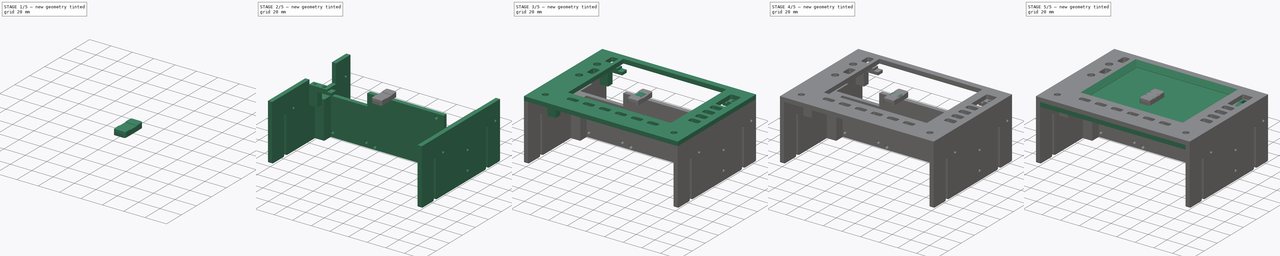
[diagram: build sequence overview — one tinted view per stage of 5, left to right]
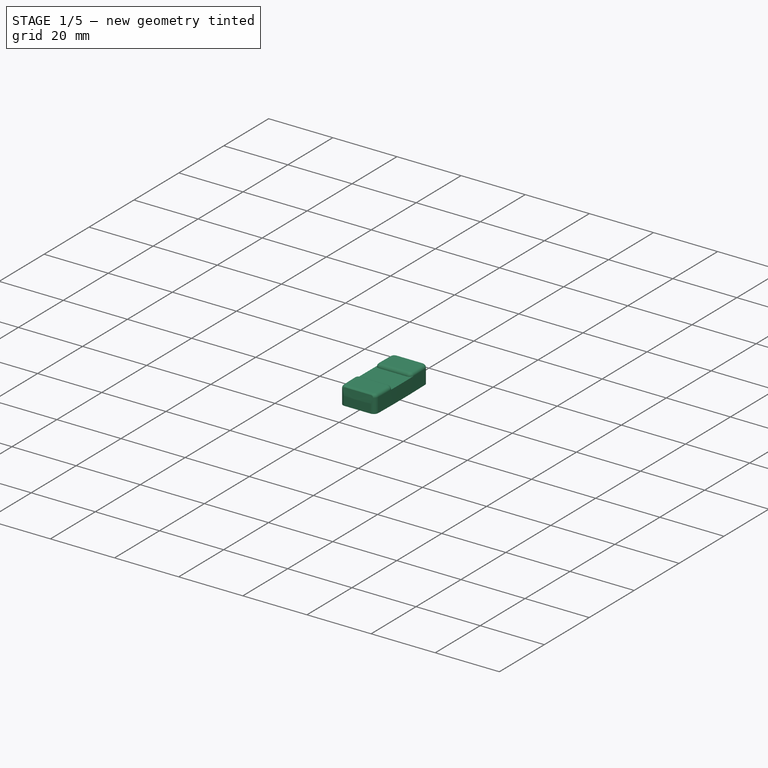
[diagram: stage 1 of 5 — iso view after this stage's code; geometry added in this stage tinted green]
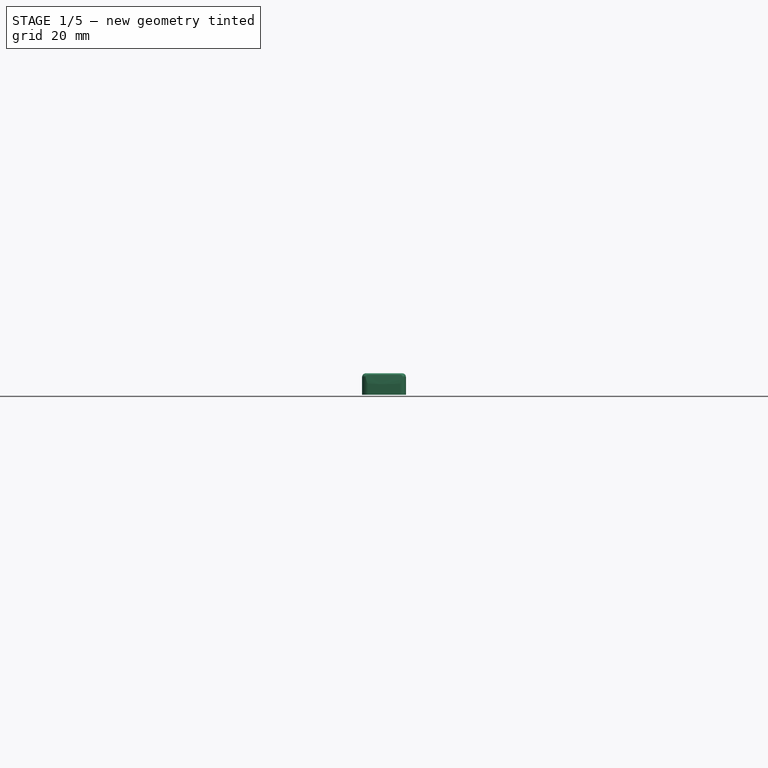
[diagram: stage 1 of 5 — front view after this stage's code; geometry added in this stage tinted green]
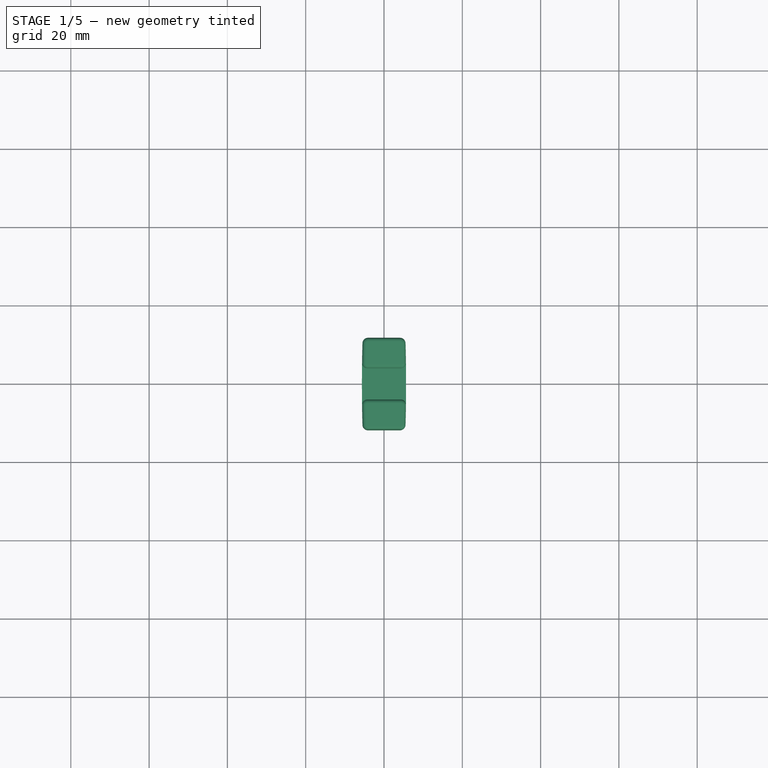
[diagram: stage 1 of 5 — top view after this stage's code; geometry added in this stage tinted green]
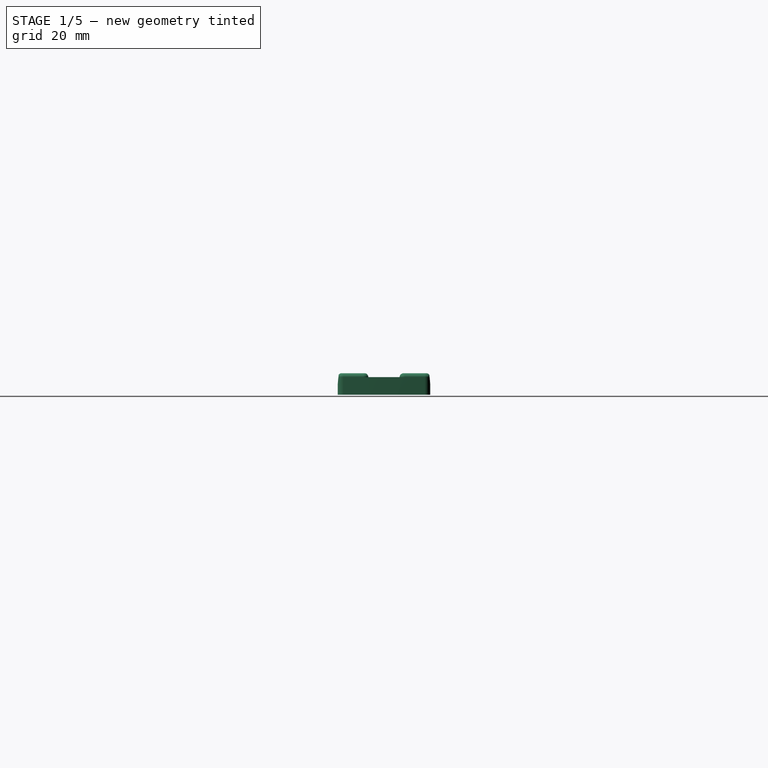
[diagram: stage 1 of 5 — right view after this stage's code; geometry added in this stage tinted green]
FCSTD DOCUMENT  (FreeCAD 0.16R6706 (Git))
Label: garmin_gns_530
License: All rights reserved
LicenseURL: http://en.wikipedia.org/wiki/All_rights_reserved
objects: Sketcher::SketchObject×24, PartDesign::Pad×20, App::DocumentObjectGroup×8, Part::Cut×6, Part::FeaturePython×6, Part::Fillet×5, PartDesign::Pocket×4, Part::Part2DObjectPython×3, Part::MultiFuse×2, Image::ImagePlane×1, Part::MultiCommon×1, Part::Compound×1
note: 96 computed .brp shape members not serialized (recipe doc carries the construction recipe); baked Part::Feature solids carry a one-line shape summary decoded from their .brp

FEATURE [Sketcher::SketchObject] Sketch025  label="Sketch (button zoom)"
  sketch-geometry (21):
    g0: ArcOfCircle CenterX=-6e-12 CenterY=-988.192 CenterZ=0 NormalX=0 NormalY=0 NormalZ=1 Radius=1000 StartAngle=1.56675 EndAngle=1.57484
    g1: ArcOfCircle CenterX=3e-12 CenterY=988.192 CenterZ=0 NormalX=0 NormalY=0 NormalZ=1 Radius=1000 StartAngle=4.70834 EndAngle=4.71644
    g2: ArcOfCircle CenterX=4.04151 CenterY=10.341 CenterZ=0 NormalX=0 NormalY=0 NormalZ=1 Radius=1.45901 StartAngle=0.0264974 EndAngle=1.56675
    g3: ArcOfCircle CenterX=4.0415 CenterY=-10.341 CenterZ=0 NormalX=0 NormalY=0 NormalZ=1 Radius=1.45901 StartAngle=4.71644 EndAngle=6.25669
    g4: ArcOfCircle CenterX=-386.209 CenterY=9.50526e-05 CenterZ=0 NormalX=0 NormalY=0 NormalZ=1 Radius=391.846 StartAngle=6.25669 EndAngle=6.30968
    g5: ArcOfCircle CenterX=-4.04151 CenterY=10.341 CenterZ=0 NormalX=0 NormalY=0 NormalZ=1 Radius=1.45901 StartAngle=1.57485 EndAngle=3.1151
    g6: ArcOfCircle CenterX=-4.0415 CenterY=-10.341 CenterZ=0 NormalX=0 NormalY=0 NormalZ=1 Radius=1.45901 StartAngle=3.16808 EndAngle=4.70834
    g7: ArcOfCircle CenterX=386.209 CenterY=9.50526e-05 CenterZ=0 NormalX=0 NormalY=0 NormalZ=1 Radius=391.846 StartAngle=3.1151 EndAngle=3.16809
    g8: LineSegment [constr] StartX=-4.04742 StartY=11.8 StartZ=0 EndX=-4.04742 EndY=-11.8 EndZ=0
    g9: LineSegment [constr] StartX=4.04742 StartY=11.8 StartZ=0 EndX=4.04742 EndY=-11.8 EndZ=0
    g10: LineSegment [constr] StartX=5.5 StartY=-10.3796 StartZ=0 EndX=-5.5 EndY=-10.3796 EndZ=0
    g11: LineSegment [constr] StartX=5.5 StartY=10.3797 StartZ=0 EndX=-5.5 EndY=10.3797 EndZ=0
    g12: LineSegment [constr] StartX=-5.5 StartY=10.3797 StartZ=0 EndX=5.5 EndY=-10.3796 EndZ=0
    g13: LineSegment [constr] StartX=-5.5 StartY=-10.3796 StartZ=0 EndX=5.5 EndY=10.3797 EndZ=0
    g14: LineSegment [constr] StartX=-4.04742 StartY=11.8 StartZ=0 EndX=4.04742 EndY=-11.8 EndZ=0
    g15: LineSegment [constr] StartX=4.04742 StartY=11.8 StartZ=0 EndX=-4.04742 EndY=-11.8 EndZ=0
    g16: GeomPoint [constr] X=0 Y=0 Z=0
    g17: LineSegment [constr] StartX=386.209 StartY=9.50526e-05 StartZ=0 EndX=3e-12 EndY=988.192 EndZ=0
    g18: LineSegment [constr] StartX=0 StartY=0 StartZ=0 EndX=-4.04151 EndY=10.341 EndZ=0
    g19: LineSegment [constr] StartX=-4.04151 StartY=10.341 StartZ=0 EndX=-4.04742 EndY=11.8 EndZ=0
    g20: LineSegment [constr] StartX=-4.04151 StartY=10.341 StartZ=0 EndX=-5.5 EndY=10.3797 EndZ=0
  constraints (57):
    c: Coincident(g2,g0)
    c: Coincident(g3,g1)
    c: Coincident(g4,g2)
    c: Coincident(g4,g3)
    c: Coincident(g5,g0)
    c: Coincident(g6,g1)
    c: Coincident(g7,g5)
    c: Coincident(g7,g6)
    c: Coincident(g8,g0)
    c: Coincident(g8,g1)
    c: Coincident(g9,g0)
    c: Coincident(g9,g1)
    c: Vertical(g9)
    c: Coincident(g10,g3)
    c: Coincident(g10,g6)
    c: Horizontal(g10)
    c: Coincident(g11,g2)
    c: Coincident(g11,g5)
    c: Horizontal(g11)
    c: Vertical(g8)
    c: Equal(g5,g2)
    c: Equal(g2,g3)
    c: Equal(g3,g6)
    c: Tangent(g5,g7)
    c: Tangent(g3,g4)
    c: Tangent(g2,g0)
    c: Equal(g8,g9)
    c: Coincident(g12,g5)
    c: Coincident(g12,g3)
    c: Coincident(g13,g6)
    c: Coincident(g13,g2)
    c: Coincident(g14,g0)
    c: Coincident(g14,g1)
    c: Coincident(g15,g0)
    c: PointOnObject(g16,g12)
    c: PointOnObject(g16,g14)
    c: PointOnObject(g16,g13)
    c: PointOnObject(g16,g15)
    c: Coincident(g15,g1)
    c: Equal(g14,g15)
    c: Equal(g13,g12)
    c: Equal(g4,g7)
    c: Equal(g0,g1)
    c: DistanceY(g1,g0) = 23.6
    c: Coincident(g17,g7)
    c: Coincident(g17,g1)
    c: Coincident(g18,g16)
    c: Coincident(g18,g5)
    c: Parallel(g18,g17)
    c: Coincident(g19,g5)
    c: Coincident(g19,g0)
    c: Coincident(g20,g5)
    c: Coincident(g5,g20)
    c: Coincident(g16,g-1)
    c: Radius(g5) = 1.45901
    c: DistanceX(g6,g3) = 11
    c: Radius(g0) = 1000
FEATURE [PartDesign::Pad] Pad019  label="Pad (button zoom)"
  Length = 5.5
  Length2 = 100
  Sketch = -> Sketch025
  Type = 0
FEATURE [Sketcher::SketchObject] Sketch026  label="Sketch (button zoom cutout)"
  Placement = pos=(0,0,4.5) rot=(0,0,1;0rad)
  sketch-geometry (4):
    g0: LineSegment StartX=-6 StartY=4 StartZ=0 EndX=6 EndY=4 EndZ=0
    g1: LineSegment StartX=6 StartY=4 StartZ=0 EndX=6 EndY=-4 EndZ=0
    g2: LineSegment StartX=6 StartY=-4 StartZ=0 EndX=-6 EndY=-4 EndZ=0
    g3: LineSegment StartX=-6 StartY=-4 StartZ=0 EndX=-6 EndY=4 EndZ=0
  constraints (12):
    c: Coincident(g0,g1)
    c: Coincident(g1,g2)
    c: Coincident(g2,g3)
    c: Coincident(g3,g0)
    c: Horizontal(g0)
    c: Horizontal(g2)
    c: Vertical(g1)
    c: Vertical(g3)
    c: DistanceX(g0,g0) = 12
    c: DistanceY(g1,g1) = 8
    c: Symmetric(g0,g0,g-2)
    c: Symmetric(g0,g1,g-1)
FEATURE [PartDesign::Pad] Pad020  label="Pad (button zoom cutout)"
  Length = 2
  Length2 = 100
  Placement = pos=(0,0,4.5) rot=(0,0,1;0rad)
  Sketch = -> Sketch026
  Type = 0
FEATURE [Part::Cut] Cut007  label="Cut (button zoom)"
  Base = -> Pad019
  Tool = -> Pad020
FEATURE [Part::Fillet] Fillet003  label="Fillet (button zoom)"
  Base = -> Cut007
  Edges = 4 edges r=1.3: [Edge19,Edge21,Edge26,Edge28]
FEATURE [Part::Fillet] Fillet004  label="Fillet (button zoom follet)"
  Base = -> Fillet003
  Edges = 16 edges: [Edge1 r=0.99,Edge2 r=0.99,Edge3 r=0.99,Edge4 r=0.99,Edge5 r=0.99,Edge6 r=0.99,Edge7 r=0.99,Edge8 r=0.99,Edge9 r=0.99,Edge35 r=1,Edge37 r=0.99,Edge38 r=0.99,Edge39 r=0.99,Edge40 r=0.99,Edge41 r=0.99,Edge42 r=0.99]
FEATURE [Sketcher::SketchObject] Sketch039  label="Sketch (button zoom holes)"
  sketch-geometry (14):
    g0: LineSegment StartX=-1.1 StartY=9.2 StartZ=0 EndX=1.1 EndY=9.2 EndZ=0
    g1: LineSegment StartX=1.1 StartY=9.2 StartZ=0 EndX=1.1 EndY=5.8 EndZ=0
    g2: LineSegment StartX=1.1 StartY=5.8 StartZ=0 EndX=-1.1 EndY=5.8 EndZ=0
    g3: LineSegment StartX=-1.1 StartY=5.8 StartZ=0 EndX=-1.1 EndY=9.2 EndZ=0
    g4: LineSegment StartX=-1.1 StartY=-5.8 StartZ=0 EndX=1.1 EndY=-5.8 EndZ=0
    g5: LineSegment StartX=1.1 StartY=-5.8 StartZ=0 EndX=1.1 EndY=-9.2 EndZ=0
    g6: LineSegment StartX=1.1 StartY=-9.2 StartZ=0 EndX=-1.1 EndY=-9.2 EndZ=0
    g7: LineSegment StartX=-1.1 StartY=-9.2 StartZ=0 EndX=-1.1 EndY=-5.8 EndZ=0
    g8: LineSegment [constr] StartX=-5.85 StartY=0 StartZ=0 EndX=0 EndY=0 EndZ=0
    g9: LineSegment [constr] StartX=0 StartY=0 StartZ=0 EndX=5.85 EndY=0 EndZ=0
    g10: Circle CenterX=0 CenterY=0 CenterZ=0 NormalX=0 NormalY=0 NormalZ=1 Radius=1.75
    g11: Circle CenterX=0 CenterY=0 CenterZ=0 NormalX=0 NormalY=0 NormalZ=1 Radius=3
    g12: GeomPoint [constr] X=0 Y=7.5 Z=0
    g13: GeomPoint [constr] X=0 Y=-7.5 Z=0
  constraints (36):
    c: Coincident(g0,g1)
    c: Coincident(g1,g2)
    c: Coincident(g2,g3)
    c: Coincident(g3,g0)
    c: Horizontal(g0)
    c: Horizontal(g2)
    c: Vertical(g1)
    c: Vertical(g3)
    c: Coincident(g4,g5)
    c: Coincident(g5,g6)
    c: Coincident(g6,g7)
    c: Coincident(g7,g4)
    c: Horizontal(g4)
    c: Horizontal(g6)
    c: Vertical(g5)
    c: Vertical(g7)
    c: Equal(g0,g4)
    c: Equal(g7,g3)
    c: DistanceY(g3,g3) = 3.4
    c: DistanceX(g0,g0) = 2.2
    c: Coincident(g8,g-1)
    c: Horizontal(g8)
    c: Coincident(g9,g-1)
    c: Horizontal(g9)
    c: Equal(g9,g8)
    c: Coincident(g10,g-1)
    c: Coincident(g11,g-1)
    c: Radius(g11) = 3
    c: Radius(g10) = 1.75
    c: PointOnObject(g12,g-2)
    c: PointOnObject(g13,g-2)
    c: Symmetric(g0,g1,g12)
    c: Symmetric(g4,g5,g13)
    c: DistanceY(g13,g12) = 15
    c: Symmetric(g12,g13,g-1)
    c: Equal(g5,g1)
FEATURE [PartDesign::Pad] Pad022  label="Pad (button zoom holes)"
  Length = 2.5
  Length2 = 100
  Sketch = -> Sketch039
  Type = 0
FEATURE [Part::Cut] Cut  label="Cut (button zoom cut)"
  Base = -> Fillet004
  Tool = -> Pad022
FEATURE [App::DocumentObjectGroup] Group006  label="Mounting block"
  Group = -> [Pad027,Pocket002,Pocket003]
FEATURE [App::DocumentObjectGroup] Group004  label="Bracket"
  Group = -> [Pad011,Pad012,Group006,Pad026]
FEATURE [Part::Part2DObjectPython] Clone2D  label="Clone of Sketch (left bracket) (2D)"  # Draft 2D object (typed FeaturePython)
  Objects = -> [Sketch045]
  Placement = pos=(-78,0,0) rot=(0,0,-1;1.5708rad)
  Scale = (1,1,1)
FEATURE [Part::Part2DObjectPython] Clone2D001  label="Clone of Sketch (right bracket) (2D)"  # Draft 2D object (typed FeaturePython)
  Objects = -> [Sketch050]
  Placement = pos=(78,0,0) rot=(0,0,1;1.5708rad)
  Scale = (1,1,1)
FEATURE [Part::Part2DObjectPython] Clone2D002  label="Clone of Sketch (display electronics mount) (2D)"  # Draft 2D object (typed FeaturePython)
  Objects = -> [Sketch051]
  Placement = pos=(0,20,0) rot=(0,0,1;0rad)
  Scale = (1,1,1)
FEATURE [App::DocumentObjectGroup] Group007  label="Export"
  Group = -> [Clone2D,Clone2D001,Clone2D002]
FEATURE [Sketcher::SketchObject] Sketch055  label="Sketch (button zoom angle)"
  Placement = pos=(0,0,0) rot=(0.57735,0.57735,0.57735;2.0944rad)
  sketch-geometry (8):
    g0: LineSegment StartX=-11.9 StartY=6 StartZ=0 EndX=-11.9 EndY=0 EndZ=0
    g1: LineSegment StartX=11.9 StartY=0 StartZ=0 EndX=11.9 EndY=6 EndZ=0
    g2: LineSegment [constr] StartX=-11.9 StartY=0 StartZ=0 EndX=0 EndY=0 EndZ=0
    g3: LineSegment [constr] StartX=0 StartY=0 StartZ=0 EndX=11.9 EndY=0 EndZ=0
    g4: LineSegment StartX=-11.9 StartY=6 StartZ=0 EndX=-11.4474 EndY=6 EndZ=0
    g5: LineSegment StartX=11.9 StartY=6 StartZ=0 EndX=11.4474 EndY=6 EndZ=0
    g6: ArcOfCircle CenterX=28.1 CenterY=0 CenterZ=0 NormalX=0 NormalY=0 NormalZ=1 Radius=40 StartAngle=2.99102 EndAngle=3.14159
    g7: ArcOfCircle CenterX=-28.1 CenterY=0 CenterZ=0 NormalX=0 NormalY=0 NormalZ=1 Radius=40 StartAngle=0 EndAngle=0.150568
  constraints (25):
    c: PointOnObject(g0,g-1)
    c: Vertical(g0)
    c: PointOnObject(g1,g-1)
    c: Vertical(g1)
    c: PointOnObject(g2,g-1)
    c: Equal(g1,g0)
    c: DistanceX(g0,g1) = 23.8
    c: Coincident(g2,g-1)
    c: Coincident(g3,g-1)
    c: Equal(g3,g2)
    c: DistanceY(g0,g0) = 6
    c: Coincident(g4,g0)
    c: Coincident(g5,g1)
    c: Horizontal(g4)
    c: Horizontal(g5)
    c: Coincident(g6,g4)
    c: Coincident(g7,g5)
    c: PointOnObject(g7,g-1)
    c: PointOnObject(g6,g-1)
    c: Coincident(g6,g0)
    c: Coincident(g7,g1)
    c: Coincident(g0,g2)
    c: Coincident(g1,g3)
    c: Equal(g7,g6)
    c: Radius(g6) = 40
FEATURE [PartDesign::Pad] Pad028  label="Pad (button zoom angle)"
  Length = 6
  Length2 = 6
  Placement = pos=(0,0,0) rot=(0.57735,0.57735,0.57735;2.0944rad)
  Sketch = -> Sketch055
  Type = 4
FEATURE [Part::Cut] Cut009  label="Cut (button zoom final)"
  Base = -> Cut
  Tool = -> Pad028
FEATURE [App::DocumentObjectGroup] Group003  label="Buttons"
  Group = -> [Cut003,Cut005,Cut008,Cut009]
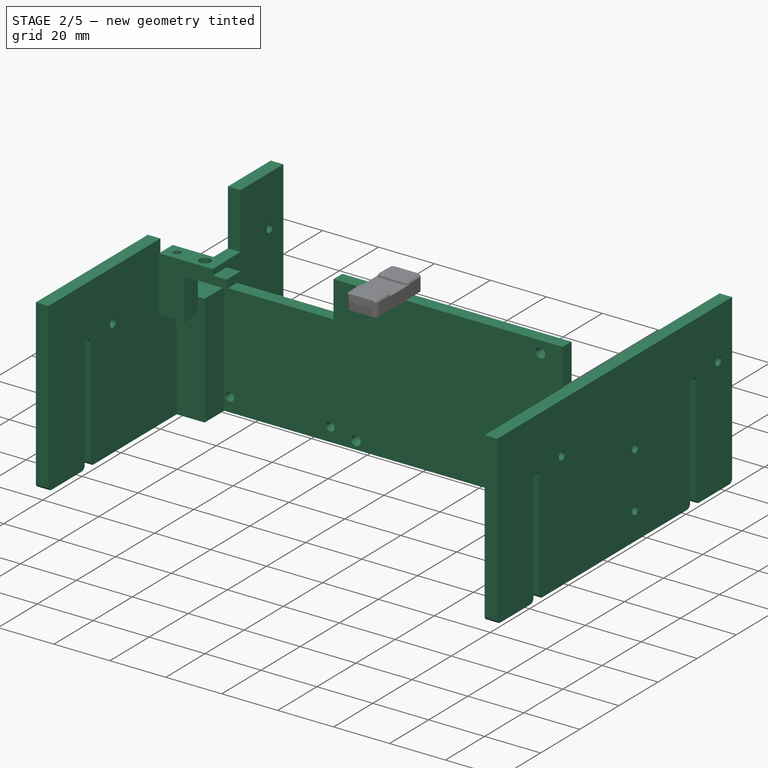
[diagram: stage 2 of 5 — iso view after this stage's code; geometry added in this stage tinted green]
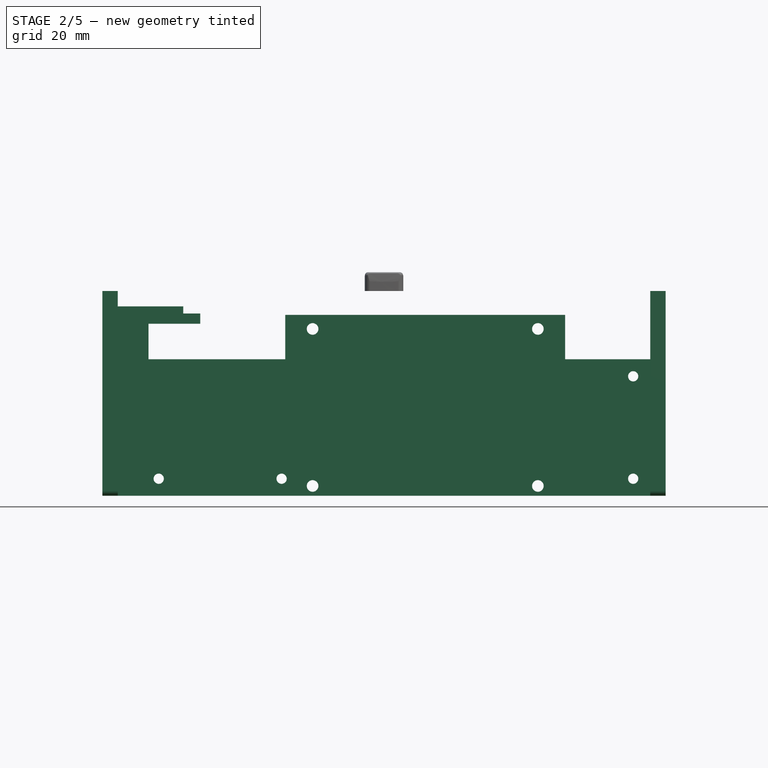
[diagram: stage 2 of 5 — front view after this stage's code; geometry added in this stage tinted green]
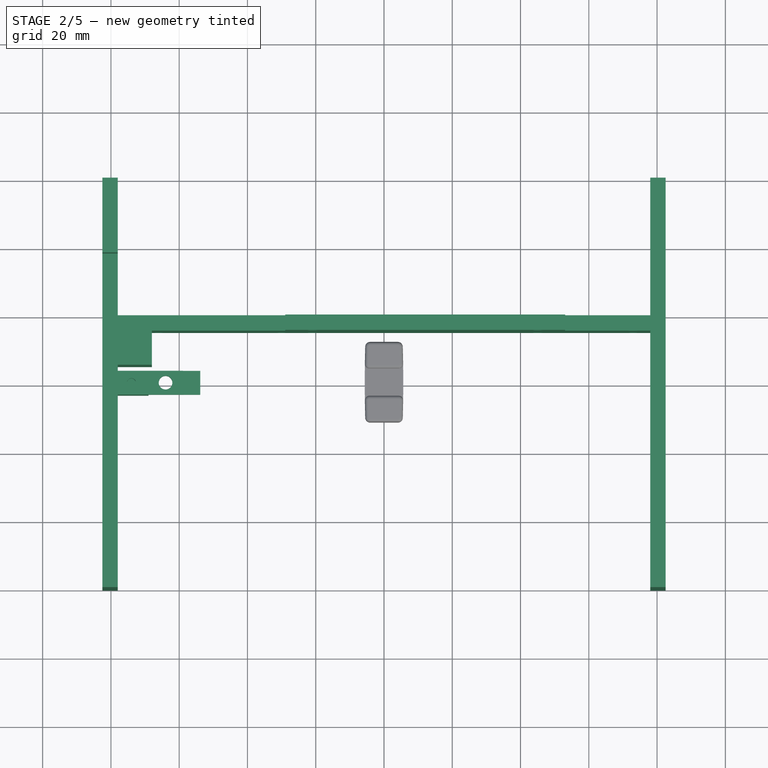
[diagram: stage 2 of 5 — top view after this stage's code; geometry added in this stage tinted green]
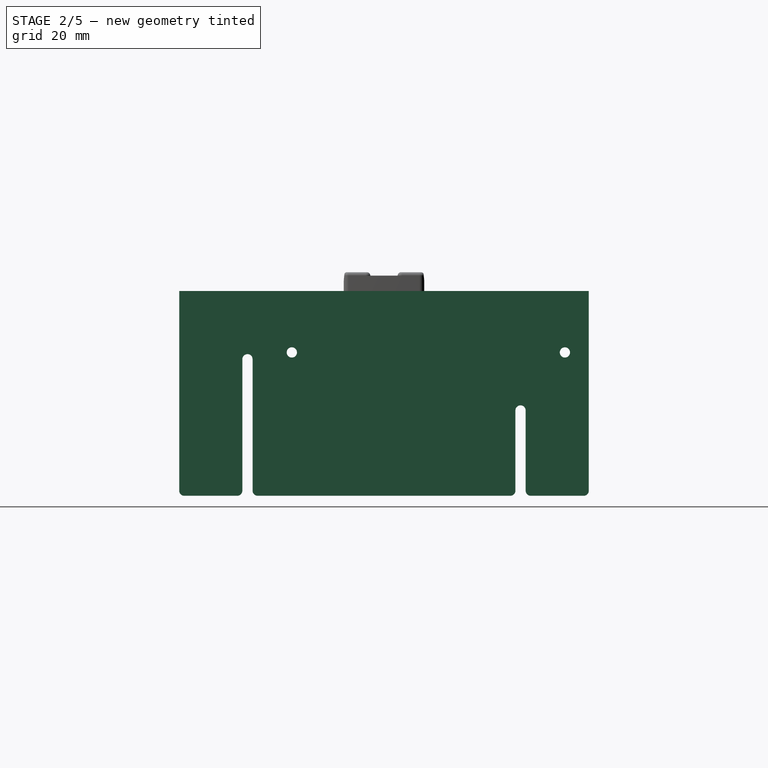
[diagram: stage 2 of 5 — right view after this stage's code; geometry added in this stage tinted green]
FEATURE [App::DocumentObjectGroup] Group  label="Panels"
  Group = -> [Pad,Pad024]
FEATURE [Sketcher::SketchObject] Sketch  label="Sketch (clip)"
  Placement = pos=(0,0,0) rot=(1,0,0;1.5708rad)
  expr: Constraints[13] = 156 / 2
  sketch-geometry (8):
    g0: LineSegment StartX=-58.82 StartY=-4.5 StartZ=0 EndX=-58.82 EndY=-6.6 EndZ=0
    g1: LineSegment StartX=-58.82 StartY=-6.6 StartZ=0 EndX=-53.82 EndY=-6.6 EndZ=0
    g2: LineSegment StartX=-53.82 StartY=-6.6 StartZ=0 EndX=-53.82 EndY=-9.6 EndZ=0
    g3: LineSegment StartX=-78 StartY=-24.5 StartZ=0 EndX=-78 EndY=-4.5 EndZ=0
    g4: LineSegment StartX=-78 StartY=-4.5 StartZ=0 EndX=-58.82 EndY=-4.5 EndZ=0
    g5: LineSegment StartX=-78 StartY=-24.5 StartZ=0 EndX=-69 EndY=-24.5 EndZ=0
    g6: LineSegment StartX=-53.82 StartY=-9.6 StartZ=0 EndX=-69 EndY=-9.6 EndZ=0
    g7: LineSegment StartX=-69 StartY=-9.6 StartZ=0 EndX=-69 EndY=-24.5 EndZ=0
  constraints (25):
    c: Vertical(g0)
    c: Horizontal(g1)
    c: Coincident(g2,g1)
    c: Vertical(g2)
    c: Vertical(g3)
    c: Coincident(g4,g3)
    c: Horizontal(g4)
    c: DistanceY(g1,g-1) = 6.6
    c: Coincident(g0,g4)
    c: Coincident(g0,g1)
    c: DistanceX(g1,g1) = 5
    c: DistanceX(g0,g-1) = 58.82
    c: DistanceY(g3,g-1) = 4.5
    c: DistanceX(g3,g-1) = 78
    c: DistanceY(g3,g3) = 20
    c: Coincident(g5,g3)
    c: Horizontal(g5)
    c: DistanceX(g5,g5) = 9
    c: DistanceY(g2,g2) = 3
    c: Coincident(g6,g2)
    c: Horizontal(g6)
    c: Coincident(g7,g6)
    c: PointOnObject(g7,g5)
    c: Coincident(g5,g7)
    c: Vertical(g7)
FEATURE [PartDesign::Pad] Pad025  label="Pad (clip)"
  Length = 3.5
  Length2 = 3.5
  Placement = pos=(0,0,0) rot=(1,0,0;1.5708rad)
  Sketch = -> Sketch
  Type = 4
FEATURE [Sketcher::SketchObject] Sketch047  label="Sketch (faceplate hole)"
  ExternalGeometry = -> [Pad025]
  Placement = pos=(0,0,-9.6) rot=(1,0,0;3.14159rad)
  Support = -> Pad025 [Face6]
  sketch-geometry (2):
    g0: Circle CenterX=-64 CenterY=0 CenterZ=0 NormalX=0 NormalY=0 NormalZ=1 Radius=2
    g1: Circle CenterX=-74 CenterY=0 CenterZ=0 NormalX=0 NormalY=0 NormalZ=1 Radius=1.3
  constraints (6):
    c: PointOnObject(g0,g-1)
    c: Radius(g0) = 2
    c: PointOnObject(g1,g-1)
    c: DistanceX(g0,g-1) = 64
    c: DistanceX(g1,g-1) = 74
    c: Radius(g1) = 1.3
FEATURE [PartDesign::Pocket] Pocket  label="Pocket (faceplate hole)"
  Length = 8
  Placement = pos=(0,0,0) rot=(1,0,0;1.5708rad)
  Sketch = -> Sketch047
  Type = 0
FEATURE [Sketcher::SketchObject] Sketch049  label="Sketch (bracket hole)"
  Placement = pos=(-78,0,0) rot=(0.707107,0,-0.707107;3.14159rad)
  Support = -> Pocket [Face1]
  sketch-geometry (1):
    g0: Circle CenterX=18 CenterY=0 CenterZ=0 NormalX=0 NormalY=0 NormalZ=1 Radius=1.3
  constraints (3):
    c: PointOnObject(g0,g-1)
    c: Radius(g0) = 1.3
    c: DistanceX(g-1,g0) = 18
FEATURE [PartDesign::Pocket] Pocket001  label="Pocket (bracket hole)"
  Length = 8
  Placement = pos=(0,0,0) rot=(1,0,0;1.5708rad)
  Sketch = -> Sketch049
  Type = 0
FEATURE [App::DocumentObjectGroup] Group005  label="Clip"
  Group = -> [Pad025,Pocket,Pocket001,Compound,Clone007,Clone008,Clone009,Clone010]
FEATURE [App::DocumentObjectGroup] Group001  label="Display"
  Group = -> [Pad006,Group005]
FEATURE [Sketcher::SketchObject] Sketch050  label="Sketch (right bracket)"
  Placement = pos=(78,0,0) rot=(0.57735,0.57735,0.57735;2.0944rad)
  expr: Constraints[6] = 120
  expr: Placement.Base.x = 156 / 2
  sketch-geometry (30):
    g0: LineSegment StartX=60 StartY=0 StartZ=0 EndX=-60 EndY=0 EndZ=0
    g1: LineSegment StartX=-60 StartY=0 StartZ=0 EndX=-60 EndY=-58.5 EndZ=0
    g2: LineSegment StartX=60 StartY=-58.5 StartZ=0 EndX=60 EndY=0 EndZ=0
    g3: ArcOfCircle CenterX=-40 CenterY=-20 CenterZ=0 NormalX=0 NormalY=0 NormalZ=1 Radius=1.5 StartAngle=0 EndAngle=3.14159
    g4: LineSegment StartX=-41.5 StartY=-20 StartZ=0 EndX=-41.5 EndY=-58.5 EndZ=0
    g5: LineSegment StartX=-38.5 StartY=-20 StartZ=0 EndX=-38.5 EndY=-58.5 EndZ=0
    g6: ArcOfCircle CenterX=40 CenterY=-20 CenterZ=0 NormalX=0 NormalY=0 NormalZ=1 Radius=1.5 StartAngle=0 EndAngle=3.14159
    g7: LineSegment StartX=38.5 StartY=-20 StartZ=0 EndX=38.5 EndY=-58.5 EndZ=0
    g8: LineSegment StartX=41.5 StartY=-20 StartZ=0 EndX=41.5 EndY=-58.5 EndZ=0
    g9: LineSegment [constr] StartX=40 StartY=-20 StartZ=0 EndX=-40 EndY=-20 EndZ=0
    g10: ArcOfCircle CenterX=-43 CenterY=-58.5 CenterZ=0 NormalX=0 NormalY=0 NormalZ=1 Radius=1.5 StartAngle=4.71239 EndAngle=6.28319
    g11: ArcOfCircle CenterX=43 CenterY=-58.5 CenterZ=0 NormalX=0 NormalY=0 NormalZ=1 Radius=1.5 StartAngle=3.14159 EndAngle=4.71239
    g12: ArcOfCircle CenterX=37 CenterY=-58.5 CenterZ=0 NormalX=0 NormalY=0 NormalZ=1 Radius=1.5 StartAngle=4.7124 EndAngle=6.28319
    g13: ArcOfCircle CenterX=-37 CenterY=-58.5 CenterZ=0 NormalX=0 NormalY=0 NormalZ=1 Radius=1.5 StartAngle=3.14159 EndAngle=4.71239
    g14: LineSegment [constr] StartX=-43 StartY=-58.5 StartZ=0 EndX=43 EndY=-58.5 EndZ=0
    g15: LineSegment StartX=-58.5 StartY=-60 StartZ=0 EndX=-43 EndY=-60 EndZ=0
    g16: LineSegment StartX=-37 StartY=-60 StartZ=0 EndX=37 EndY=-60 EndZ=0
    g17: LineSegment StartX=43 StartY=-60 StartZ=0 EndX=58.5 EndY=-60 EndZ=0
    g18: LineSegment [constr] StartX=-43 StartY=-58.5 StartZ=0 EndX=-43 EndY=-60 EndZ=0
    g19: LineSegment [constr] StartX=-37 StartY=-58.5 StartZ=0 EndX=-37 EndY=-60 EndZ=0
    g20: LineSegment [constr] StartX=37 StartY=-58.5 StartZ=0 EndX=37 EndY=-60 EndZ=0
    g21: LineSegment [constr] StartX=43 StartY=-58.5 StartZ=0 EndX=43 EndY=-60 EndZ=0
    g22: ArcOfCircle CenterX=58.5 CenterY=-58.5 CenterZ=0 NormalX=0 NormalY=0 NormalZ=1 Radius=1.5 StartAngle=4.71239 EndAngle=6.28319
    g23: ArcOfCircle CenterX=-58.5 CenterY=-58.5 CenterZ=0 NormalX=0 NormalY=0 NormalZ=1 Radius=1.5 StartAngle=3.14159 EndAngle=4.71239
    g24: Circle CenterX=-27 CenterY=-18 CenterZ=0 NormalX=0 NormalY=0 NormalZ=1 Radius=1.5
    g25: Circle CenterX=53 CenterY=-18 CenterZ=0 NormalX=0 NormalY=0 NormalZ=1 Radius=1.5
    g26: LineSegment [constr] StartX=-27 StartY=-18 StartZ=0 EndX=53 EndY=-18 EndZ=0
    g27: Circle CenterX=10.5 CenterY=-30 CenterZ=0 NormalX=0 NormalY=0 NormalZ=1 Radius=1.5
    g28: Circle CenterX=10.5 CenterY=-50 CenterZ=0 NormalX=0 NormalY=0 NormalZ=1 Radius=1.5
    g29: LineSegment [constr] StartX=10.5 StartY=-30 StartZ=0 EndX=10.5 EndY=-50 EndZ=0
  constraints (82):
    c: Coincident(g0,g1)
    c: Coincident(g2,g0)
    c: Horizontal(g0)
    c: Vertical(g1)
    c: Vertical(g2)
    c: PointOnObject(g0,g-1)
    c: DistanceX(g0,g0) = 120
    c: Tangent(g3,g5) = 1.5708
    c: Tangent(g3,g4) = -1.5708
    c: Vertical(g4)
    c: Tangent(g6,g8) = 1.5708
    c: Tangent(g6,g7) = -1.5708
    c: Vertical(g7)
    c: Coincident(g9,g6)
    c: Coincident(g9,g3)
    c: Horizontal(g9)
    c: Radius(g3) = 1.5
    c: Equal(g3,g6)
    c: DistanceX(g9,g9) = 80
    c: Coincident(g10,g4)
    c: Coincident(g11,g8)
    c: Coincident(g12,g7)
    c: Coincident(g13,g5)
    c: Equal(g10,g13)
    c: Equal(g13,g12)
    c: Equal(g12,g11)
    c: Coincident(g14,g10)
    c: Coincident(g14,g11)
    c: Horizontal(g14)
    c: PointOnObject(g8,g14)
    c: PointOnObject(g7,g14)
    c: PointOnObject(g12,g14)
    c: PointOnObject(g13,g14)
    c: PointOnObject(g5,g14)
    c: Vertical(g5)
    c: PointOnObject(g4,g14)
    c: Coincident(g15,g10)
    c: Horizontal(g15)
    c: Coincident(g16,g13)
    c: Coincident(g16,g12)
    c: Coincident(g17,g11)
    c: Horizontal(g17)
    c: Horizontal(g16)
    c: Coincident(g18,g10)
    c: Coincident(g18,g10)
    c: Vertical(g18)
    c: Coincident(g19,g13)
    c: Coincident(g20,g12)
    c: Coincident(g20,g12)
    c: Coincident(g21,g11)
    c: Coincident(g21,g11)
    c: Vertical(g21)
    c: Vertical(g19)
    c: Coincident(g13,g19)
    c: Vertical(g8)
    c: Equal(g15,g17)
    c: DistanceY(g3,g0) = 20
    c: Equal(g10,g3)
    c: Tangent(g2,g22) = -1.5708
    c: Tangent(g17,g22) = -1.5708
    c: Tangent(g1,g23) = -1.5708
    c: Tangent(g15,g23) = -1.5708
    c: Equal(g10,g23)
    c: Equal(g23,g22)
    c: DistanceY(g17,g0) = 60
    c: DistanceX(g24,g-1) = 27
    c: DistanceY(g24,g-1) = 18
    c: Radius(g24) = 1.5
    c: Symmetric(g0,g0,g-2)
    c: Equal(g24,g25) = 1.5
    c: DistanceX(g-1,g25) = 53
    c: Coincident(g26,g24)
    c: Coincident(g26,g25)
    c: Horizontal(g26)
    c: Equal(g27,g28)
    c: Equal(g28,g25)
    c: Coincident(g29,g27)
    c: Coincident(g29,g28)
    c: Vertical(g29)
    c: DistanceY(g29,g29) = 20
    c: DistanceY(g12,g28) = 10
    c: DistanceX(g-1,g28) = 10.5
FEATURE [PartDesign::Pad] Pad011  label="Pad (panel right bracket)"
  Length = 4.5
  Length2 = 100
  Placement = pos=(78,0,0) rot=(0.57735,0.57735,0.57735;2.0944rad)
  Sketch = -> Sketch050
  Type = 0
FEATURE [Sketcher::SketchObject] Sketch045  label="Sketch (left bracket)"
  Placement = pos=(-78,0,0) rot=(0.57735,0.57735,0.57735;2.0944rad)
  expr: Placement.Base.x = -156 / 2
  expr: Constraints[3] = 120
  sketch-geometry (37):
    g0: LineSegment StartX=-60 StartY=0 StartZ=0 EndX=-60 EndY=-58.5 EndZ=0
    g1: LineSegment StartX=60 StartY=-58.5 StartZ=0 EndX=60 EndY=0 EndZ=0
    g2: ArcOfCircle CenterX=-40 CenterY=-20 CenterZ=0 NormalX=0 NormalY=0 NormalZ=1 Radius=1.5 StartAngle=0 EndAngle=3.14159
    g3: LineSegment StartX=-41.5 StartY=-20 StartZ=0 EndX=-41.5 EndY=-58.5 EndZ=0
    g4: LineSegment StartX=-38.5 StartY=-20 StartZ=0 EndX=-38.5 EndY=-58.5 EndZ=0
    g5: LineSegment StartX=38.5 StartY=-35 StartZ=0 EndX=38.5 EndY=-58.5 EndZ=0
    g6: LineSegment StartX=41.5 StartY=-35 StartZ=0 EndX=41.5 EndY=-58.5 EndZ=0
    g7: LineSegment [constr] StartX=40 StartY=-20 StartZ=0 EndX=-40 EndY=-20 EndZ=0
    g8: ArcOfCircle CenterX=-43 CenterY=-58.5 CenterZ=0 NormalX=0 NormalY=0 NormalZ=1 Radius=1.5 StartAngle=4.71239 EndAngle=6.28319
    g9: ArcOfCircle CenterX=37 CenterY=-58.5 CenterZ=0 NormalX=0 NormalY=0 NormalZ=1 Radius=1.5 StartAngle=4.71239 EndAngle=6.28319
    g10: ArcOfCircle CenterX=-37 CenterY=-58.5 CenterZ=0 NormalX=0 NormalY=0 NormalZ=1 Radius=1.5 StartAngle=3.14159 EndAngle=4.71239
    g11: LineSegment [constr] StartX=-43 StartY=-58.5 StartZ=0 EndX=43 EndY=-58.5 EndZ=0
    g12: LineSegment StartX=-58.5 StartY=-60 StartZ=0 EndX=-43 EndY=-60 EndZ=0
    g13: LineSegment StartX=-37 StartY=-60 StartZ=0 EndX=37 EndY=-60 EndZ=0
    g14: LineSegment StartX=43 StartY=-60 StartZ=0 EndX=58.5 EndY=-60 EndZ=0
    g15: LineSegment [constr] StartX=-43 StartY=-58.5 StartZ=0 EndX=-43 EndY=-60 EndZ=0
    g16: LineSegment [constr] StartX=-37 StartY=-58.5 StartZ=0 EndX=-37 EndY=-60 EndZ=0
    g17: LineSegment [constr] StartX=37 StartY=-58.5 StartZ=0 EndX=37 EndY=-60 EndZ=0
    g18: LineSegment [constr] StartX=43 StartY=-58.5 StartZ=0 EndX=43 EndY=-60 EndZ=0
    g19: LineSegment StartX=38.1 StartY=0 StartZ=0 EndX=38.1 EndY=-20 EndZ=0
    g20: LineSegment StartX=-2.8 StartY=-20 StartZ=0 EndX=-2.8 EndY=0 EndZ=0
    g21: LineSegment StartX=-60 StartY=0 StartZ=0 EndX=-2.8 EndY=0 EndZ=0
    g22: LineSegment StartX=60 StartY=0 StartZ=0 EndX=38.1 EndY=0 EndZ=0
    g23: LineSegment StartX=-2.8 StartY=-20 StartZ=0 EndX=38.1 EndY=-20 EndZ=0
    g24: Circle [constr] CenterX=3.9 CenterY=-13.3 CenterZ=0 NormalX=0 NormalY=0 NormalZ=1 Radius=6.7
    g25: Circle [constr] CenterX=31.4 CenterY=-13.3 CenterZ=0 NormalX=0 NormalY=0 NormalZ=1 Radius=6.7
    g26: LineSegment [constr] StartX=31.4 StartY=-13.3 StartZ=0 EndX=3.9 EndY=-13.3 EndZ=0
    g27: ArcOfCircle CenterX=40 CenterY=-35 CenterZ=0 NormalX=0 NormalY=0 NormalZ=1 Radius=1.5 StartAngle=6.28318 EndAngle=9.42478
    g28: ArcOfCircle CenterX=58.5 CenterY=-58.5 CenterZ=0 NormalX=0 NormalY=0 NormalZ=1 Radius=1.5 StartAngle=4.71239 EndAngle=6.28319
    g29: ArcOfCircle CenterX=-58.5 CenterY=-58.5 CenterZ=0 NormalX=0 NormalY=0 NormalZ=1 Radius=1.5 StartAngle=3.14159 EndAngle=4.71239
    g30: Circle CenterX=-27 CenterY=-18 CenterZ=0 NormalX=0 NormalY=0 NormalZ=1 Radius=1.5
    g31: Circle CenterX=53 CenterY=-18 CenterZ=0 NormalX=0 NormalY=0 NormalZ=1 Radius=1.5
    g32: LineSegment [constr] StartX=-27 StartY=-18 StartZ=0 EndX=53 EndY=-18 EndZ=0
    g33: ArcOfCircle CenterX=43 CenterY=-58.5 CenterZ=0 NormalX=0 NormalY=0 NormalZ=1 Radius=1.5 StartAngle=3.14159 EndAngle=4.71239
    g34: Circle CenterX=10.5 CenterY=-50 CenterZ=0 NormalX=0 NormalY=0 NormalZ=1 Radius=1.5
    g35: Circle CenterX=10.5 CenterY=-30 CenterZ=0 NormalX=0 NormalY=0 NormalZ=1 Radius=1.5
    g36: LineSegment [constr] StartX=10.5 StartY=-50 StartZ=0 EndX=10.5 EndY=-30 EndZ=0
  constraints (107):
    c: Vertical(g0)
    c: Vertical(g1)
    c: PointOnObject(g1,g-1)
    c: DistanceX(g0,g1) = 120
    c: Tangent(g2,g4) = 1.5708
    c: Tangent(g2,g3) = -1.5708
    c: Vertical(g3)
    c: Vertical(g5)
    c: Coincident(g7,g2)
    c: Horizontal(g7)
    c: Radius(g2) = 1.5
    c: DistanceX(g7,g7) = 80
    c: Coincident(g8,g3)
    c: Coincident(g10,g4)
    c: Equal(g8,g10)
    c: Equal(g10,g9)
    c: Coincident(g11,g8)
    c: Horizontal(g11)
    c: PointOnObject(g6,g11)
    c: PointOnObject(g5,g11)
    c: PointOnObject(g9,g11)
    c: PointOnObject(g10,g11)
    c: PointOnObject(g4,g11)
    c: Vertical(g4)
    c: PointOnObject(g3,g11)
    c: Coincident(g12,g8)
    c: Horizontal(g12)
    c: Coincident(g13,g10)
    c: Coincident(g13,g9)
    c: Horizontal(g14)
    c: Horizontal(g13)
    c: Coincident(g15,g8)
    c: Coincident(g15,g8)
    c: Vertical(g15)
    c: Coincident(g16,g10)
    c: Coincident(g17,g9)
    c: Coincident(g17,g9)
    c: Vertical(g18)
    c: Vertical(g16)
    c: Coincident(g10,g16)
    c: Vertical(g6)
    c: Equal(g12,g14)
    c: DistanceY(g2,g0) = 20
    c: Equal(g8,g2)
    c: Vertical(g19)
    c: Vertical(g20)
    c: Coincident(g21,g0)
    c: Coincident(g22,g1)
    c: Horizontal(g22)
    c: Horizontal(g21)
    c: Coincident(g20,g21)
    c: Coincident(g19,g22)
    c: PointOnObject(g20,g-1)
    c: Coincident(g23,g20)
    c: Horizontal(g23)
    c: DistanceX(g7,g6) = 1.5
    c: Equal(g25,g24)
    c: Radius(g25) = 6.7
    c: Coincident(g26,g25)
    c: Coincident(g26,g24)
    c: Horizontal(g26)
    c: DistanceX(g26,g26) = 27.5
    c: Tangent(g20,g24)
    c: Tangent(g25,g19)
    c: Tangent(g23,g24)
    c: DistanceY(g20,g20) = 20
    c: PointOnObject(g27,g5)
    c: PointOnObject(g27,g6)
    c: Equal(g2,g27)
    c: Coincident(g6,g27)
    c: Coincident(g5,g27)
    c: Tangent(g6,g27)
    c: Tangent(g5,g27)
    c: Coincident(g19,g23)
    c: DistanceY(g27,g19) = 15
    c: Tangent(g1,g28) = -1.5708
    c: Tangent(g14,g28) = -1.5708
    c: Tangent(g12,g29) = -1.5708
    c: Tangent(g0,g29) = -1.5708
    c: Equal(g29,g9)
    c: Equal(g9,g28)
    c: DistanceY(g14,g1) = 60
    c: DistanceX(g30,g-1) = 27
    c: DistanceY(g30,g-1) = 18
    c: Radius(g30) = 1.5
    c: Symmetric(g0,g1,g-2)
    c: Equal(g30,g31) = 1.5
    c: Coincident(g32,g30)
    c: Coincident(g32,g31)
    c: Horizontal(g32)
    c: DistanceX(g-1,g31) = 53
    c: DistanceX(g-1,g24) = 3.9
    c: Coincident(g11,g18)
    c: Coincident(g14,g18)
    c: Coincident(g33,g11)
    c: Coincident(g33,g6)
    c: Coincident(g33,g14)
    c: Equal(g9,g33)
    c: Coincident(g5,g9)
    c: Equal(g34,g35)
    c: Equal(g35,g31)
    c: Coincident(g36,g34)
    c: Coincident(g36,g35)
    c: Vertical(g36)
    c: DistanceY(g36,g36) = 20
    c: DistanceY(g9,g34) = 10
    c: DistanceX(g-1,g34) = 10.5
FEATURE [PartDesign::Pad] Pad012  label="Pad (panel left bracket)"
  Length = 4.5
  Length2 = 100
  Placement = pos=(-78,0,0) rot=(0.57735,0.57735,0.57735;2.0944rad)
  Reversed = true
  Sketch = -> Sketch045
  Type = 0
FEATURE [Sketcher::SketchObject] Sketch051  label="Sketch (display electronics mount)"
  Placement = pos=(0,20,0) rot=(0,0.707107,0.707107;3.14159rad)
  sketch-geometry (36):
    g0: LineSegment [constr] StartX=-49.16 StartY=-7 StartZ=0 EndX=25 EndY=-7 EndZ=0
    g1: LineSegment [constr] StartX=25 StartY=-7 StartZ=0 EndX=25 EndY=-61.24 EndZ=0
    g2: LineSegment [constr] StartX=25 StartY=-61.24 StartZ=0 EndX=-49.16 EndY=-61.24 EndZ=0
    g3: LineSegment [constr] StartX=-49.16 StartY=-61.24 StartZ=0 EndX=-49.16 EndY=-7 EndZ=0
    g4: LineSegment [constr] StartX=-45.08 StartY=-11.12 StartZ=0 EndX=20.92 EndY=-11.12 EndZ=0
    g5: LineSegment [constr] StartX=20.92 StartY=-11.12 StartZ=0 EndX=20.92 EndY=-57.12 EndZ=0
    g6: LineSegment [constr] StartX=20.92 StartY=-57.12 StartZ=0 EndX=-45.08 EndY=-57.12 EndZ=0
    g7: LineSegment [constr] StartX=-45.08 StartY=-57.12 StartZ=0 EndX=-45.08 EndY=-11.12 EndZ=0
    g8: Circle CenterX=-45.08 CenterY=-11.12 CenterZ=0 NormalX=0 NormalY=0 NormalZ=1 Radius=1.7
    g9: Circle CenterX=20.92 CenterY=-11.12 CenterZ=0 NormalX=0 NormalY=0 NormalZ=1 Radius=1.7
    g10: Circle CenterX=20.92 CenterY=-57.12 CenterZ=0 NormalX=0 NormalY=0 NormalZ=1 Radius=1.7
    g11: Circle CenterX=-45.08 CenterY=-57.12 CenterZ=0 NormalX=0 NormalY=0 NormalZ=1 Radius=1.7
    g12: GeomPoint [constr] X=-12.08 Y=-34.12 Z=0
    g13: LineSegment StartX=-53.08 StartY=-7 StartZ=0 EndX=28.92 EndY=-7 EndZ=0
    g14: LineSegment StartX=28.92 StartY=-7 StartZ=0 EndX=28.92 EndY=-20 EndZ=0
    g15: LineSegment StartX=28.92 StartY=-20 StartZ=0 EndX=78 EndY=-20 EndZ=0
    g16: LineSegment StartX=78 StartY=-20 StartZ=0 EndX=78 EndY=-60 EndZ=0
    g17: LineSegment StartX=78 StartY=-60 StartZ=0 EndX=-78 EndY=-60 EndZ=0
    g18: LineSegment StartX=-78 StartY=-60 StartZ=0 EndX=-78 EndY=-20 EndZ=0
    g19: LineSegment StartX=-78 StartY=-20 StartZ=0 EndX=-53.08 EndY=-20 EndZ=0
    g20: LineSegment StartX=-53.08 StartY=-20 StartZ=0 EndX=-53.08 EndY=-7 EndZ=0
    g21: LineSegment [constr] StartX=-53.08 StartY=-20 StartZ=0 EndX=28.92 EndY=-20 EndZ=0
    g22: Circle CenterX=73 CenterY=-55 CenterZ=0 NormalX=0 NormalY=0 NormalZ=1 Radius=1.5
    g23: Circle CenterX=73 CenterY=-25 CenterZ=0 NormalX=0 NormalY=0 NormalZ=1 Radius=1.5
    g24: Circle CenterX=-73 CenterY=-25 CenterZ=0 NormalX=0 NormalY=0 NormalZ=1 Radius=1.5
    g25: Circle CenterX=-73 CenterY=-55 CenterZ=0 NormalX=0 NormalY=0 NormalZ=1 Radius=1.5
    g26: LineSegment [constr] StartX=-78 StartY=-60 StartZ=0 EndX=-73 EndY=-55 EndZ=0
    g27: LineSegment [constr] StartX=-73 StartY=-25 StartZ=0 EndX=-78 EndY=-20 EndZ=0
    g28: LineSegment [constr] StartX=78 StartY=-60 StartZ=0 EndX=73 EndY=-55 EndZ=0
    g29: LineSegment [constr] StartX=78 StartY=-20 StartZ=0 EndX=73 EndY=-25 EndZ=0
    g30: LineSegment [constr] StartX=-73 StartY=-55 StartZ=0 EndX=73 EndY=-55 EndZ=0
    g31: LineSegment [constr] StartX=73 StartY=-55 StartZ=0 EndX=73 EndY=-25 EndZ=0
    g32: LineSegment [constr] StartX=73 StartY=-25 StartZ=0 EndX=-73 EndY=-25 EndZ=0
    g33: LineSegment [constr] StartX=-73 StartY=-25 StartZ=0 EndX=-73 EndY=-55 EndZ=0
    g34: Circle CenterX=66 CenterY=-55 CenterZ=0 NormalX=0 NormalY=0 NormalZ=1 Radius=1.5
    g35: Circle CenterX=30 CenterY=-55 CenterZ=0 NormalX=0 NormalY=0 NormalZ=1 Radius=1.5
  constraints (93):
    c: Coincident(g0,g1)
    c: Coincident(g1,g2)
    c: Coincident(g2,g3)
    c: Coincident(g3,g0)
    c: Horizontal(g0)
    c: Horizontal(g2)
    c: Vertical(g1)
    c: Vertical(g3)
    c: Coincident(g4,g5)
    c: Coincident(g5,g6)
    c: Coincident(g6,g7)
    c: Coincident(g7,g4)
    c: Horizontal(g4)
    c: Horizontal(g6)
    c: Vertical(g5)
    c: Vertical(g7)
    c: Coincident(g8,g4)
    c: Coincident(g9,g4)
    c: Coincident(g10,g5)
    c: Coincident(g11,g6)
    c: Radius(g11) = 1.7
    c: Equal(g11,g8)
    c: Equal(g11,g9)
    c: Equal(g11,g10)
    c: DistanceX(g2,g2) = 74.16
    c: DistanceY(g3,g3) = 54.24
    c: Symmetric(g4,g5,g12)
    c: Symmetric(g0,g1,g12)
    c: DistanceX(g6,g6) = 66
    c: DistanceY(g5,g5) = 46
    c: DistanceX(g-1,g1) = 25
    c: DistanceY(g0,g-1) = 7
    c: Horizontal(g13)
    c: Coincident(g14,g13)
    c: Vertical(g14)
    c: Coincident(g16,g15)
    c: Vertical(g16)
    c: Coincident(g17,g16)
    c: Horizontal(g17)
    c: Coincident(g18,g17)
    c: Vertical(g18)
    c: Coincident(g19,g18)
    c: Horizontal(g19)
    c: Coincident(g20,g19)
    c: Vertical(g20)
    c: Coincident(g13,g20)
    c: Coincident(g14,g15)
    c: Horizontal(g15)
    c: DistanceY(g17,g-1) = 60
    c: PointOnObject(g0,g13)
    c: DistanceX(g17,g17) = 156
    c: Symmetric(g16,g17,g-2)
    c: DistanceY(g18,g18) = 40
    c: Coincident(g21,g19)
    c: Coincident(g21,g14)
    c: Horizontal(g21)
    c: Radius(g24) = 1.5
    c: Equal(g24,g25)
    c: Equal(g24,g22)
    c: Equal(g24,g23)
    c: DistanceY(g17,g25) = 5
    c: DistanceX(g17,g25) = 5
    c: Coincident(g26,g17)
    c: Coincident(g26,g25)
    c: Coincident(g27,g24)
    c: Coincident(g27,g18)
    c: Coincident(g28,g16)
    c: Coincident(g28,g22)
    c: Coincident(g29,g15)
    c: Coincident(g29,g23)
    c: Coincident(g30,g31)
    c: Coincident(g31,g32)
    c: Coincident(g32,g33)
    c: Coincident(g33,g30)
    c: Horizontal(g30)
    c: Horizontal(g32)
    c: Vertical(g31)
    c: Vertical(g33)
    c: Coincident(g30,g25)
    c: Coincident(g22,g30)
    c: Coincident(g31,g23)
    c: Coincident(g32,g24)
    c: Equal(g27,g26)
    c: Equal(g26,g29)
    c: Equal(g29,g28)
    c: DistanceX(g13,g4) = 8
    c: DistanceX(g4,g13) = 8
    c: PointOnObject(g34,g30)
    c: PointOnObject(g35,g30)
    c: DistanceX(g34,g16) = 12
    c: DistanceX(g35,g34) = 36
    c: Equal(g34,g35)
    c: Radius(g35) = 1.5
FEATURE [PartDesign::Pad] Pad026  label="Pad (display electronics mount)"
  Length = 4.5
  Length2 = 100
  Placement = pos=(0,20,0) rot=(0,0.707107,0.707107;3.14159rad)
  Reversed = true
  Sketch = -> Sketch051
  Type = 0
FEATURE [Sketcher::SketchObject] Sketch052  label="Sketch (display electronics mount block)"
  Placement = pos=(0,0,-60) rot=(1,0,0;3.14159rad)
  sketch-geometry (4):
    g0: LineSegment StartX=-78 StartY=-15.5 StartZ=0 EndX=-68 EndY=-15.5 EndZ=0
    g1: LineSegment StartX=-68 StartY=-15.5 StartZ=0 EndX=-68 EndY=-5.5 EndZ=0
    g2: LineSegment StartX=-68 StartY=-5.5 StartZ=0 EndX=-78 EndY=-5.5 EndZ=0
    g3: LineSegment StartX=-78 StartY=-5.5 StartZ=0 EndX=-78 EndY=-15.5 EndZ=0
  constraints (12):
    c: Coincident(g0,g1)
    c: Coincident(g1,g2)
    c: Coincident(g2,g3)
    c: Coincident(g3,g0)
    c: Horizontal(g0)
    c: Horizontal(g2)
    c: Vertical(g1)
    c: Vertical(g3)
    c: DistanceX(g2,g2) = 10
    c: Equal(g1,g2)
    c: DistanceX(g2,g-1) = 78
    c: DistanceY(g0,g-1) = 15.5
FEATURE [PartDesign::Pad] Pad027  label="Pad (display electronics mount block)"
  Length = 40
  Length2 = 100
  Placement = pos=(0,0,-60) rot=(1,0,0;3.14159rad)
  Reversed = true
  Sketch = -> Sketch052
  Type = 0
FEATURE [Sketcher::SketchObject] Sketch053  label="Sketch (display electronics mount block holes top)"
  ExternalGeometry = -> [Pad027]
  Placement = pos=(0,15.5,-60) rot=(-1,0,0;1.5708rad)
  Support = -> Pad027 [Face1]
  sketch-geometry (6):
    g0: Circle CenterX=-73 CenterY=-5 CenterZ=0 NormalX=0 NormalY=0 NormalZ=1 Radius=1.3
    g1: Circle CenterX=-73 CenterY=-35 CenterZ=0 NormalX=0 NormalY=0 NormalZ=1 Radius=1.3
    g2: LineSegment [constr] StartX=-78 StartY=0 StartZ=0 EndX=-73 EndY=-5 EndZ=0
    g3: LineSegment [constr] StartX=-73 StartY=-5 StartZ=0 EndX=-68 EndY=0 EndZ=0
    g4: LineSegment [constr] StartX=-68 StartY=-40 StartZ=0 EndX=-73 EndY=-35 EndZ=0
    g5: LineSegment [constr] StartX=-73 StartY=-35 StartZ=0 EndX=-78 EndY=-40 EndZ=0
  constraints (14):
    c: Coincident(g2,g-4)
    c: Coincident(g2,g0)
    c: Coincident(g3,g0)
    c: Coincident(g3,g-4)
    c: Coincident(g4,g-3)
    c: Coincident(g4,g1)
    c: Coincident(g5,g1)
    c: Coincident(g5,g-3)
    c: Equal(g4,g5)
    c: Equal(g5,g2)
    c: Equal(g2,g3)
    c: DistanceY(g0,g3) = 5
    c: Radius(g0) = 1.3
    c: Equal(g0,g1)
FEATURE [PartDesign::Pocket] Pocket002  label="Pocket (display electronics mount block holes top)"
  Length = 8
  Placement = pos=(0,0,-60) rot=(1,0,0;3.14159rad)
  Sketch = -> Sketch053
  Type = 0
FEATURE [Sketcher::SketchObject] Sketch054  label="Sketch  (display electronics mount block holes side)"
  ExternalGeometry = -> [Pocket002]
  Placement = pos=(-78,0,-60) rot=(0.57735,0.57735,-0.57735;4.18879rad)
  Support = -> Pocket002 [Face2]
  sketch-geometry (6):
    g0: Circle CenterX=10.5 CenterY=-10 CenterZ=0 NormalX=0 NormalY=0 NormalZ=1 Radius=1.3
    g1: Circle CenterX=10.5 CenterY=-30 CenterZ=0 NormalX=0 NormalY=0 NormalZ=1 Radius=1.3
    g2: LineSegment [constr] StartX=5.5 StartY=0 StartZ=0 EndX=10.5 EndY=-10 EndZ=0
    g3: LineSegment [constr] StartX=10.5 StartY=-10 StartZ=0 EndX=15.5 EndY=0 EndZ=0
    g4: LineSegment [constr] StartX=5.5 StartY=-40 StartZ=0 EndX=10.5 EndY=-30 EndZ=0
    g5: LineSegment [constr] StartX=10.5 StartY=-30 StartZ=0 EndX=15.5 EndY=-40 EndZ=0
  constraints (14):
    c: Radius(g0) = 1.3
    c: Equal(g0,g1)
    c: Coincident(g2,g-3)
    c: Coincident(g2,g0)
    c: Coincident(g3,g0)
    c: Coincident(g3,g-3)
    c: Coincident(g4,g-4)
    c: Coincident(g4,g1)
    c: Coincident(g5,g1)
    c: Coincident(g5,g-4)
    c: Equal(g2,g3)
    c: Equal(g3,g5)
    c: Equal(g5,g4)
    c: DistanceY(g0,g2) = 10
FEATURE [PartDesign::Pocket] Pocket003  label="Pocket  (display electronics mount block holes side)"
  Length = 8
  Placement = pos=(0,0,-60) rot=(1,0,0;3.14159rad)
  Sketch = -> Sketch054
  Type = 0
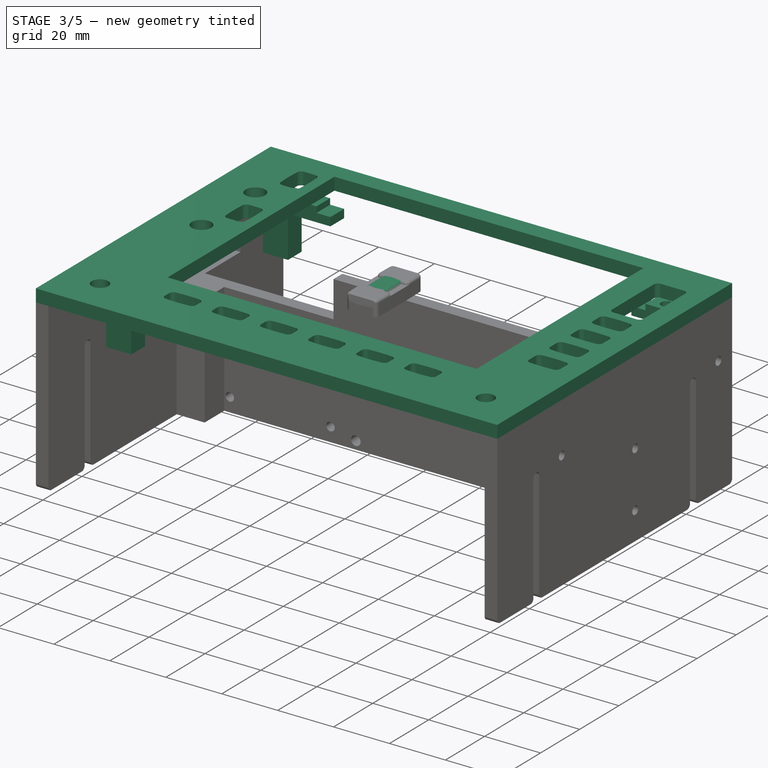
[diagram: stage 3 of 5 — iso view after this stage's code; geometry added in this stage tinted green]
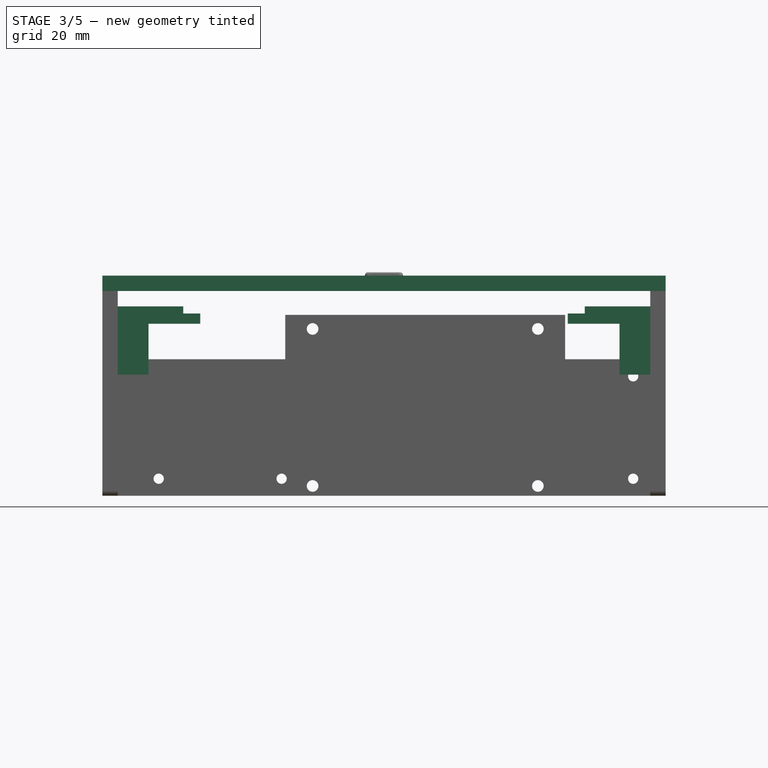
[diagram: stage 3 of 5 — front view after this stage's code; geometry added in this stage tinted green]
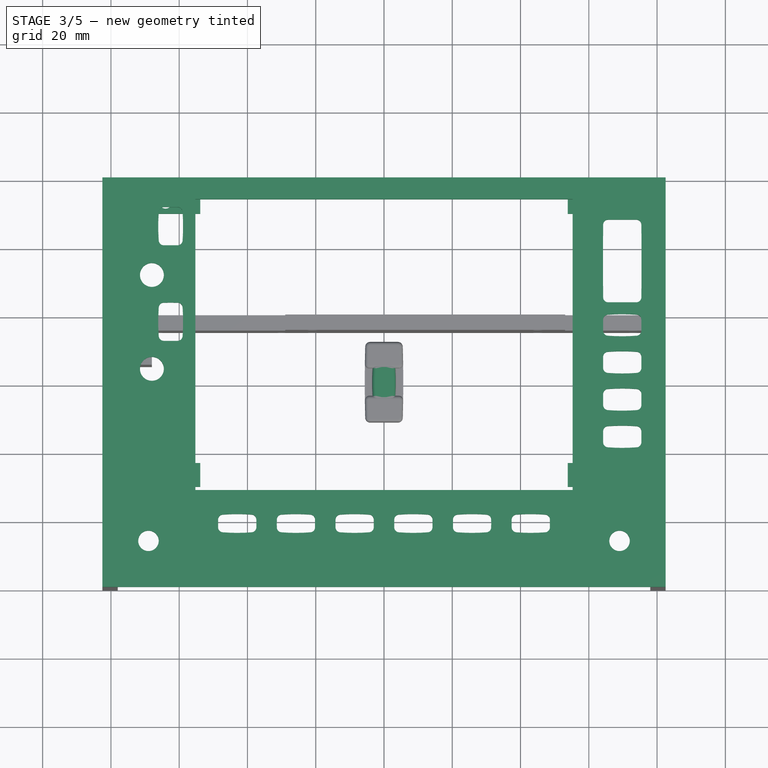
[diagram: stage 3 of 5 — top view after this stage's code; geometry added in this stage tinted green]
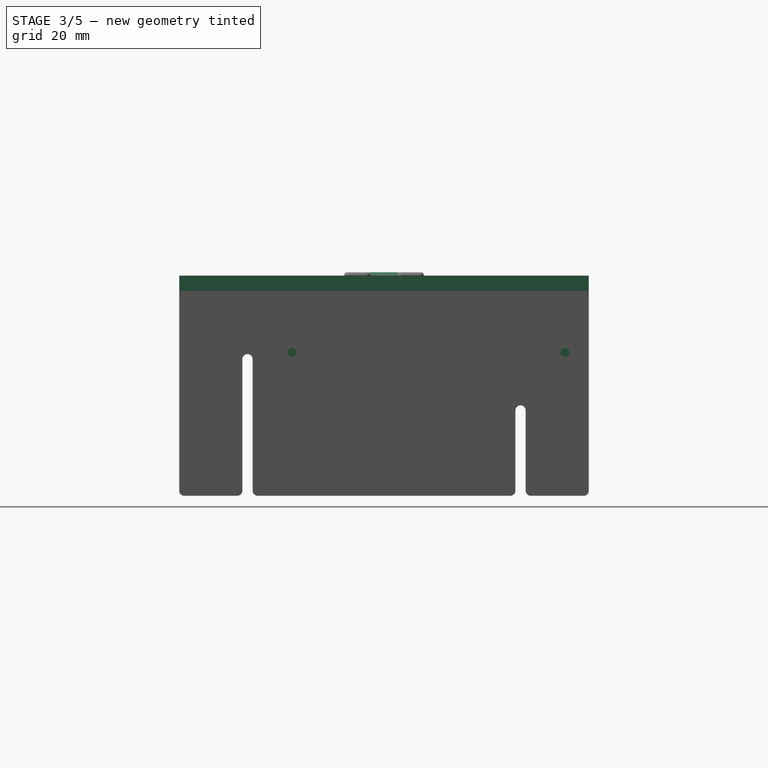
[diagram: stage 3 of 5 — right view after this stage's code; geometry added in this stage tinted green]
FEATURE [Sketcher::SketchObject] Sketch023  label="Sketch (button hole)"
  sketch-geometry (6):
    g0: LineSegment StartX=-1.65 StartY=1.1 StartZ=0 EndX=1.65 EndY=1.1 EndZ=0
    g1: LineSegment StartX=1.65 StartY=1.1 StartZ=0 EndX=1.65 EndY=-1.1 EndZ=0
    g2: LineSegment StartX=1.65 StartY=-1.1 StartZ=0 EndX=-1.65 EndY=-1.1 EndZ=0
    g3: LineSegment StartX=-1.65 StartY=-1.1 StartZ=0 EndX=-1.65 EndY=1.1 EndZ=0
    g4: LineSegment [constr] StartX=-1.65 StartY=1.1 StartZ=0 EndX=0 EndY=0 EndZ=0
    g5: LineSegment [constr] StartX=0 StartY=0 StartZ=0 EndX=1.65 EndY=-1.1 EndZ=0
  constraints (16):
    c: Coincident(g0,g1)
    c: Coincident(g1,g2)
    c: Coincident(g2,g3)
    c: Coincident(g3,g0)
    c: Horizontal(g0)
    c: Horizontal(g2)
    c: Vertical(g1)
    c: Vertical(g3)
    c: DistanceX(g0,g0) = 3.3
    c: DistanceY(g1,g1) = 2.2
    c: Coincident(g4,g0)
    c: Coincident(g4,g-1)
    c: Coincident(g5,g-1)
    c: Coincident(g5,g1)
    c: Equal(g5,g4)
    c: Parallel(g5,g4)
FEATURE [PartDesign::Pad] Pad017  label="Pad (button hole)"
  Length = 2.5
  Length2 = 100
  Sketch = -> Sketch023
  Type = 0
FEATURE [Sketcher::SketchObject] Sketch044  label="Sketch (button med v)"
  Placement = pos=(0,0,0) rot=(0,0,1;1.5708rad)
  sketch-geometry (21):
    g0: ArcOfCircle CenterX=0 CenterY=-54.6083 CenterZ=0 NormalX=0 NormalY=0 NormalZ=1 Radius=58.1548 StartAngle=1.49981 EndAngle=1.64178
    g1: ArcOfCircle CenterX=0 CenterY=54.6083 CenterZ=0 NormalX=0 NormalY=0 NormalZ=1 Radius=58.1548 StartAngle=4.6414 EndAngle=4.78338
    g2: ArcOfCircle CenterX=4.01981 CenterY=1.92335 CenterZ=0 NormalX=0 NormalY=0 NormalZ=1 Radius=1.48038 StartAngle=0.0162777 EndAngle=1.49981
    g3: ArcOfCircle CenterX=4.01981 CenterY=-1.92335 CenterZ=0 NormalX=0 NormalY=0 NormalZ=1 Radius=1.48038 StartAngle=4.78338 EndAngle=6.26691
    g4: ArcOfCircle CenterX=-114.132 CenterY=4.61937e-05 CenterZ=0 NormalX=0 NormalY=0 NormalZ=1 Radius=119.648 StartAngle=6.26691 EndAngle=6.29946
    g5: ArcOfCircle CenterX=-4.01981 CenterY=1.92335 CenterZ=0 NormalX=0 NormalY=0 NormalZ=1 Radius=1.48038 StartAngle=1.64179 EndAngle=3.12531
    g6: ArcOfCircle CenterX=-4.01981 CenterY=-1.92335 CenterZ=0 NormalX=0 NormalY=0 NormalZ=1 Radius=1.48038 StartAngle=3.15787 EndAngle=4.6414
    g7: ArcOfCircle CenterX=114.132 CenterY=4.61937e-05 CenterZ=0 NormalX=0 NormalY=0 NormalZ=1 Radius=119.648 StartAngle=3.12532 EndAngle=3.15787
    g8: LineSegment [constr] StartX=-4.12482 StartY=3.4 StartZ=0 EndX=-4.12482 EndY=-3.4 EndZ=0
    g9: LineSegment [constr] StartX=4.12482 StartY=3.4 StartZ=0 EndX=4.12482 EndY=-3.4 EndZ=0
    g10: LineSegment [constr] StartX=5.5 StartY=-1.94744 StartZ=0 EndX=-5.5 EndY=-1.94744 EndZ=0
    g11: LineSegment [constr] StartX=5.5 StartY=1.94744 StartZ=0 EndX=-5.5 EndY=1.94744 EndZ=0
    g12: LineSegment [constr] StartX=-5.5 StartY=1.94744 StartZ=0 EndX=5.5 EndY=-1.94744 EndZ=0
    g13: LineSegment [constr] StartX=-5.5 StartY=-1.94744 StartZ=0 EndX=5.5 EndY=1.94744 EndZ=0
    g14: LineSegment [constr] StartX=-4.12482 StartY=3.4 StartZ=0 EndX=4.12482 EndY=-3.4 EndZ=0
    g15: LineSegment [constr] StartX=4.12482 StartY=3.4 StartZ=0 EndX=-4.12482 EndY=-3.4 EndZ=0
    g16: GeomPoint [constr] X=0 Y=0 Z=0
    g17: LineSegment [constr] StartX=114.132 StartY=4.61937e-05 StartZ=0 EndX=0 EndY=54.6083 EndZ=0
    g18: LineSegment [constr] StartX=0 StartY=0 StartZ=0 EndX=-4.01981 EndY=1.92335 EndZ=0
    g19: LineSegment [constr] StartX=-4.01981 StartY=1.92335 StartZ=0 EndX=-4.12482 EndY=3.4 EndZ=0
    g20: LineSegment [constr] StartX=-4.01981 StartY=1.92335 StartZ=0 EndX=-5.5 EndY=1.94744 EndZ=0
  constraints (57):
    c: Coincident(g2,g0)
    c: Coincident(g3,g1)
    c: Coincident(g4,g2)
    c: Coincident(g4,g3)
    c: Coincident(g5,g0)
    c: Coincident(g6,g1)
    c: Coincident(g7,g5)
    c: Coincident(g7,g6)
    c: Coincident(g8,g0)
    c: Coincident(g8,g1)
    c: Coincident(g9,g0)
    c: Coincident(g9,g1)
    c: Vertical(g9)
    c: Coincident(g10,g3)
    c: Coincident(g10,g6)
    c: Horizontal(g10)
    c: Coincident(g11,g2)
    c: Coincident(g11,g5)
    c: Horizontal(g11)
    c: Vertical(g8)
    c: Equal(g5,g2)
    c: Equal(g2,g3)
    c: Equal(g3,g6)
    c: Tangent(g5,g7)
    c: Tangent(g3,g4)
    c: Tangent(g2,g0)
    c: Equal(g8,g9)
    c: Coincident(g12,g5)
    c: Coincident(g12,g3)
    c: Coincident(g13,g6)
    c: Coincident(g13,g2)
    c: Coincident(g14,g0)
    c: Coincident(g14,g1)
    c: Coincident(g15,g0)
    c: PointOnObject(g16,g12)
    c: PointOnObject(g16,g14)
    c: PointOnObject(g16,g13)
    c: PointOnObject(g16,g15)
    c: Coincident(g15,g1)
    c: Equal(g14,g15)
    c: Equal(g13,g12)
    c: Equal(g4,g7)
    c: Equal(g0,g1)
    c: DistanceX(g6,g3) = 11
    c: DistanceY(g1,g0) = 6.8
    c: Angle(g14,g12) = 0.349066
    c: Coincident(g17,g7)
    c: Coincident(g17,g1)
    c: Coincident(g18,g16)
    c: Coincident(g18,g5)
    c: Parallel(g18,g17)
    c: Coincident(g19,g5)
    c: Coincident(g19,g0)
    c: Coincident(g20,g5)
    c: Coincident(g5,g20)
    c: Angle(g19,g20) = 1.48353
    c: Coincident(g16,g-1)
FEATURE [PartDesign::Pad] Pad023  label="Pad (button med v)"
  Length = 5.5
  Length2 = 100
  Placement = pos=(0,0,0) rot=(0,0,1;1.5708rad)
  Sketch = -> Sketch044
  Type = 0
FEATURE [Part::Fillet] Fillet  label="Fillet (button med v)"
  Base = -> Pad023
  Edges = 8 edges r=1.1: [Edge4,Edge7,Edge10,Edge13,Edge16,Edge19,Edge22,Edge24]
FEATURE [Sketcher::SketchObject] Sketch046  label="Sketch (faceplate)"
  expr: Constraints[82] = 110.7 - 0.2
  expr: Constraints[83] = 85.40000000000001 - 0.2
  sketch-geometry (279):
    g0: LineSegment StartX=-82.5 StartY=60 StartZ=0 EndX=82.5 EndY=60 EndZ=0
    g1: LineSegment StartX=82.5 StartY=-60 StartZ=0 EndX=-82.5 EndY=-60 EndZ=0
    g2: GeomPoint [constr] X=69.8 Y=16.7 Z=0
    g3: GeomPoint [constr] X=69.8 Y=5.8 Z=0
    g4: GeomPoint [constr] X=69.8 Y=-5.1 Z=0
    g5: GeomPoint [constr] X=69.8 Y=-16 Z=0
    g6: GeomPoint [constr] X=-43 Y=-41.4 Z=0
    g7: GeomPoint [constr] X=-25.8 Y=-41.4 Z=0
    g8: GeomPoint [constr] X=-8.6 Y=-41.4 Z=0
    g9: GeomPoint [constr] X=8.6 Y=-41.4 Z=0
    g10: GeomPoint [constr] X=25.8 Y=-41.4 Z=0
    g11: GeomPoint [constr] X=43 Y=-41.4 Z=0
    g12: GeomPoint [constr] X=-62.5 Y=45.7 Z=0
    g13: GeomPoint [constr] X=-62.5 Y=17.7 Z=0
    g14: GeomPoint [constr] X=69.8 Y=43 Z=0
    g15: GeomPoint [constr] X=69.8 Y=28 Z=0
    g16: LineSegment [constr] StartX=69.8 StartY=16.7 StartZ=0 EndX=69.8 EndY=5.8 EndZ=0
    g17: LineSegment [constr] StartX=69.8 StartY=5.8 StartZ=0 EndX=69.8 EndY=-5.1 EndZ=0
    g18: LineSegment [constr] StartX=69.8 StartY=-5.1 StartZ=0 EndX=69.8 EndY=-16 EndZ=0
    g19: LineSegment [constr] StartX=-43 StartY=-41.4 StartZ=0 EndX=-25.8 EndY=-41.4 EndZ=0
    g20: LineSegment [constr] StartX=-25.8 StartY=-41.4 StartZ=0 EndX=-8.6 EndY=-41.4 EndZ=0
    g21: LineSegment [constr] StartX=-8.6 StartY=-41.4 StartZ=0 EndX=8.6 EndY=-41.4 EndZ=0
    g22: LineSegment [constr] StartX=8.6 StartY=-41.4 StartZ=0 EndX=25.8 EndY=-41.4 EndZ=0
    g23: LineSegment [constr] StartX=25.8 StartY=-41.4 StartZ=0 EndX=43 EndY=-41.4 EndZ=0
    g24: LineSegment [constr] StartX=-62.5 StartY=45.7 StartZ=0 EndX=-62.5 EndY=17.7 EndZ=0
    g25: LineSegment StartX=-55.25 StartY=53.6 StartZ=0 EndX=55.25 EndY=53.6 EndZ=0
    g26: LineSegment StartX=55.25 StartY=53.6 StartZ=0 EndX=55.25 EndY=-31.6 EndZ=0
    g27: LineSegment StartX=55.25 StartY=-31.6 StartZ=0 EndX=-55.25 EndY=-31.6 EndZ=0
    g28: LineSegment StartX=-55.25 StartY=-31.6 StartZ=0 EndX=-55.25 EndY=53.6 EndZ=0
    g29: Circle CenterX=-69 CenterY=-46.5 CenterZ=0 NormalX=0 NormalY=0 NormalZ=1 Radius=3
    g30: Circle CenterX=69 CenterY=-46.5 CenterZ=0 NormalX=0 NormalY=0 NormalZ=1 Radius=3
    g31: LineSegment [constr] StartX=69 StartY=-46.5 StartZ=0 EndX=-69 EndY=-46.5 EndZ=0
    g32: LineSegment StartX=82.5 StartY=60 StartZ=0 EndX=82.5 EndY=-60 EndZ=0
    g33: LineSegment [constr] StartX=69.8 StartY=43 StartZ=0 EndX=69.8 EndY=28 EndZ=0
    g34: LineSegment [constr] StartX=69.8 StartY=28 StartZ=0 EndX=69.8 EndY=16.7 EndZ=0
    g35: LineSegment StartX=-82.5 StartY=60 StartZ=0 EndX=-82.5 EndY=-60 EndZ=0
    g36: LineSegment [constr] StartX=-68 StartY=31.4 StartZ=0 EndX=-68 EndY=3.9 EndZ=0
    g37: GeomPoint [constr] X=69.8 Y=35.5 Z=0
    g38: Circle CenterX=-68 CenterY=31.4 CenterZ=0 NormalX=0 NormalY=0 NormalZ=1 Radius=3.5
    g39: Circle CenterX=-68 CenterY=3.9 CenterZ=0 NormalX=0 NormalY=0 NormalZ=1 Radius=3.5
    g40: GeomPoint [constr] X=0 Y=11 Z=0
    g41: ArcOfCircle CenterX=-47.125 CenterY=-40.2699 CenterZ=0 NormalX=0 NormalY=0 NormalZ=1 Radius=1.47497 StartAngle=1.65343 EndAngle=3.13696
    g42: ArcOfCircle CenterX=-38.875 CenterY=-40.2699 CenterZ=0 NormalX=0 NormalY=0 NormalZ=1 Radius=1.47497 StartAngle=0.00463333 EndAngle=1.48816
    g43: ArcOfCircle CenterX=-47.125 CenterY=-42.5301 CenterZ=0 NormalX=0 NormalY=0 NormalZ=1 Radius=1.47497 StartAngle=3.14623 EndAngle=4.62976
    g44: ArcOfCircle CenterX=-38.875 CenterY=-42.5301 CenterZ=0 NormalX=0 NormalY=0 NormalZ=1 Radius=1.47497 StartAngle=4.79502 EndAngle=6.27855
    g45: LineSegment [constr] StartX=-47.125 StartY=-40.2699 StartZ=0 EndX=-38.875 EndY=-40.2699 EndZ=0
    g46: LineSegment [constr] StartX=-38.875 StartY=-40.2699 StartZ=0 EndX=-38.875 EndY=-42.5301 EndZ=0
    g47: LineSegment [constr] StartX=-38.875 StartY=-42.5301 StartZ=0 EndX=-47.125 EndY=-42.5301 EndZ=0
    g48: LineSegment [constr] StartX=-47.125 StartY=-42.5301 StartZ=0 EndX=-47.125 EndY=-40.2699 EndZ=0
    g49: GeomPoint [constr] X=-43 Y=-41.4 Z=0
    g50: ArcOfCircle CenterX=-43 CenterY=-90.0764 CenterZ=0 NormalX=0 NormalY=0 NormalZ=1 Radius=51.4519 StartAngle=1.48816 EndAngle=1.65343
    g51: ArcOfCircle CenterX=-282.764 CenterY=-41.4 CenterZ=0 NormalX=0 NormalY=0 NormalZ=1 Radius=245.367 StartAngle=6.27855 EndAngle=6.28782
    g52: ArcOfCircle CenterX=-43 CenterY=7.27638 CenterZ=0 NormalX=0 NormalY=0 NormalZ=1 Radius=51.4519 StartAngle=4.62976 EndAngle=4.79502
    g53: ArcOfCircle CenterX=196.764 CenterY=-41.4 CenterZ=0 NormalX=0 NormalY=0 NormalZ=1 Radius=245.367 StartAngle=3.13696 EndAngle=3.14623
    g54: LineSegment [constr] StartX=-48.6 StartY=-40.2631 StartZ=0 EndX=-43 EndY=-41.4 EndZ=0
    g55: LineSegment [constr] StartX=-47.2468 StartY=-38.8 StartZ=0 EndX=-43 EndY=-41.4 EndZ=0
    g56: LineSegment [constr] StartX=-48.6 StartY=-40.2631 StartZ=0 EndX=-47.125 EndY=-40.2699 EndZ=0
    g57: LineSegment [constr] StartX=-47.2468 StartY=-38.8 StartZ=0 EndX=-47.125 EndY=-40.2699 EndZ=0
    g58: LineSegment [constr] StartX=-43 StartY=7.27638 StartZ=0 EndX=196.764 EndY=-41.4 EndZ=0
    g59: ArcOfCircle CenterX=-29.925 CenterY=-40.2699 CenterZ=0 NormalX=0 NormalY=0 NormalZ=1 Radius=1.47497 StartAngle=1.65343 EndAngle=3.13696
    g60: ArcOfCircle CenterX=-21.675 CenterY=-40.2699 CenterZ=0 NormalX=0 NormalY=0 NormalZ=1 Radius=1.47497 StartAngle=0.00463331 EndAngle=1.48816
    g61: ArcOfCircle CenterX=-29.925 CenterY=-42.5301 CenterZ=0 NormalX=0 NormalY=0 NormalZ=1 Radius=1.47497 StartAngle=3.14623 EndAngle=4.62976
    g62: ArcOfCircle CenterX=-21.675 CenterY=-42.5301 CenterZ=0 NormalX=0 NormalY=0 NormalZ=1 Radius=1.47497 StartAngle=4.79502 EndAngle=6.27855
    g63: LineSegment [constr] StartX=-29.925 StartY=-40.2699 StartZ=0 EndX=-21.675 EndY=-40.2699 EndZ=0
    g64: LineSegment [constr] StartX=-21.675 StartY=-40.2699 StartZ=0 EndX=-21.675 EndY=-42.5301 EndZ=0
    g65: LineSegment [constr] StartX=-21.675 StartY=-42.5301 StartZ=0 EndX=-29.925 EndY=-42.5301 EndZ=0
    g66: LineSegment [constr] StartX=-29.925 StartY=-42.5301 StartZ=0 EndX=-29.925 EndY=-40.2699 EndZ=0
    g67: GeomPoint [constr] X=-25.8 Y=-41.4 Z=0
    g68: ArcOfCircle CenterX=-25.8 CenterY=-90.0763 CenterZ=0 NormalX=0 NormalY=0 NormalZ=1 Radius=51.4519 StartAngle=1.48816 EndAngle=1.65343
    g69: ArcOfCircle CenterX=-265.564 CenterY=-41.4 CenterZ=0 NormalX=0 NormalY=0 NormalZ=1 Radius=245.367 StartAngle=6.27855 EndAngle=6.28782
    g70: ArcOfCircle CenterX=-25.8 CenterY=7.27633 CenterZ=0 NormalX=0 NormalY=0 NormalZ=1 Radius=51.4519 StartAngle=4.62976 EndAngle=4.79502
    g71: ArcOfCircle CenterX=213.964 CenterY=-41.4 CenterZ=0 NormalX=0 NormalY=0 NormalZ=1 Radius=245.367 StartAngle=3.13696 EndAngle=3.14623
    g72: LineSegment [constr] StartX=-31.4 StartY=-40.2631 StartZ=0 EndX=-25.8 EndY=-41.4 EndZ=0
    g73: LineSegment [constr] StartX=-30.0468 StartY=-38.8 StartZ=0 EndX=-25.8 EndY=-41.4 EndZ=0
    g74: LineSegment [constr] StartX=-31.4 StartY=-40.2631 StartZ=0 EndX=-29.925 EndY=-40.2699 EndZ=0
    g75: LineSegment [constr] StartX=-30.0468 StartY=-38.8 StartZ=0 EndX=-29.925 EndY=-40.2699 EndZ=0
    g76: LineSegment [constr] StartX=-25.8 StartY=7.27633 StartZ=0 EndX=213.964 EndY=-41.4 EndZ=0
    g77: ArcOfCircle CenterX=-12.725 CenterY=-40.2699 CenterZ=0 NormalX=0 NormalY=0 NormalZ=1 Radius=1.47497 StartAngle=1.65343 EndAngle=3.13696
    g78: ArcOfCircle CenterX=-4.47495 CenterY=-40.2699 CenterZ=0 NormalX=0 NormalY=0 NormalZ=1 Radius=1.47497 StartAngle=0.00463335 EndAngle=1.48816
    g79: ArcOfCircle CenterX=-12.725 CenterY=-42.5301 CenterZ=0 NormalX=0 NormalY=0 NormalZ=1 Radius=1.47497 StartAngle=3.14623 EndAngle=4.62976
    g80: ArcOfCircle CenterX=-4.47495 CenterY=-42.5301 CenterZ=0 NormalX=0 NormalY=0 NormalZ=1 Radius=1.47497 StartAngle=4.79502 EndAngle=6.27855
    g81: LineSegment [constr] StartX=-12.725 StartY=-40.2699 StartZ=0 EndX=-4.47495 EndY=-40.2699 EndZ=0
    g82: LineSegment [constr] StartX=-4.47495 StartY=-40.2699 StartZ=0 EndX=-4.47495 EndY=-42.5301 EndZ=0
    g83: LineSegment [constr] StartX=-4.47495 StartY=-42.5301 StartZ=0 EndX=-12.725 EndY=-42.5301 EndZ=0
    g84: LineSegment [constr] StartX=-12.725 StartY=-42.5301 StartZ=0 EndX=-12.725 EndY=-40.2699 EndZ=0
    g85: GeomPoint [constr] X=-8.6 Y=-41.4 Z=0
    g86: ArcOfCircle CenterX=-8.6 CenterY=-90.0764 CenterZ=0 NormalX=0 NormalY=0 NormalZ=1 Radius=51.4519 StartAngle=1.48816 EndAngle=1.65343
    g87: ArcOfCircle CenterX=-248.364 CenterY=-41.4 CenterZ=0 NormalX=0 NormalY=0 NormalZ=1 Radius=245.367 StartAngle=6.27855 EndAngle=6.28782
    g88: ArcOfCircle CenterX=-8.6 CenterY=7.27638 CenterZ=0 NormalX=0 NormalY=0 NormalZ=1 Radius=51.4519 StartAngle=4.62976 EndAngle=4.79502
    g89: ArcOfCircle CenterX=231.164 CenterY=-41.4 CenterZ=0 NormalX=0 NormalY=0 NormalZ=1 Radius=245.367 StartAngle=3.13696 EndAngle=3.14623
    g90: LineSegment [constr] StartX=-14.2 StartY=-40.2631 StartZ=0 EndX=-8.6 EndY=-41.4 EndZ=0
    g91: LineSegment [constr] StartX=-12.8468 StartY=-38.8 StartZ=0 EndX=-8.6 EndY=-41.4 EndZ=0
    g92: LineSegment [constr] StartX=-14.2 StartY=-40.2631 StartZ=0 EndX=-12.725 EndY=-40.2699 EndZ=0
    g93: LineSegment [constr] StartX=-12.8468 StartY=-38.8 StartZ=0 EndX=-12.725 EndY=-40.2699 EndZ=0
    g94: LineSegment [constr] StartX=-8.6 StartY=7.27638 StartZ=0 EndX=231.164 EndY=-41.4 EndZ=0
    g95: ArcOfCircle CenterX=4.47495 CenterY=-40.2699 CenterZ=0 NormalX=0 NormalY=0 NormalZ=1 Radius=1.47497 StartAngle=1.65343 EndAngle=3.13696
    g96: ArcOfCircle CenterX=12.725 CenterY=-40.2699 CenterZ=0 NormalX=0 NormalY=0 NormalZ=1 Radius=1.47497 StartAngle=0.00463337 EndAngle=1.48816
    g97: ArcOfCircle CenterX=4.47495 CenterY=-42.5301 CenterZ=0 NormalX=0 NormalY=0 NormalZ=1 Radius=1.47497 StartAngle=3.14623 EndAngle=4.62975
    g98: ArcOfCircle CenterX=12.725 CenterY=-42.5301 CenterZ=0 NormalX=0 NormalY=0 NormalZ=1 Radius=1.47497 StartAngle=4.79502 EndAngle=6.27855
    g99: LineSegment [constr] StartX=4.47495 StartY=-40.2699 StartZ=0 EndX=12.725 EndY=-40.2699 EndZ=0
    g100: LineSegment [constr] StartX=12.725 StartY=-40.2699 StartZ=0 EndX=12.725 EndY=-42.5301 EndZ=0
    g101: LineSegment [constr] StartX=12.725 StartY=-42.5301 StartZ=0 EndX=4.47495 EndY=-42.5301 EndZ=0
    g102: LineSegment [constr] StartX=4.47495 StartY=-42.5301 StartZ=0 EndX=4.47495 EndY=-40.2699 EndZ=0
    g103: GeomPoint [constr] X=8.6 Y=-41.4 Z=0
    g104: ArcOfCircle CenterX=8.6 CenterY=-90.0764 CenterZ=0 NormalX=0 NormalY=0 NormalZ=1 Radius=51.452 StartAngle=1.48816 EndAngle=1.65343
    g105: ArcOfCircle CenterX=-231.164 CenterY=-41.4 CenterZ=0 NormalX=0 NormalY=0 NormalZ=1 Radius=245.367 StartAngle=6.27855 EndAngle=6.28782
    g106: ArcOfCircle CenterX=8.6 CenterY=7.27644 CenterZ=0 NormalX=0 NormalY=0 NormalZ=1 Radius=51.452 StartAngle=4.62976 EndAngle=4.79502
    g107: ArcOfCircle CenterX=248.364 CenterY=-41.4 CenterZ=0 NormalX=0 NormalY=0 NormalZ=1 Radius=245.367 StartAngle=3.13696 EndAngle=3.14623
    g108: LineSegment [constr] StartX=3 StartY=-40.2631 StartZ=0 EndX=8.6 EndY=-41.4 EndZ=0
    g109: LineSegment [constr] StartX=4.35321 StartY=-38.8 StartZ=0 EndX=8.6 EndY=-41.4 EndZ=0
    g110: LineSegment [constr] StartX=3 StartY=-40.2631 StartZ=0 EndX=4.47495 EndY=-40.2699 EndZ=0
    g111: LineSegment [constr] StartX=4.35321 StartY=-38.8 StartZ=0 EndX=4.47495 EndY=-40.2699 EndZ=0
    g112: LineSegment [constr] StartX=8.6 StartY=7.27644 StartZ=0 EndX=248.364 EndY=-41.4 EndZ=0
    g113: ArcOfCircle CenterX=21.675 CenterY=-40.2699 CenterZ=0 NormalX=0 NormalY=0 NormalZ=1 Radius=1.47497 StartAngle=1.65343 EndAngle=3.13696
    g114: ArcOfCircle CenterX=29.925 CenterY=-40.2699 CenterZ=0 NormalX=0 NormalY=0 NormalZ=1 Radius=1.47497 StartAngle=0.00463328 EndAngle=1.48816
    g115: ArcOfCircle CenterX=21.675 CenterY=-42.5301 CenterZ=0 NormalX=0 NormalY=0 NormalZ=1 Radius=1.47497 StartAngle=3.14623 EndAngle=4.62976
    g116: ArcOfCircle CenterX=29.925 CenterY=-42.5301 CenterZ=0 NormalX=0 NormalY=0 NormalZ=1 Radius=1.47497 StartAngle=4.79502 EndAngle=6.27855
    g117: LineSegment [constr] StartX=21.675 StartY=-40.2699 StartZ=0 EndX=29.925 EndY=-40.2699 EndZ=0
    g118: LineSegment [constr] StartX=29.925 StartY=-40.2699 StartZ=0 EndX=29.925 EndY=-42.5301 EndZ=0
    g119: LineSegment [constr] StartX=29.925 StartY=-42.5301 StartZ=0 EndX=21.675 EndY=-42.5301 EndZ=0
    g120: LineSegment [constr] StartX=21.675 StartY=-42.5301 StartZ=0 EndX=21.675 EndY=-40.2699 EndZ=0
    g121: GeomPoint [constr] X=25.8 Y=-41.4 Z=0
    g122: ArcOfCircle CenterX=25.8 CenterY=-90.0763 CenterZ=0 NormalX=0 NormalY=0 NormalZ=1 Radius=51.4519 StartAngle=1.48816 EndAngle=1.65343
    g123: ArcOfCircle CenterX=-213.964 CenterY=-41.4 CenterZ=0 NormalX=0 NormalY=0 NormalZ=1 Radius=245.366 StartAngle=6.27855 EndAngle=6.28782
    g124: ArcOfCircle CenterX=25.8 CenterY=7.27629 CenterZ=0 NormalX=0 NormalY=0 NormalZ=1 Radius=51.4519 StartAngle=4.62976 EndAngle=4.79502
    g125: ArcOfCircle CenterX=265.564 CenterY=-41.4 CenterZ=0 NormalX=0 NormalY=0 NormalZ=1 Radius=245.366 StartAngle=3.13696 EndAngle=3.14623
    g126: LineSegment [constr] StartX=20.2 StartY=-40.2631 StartZ=0 EndX=25.8 EndY=-41.4 EndZ=0
    g127: LineSegment [constr] StartX=21.5532 StartY=-38.8 StartZ=0 EndX=25.8 EndY=-41.4 EndZ=0
    g128: LineSegment [constr] StartX=20.2 StartY=-40.2631 StartZ=0 EndX=21.675 EndY=-40.2699 EndZ=0
    g129: LineSegment [constr] StartX=21.5532 StartY=-38.8 StartZ=0 EndX=21.675 EndY=-40.2699 EndZ=0
    g130: LineSegment [constr] StartX=25.8 StartY=7.27629 StartZ=0 EndX=265.564 EndY=-41.4 EndZ=0
    g131: ArcOfCircle CenterX=38.875 CenterY=-40.2699 CenterZ=0 NormalX=0 NormalY=0 NormalZ=1 Radius=1.47497 StartAngle=1.65343 EndAngle=3.13696
    g132: ArcOfCircle CenterX=47.125 CenterY=-40.2699 CenterZ=0 NormalX=0 NormalY=0 NormalZ=1 Radius=1.47497 StartAngle=0.00463393 EndAngle=1.48816
    g133: ArcOfCircle CenterX=38.875 CenterY=-42.5301 CenterZ=0 NormalX=0 NormalY=0 NormalZ=1 Radius=1.47497 StartAngle=3.14623 EndAngle=4.62976
    g134: ArcOfCircle CenterX=47.125 CenterY=-42.5301 CenterZ=0 NormalX=0 NormalY=0 NormalZ=1 Radius=1.47497 StartAngle=4.79502 EndAngle=6.27855
    g135: LineSegment [constr] StartX=38.875 StartY=-40.2699 StartZ=0 EndX=47.125 EndY=-40.2699 EndZ=0
    g136: LineSegment [constr] StartX=47.125 StartY=-40.2699 StartZ=0 EndX=47.125 EndY=-42.5301 EndZ=0
    g137: LineSegment [constr] StartX=47.125 StartY=-42.5301 StartZ=0 EndX=38.875 EndY=-42.5301 EndZ=0
    g138: LineSegment [constr] StartX=38.875 StartY=-42.5301 StartZ=0 EndX=38.875 EndY=-40.2699 EndZ=0
    g139: GeomPoint [constr] X=43 Y=-41.4 Z=0
    g140: ArcOfCircle CenterX=43 CenterY=-90.0766 CenterZ=0 NormalX=0 NormalY=0 NormalZ=1 Radius=51.4522 StartAngle=1.48816 EndAngle=1.65343
    g141: ArcOfCircle CenterX=-196.765 CenterY=-41.4 CenterZ=0 NormalX=0 NormalY=0 NormalZ=1 Radius=245.368 StartAngle=6.27855 EndAngle=6.28782
    g142: ArcOfCircle CenterX=43 CenterY=7.27664 CenterZ=0 NormalX=0 NormalY=0 NormalZ=1 Radius=51.4522 StartAngle=4.62976 EndAngle=4.79502
    g143: ArcOfCircle CenterX=282.765 CenterY=-41.4 CenterZ=0 NormalX=0 NormalY=0 NormalZ=1 Radius=245.368 StartAngle=3.13696 EndAngle=3.14623
    g144: LineSegment [constr] StartX=37.4 StartY=-40.2631 StartZ=0 EndX=43 EndY=-41.4 EndZ=0
    g145: LineSegment [constr] StartX=38.7532 StartY=-38.8 StartZ=0 EndX=43 EndY=-41.4 EndZ=0
    g146: LineSegment [constr] StartX=37.4 StartY=-40.2631 StartZ=0 EndX=38.875 EndY=-40.2699 EndZ=0
    g147: LineSegment [constr] StartX=38.7532 StartY=-38.8 StartZ=0 EndX=38.875 EndY=-40.2699 EndZ=0
    g148: LineSegment [constr] StartX=43 StartY=7.27664 StartZ=0 EndX=282.765 EndY=-41.4 EndZ=0
    g149: ArcOfCircle CenterX=65.6589 CenterY=46.141 CenterZ=0 NormalX=0 NormalY=0 NormalZ=1 Radius=1.45901 StartAngle=1.57241 EndAngle=3.13094
    g150: ArcOfCircle CenterX=73.9411 CenterY=46.141 CenterZ=0 NormalX=0 NormalY=0 NormalZ=1 Radius=1.45901 StartAngle=0.0106564 EndAngle=1.56918
    g151: ArcOfCircle CenterX=65.6589 CenterY=24.859 CenterZ=0 NormalX=0 NormalY=0 NormalZ=1 Radius=1.45901 StartAngle=3.15225 EndAngle=4.71078
    g152: ArcOfCircle CenterX=73.9411 CenterY=24.859 CenterZ=0 NormalX=0 NormalY=0 NormalZ=1 Radius=1.45901 StartAngle=4.714 EndAngle=6.27253
    g153: LineSegment [constr] StartX=65.6589 StartY=46.141 StartZ=0 EndX=73.9411 EndY=46.141 EndZ=0
    g154: LineSegment [constr] StartX=73.9411 StartY=46.141 StartZ=0 EndX=73.9411 EndY=24.859 EndZ=0
    g155: LineSegment [constr] StartX=73.9411 StartY=24.859 StartZ=0 EndX=65.6589 EndY=24.859 EndZ=0
    g156: LineSegment [constr] StartX=65.6589 StartY=24.859 StartZ=0 EndX=65.6589 EndY=46.141 EndZ=0
    g157: GeomPoint [constr] X=69.8 Y=35.5 Z=0
    g158: ArcOfCircle CenterX=69.8 CenterY=-2519.59 CenterZ=0 NormalX=0 NormalY=0 NormalZ=1 Radius=2567.19 StartAngle=1.56918 EndAngle=1.57241
    g159: ArcOfCircle CenterX=-924.543 CenterY=35.5 CenterZ=0 NormalX=0 NormalY=0 NormalZ=1 Radius=1000 StartAngle=6.27253 EndAngle=6.29384
    g160: ArcOfCircle CenterX=69.8 CenterY=2590.59 CenterZ=0 NormalX=0 NormalY=0 NormalZ=1 Radius=2567.19 StartAngle=4.71077 EndAngle=4.714
    g161: ArcOfCircle CenterX=1064.14 CenterY=35.5 CenterZ=0 NormalX=0 NormalY=0 NormalZ=1 Radius=1000 StartAngle=3.13094 EndAngle=3.15225
    g162: LineSegment [constr] StartX=64.2 StartY=46.1565 StartZ=0 EndX=69.8 EndY=35.5 EndZ=0
    g163: LineSegment [constr] StartX=65.6566 StartY=47.6 StartZ=0 EndX=69.8 EndY=35.5 EndZ=0
    g164: LineSegment [constr] StartX=64.2 StartY=46.1565 StartZ=0 EndX=65.6589 EndY=46.141 EndZ=0
    g165: LineSegment [constr] StartX=65.6566 StartY=47.6 StartZ=0 EndX=65.6589 EndY=46.141 EndZ=0
    g166: LineSegment [constr] StartX=69.8 StartY=2590.59 StartZ=0 EndX=1064.14 EndY=35.5 EndZ=0
    g167: LineSegment [constr] StartX=65.6589 StartY=46.141 StartZ=0 EndX=69.8 EndY=35.5 EndZ=0
    g168: ArcOfCircle CenterX=65.6868 CenterY=7.41773 CenterZ=0 NormalX=0 NormalY=0 NormalZ=1 Radius=1.48682 StartAngle=1.64901 EndAngle=3.13254
    g169: ArcOfCircle CenterX=73.9132 CenterY=7.41773 CenterZ=0 NormalX=0 NormalY=0 NormalZ=1 Radius=1.48682 StartAngle=0.00905111 EndAngle=1.49258
    g170: ArcOfCircle CenterX=65.6868 CenterY=4.18227 CenterZ=0 NormalX=0 NormalY=0 NormalZ=1 Radius=1.48682 StartAngle=3.15064 EndAngle=4.63417
    g171: ArcOfCircle CenterX=73.9132 CenterY=4.18227 CenterZ=0 NormalX=0 NormalY=0 NormalZ=1 Radius=1.48682 StartAngle=4.7906 EndAngle=6.27413
    g172: LineSegment [constr] StartX=65.6868 StartY=7.41773 StartZ=0 EndX=73.9132 EndY=7.41773 EndZ=0
    g173: LineSegment [constr] StartX=73.9132 StartY=7.41773 StartZ=0 EndX=73.9132 EndY=4.18227 EndZ=0
    g174: LineSegment [constr] StartX=73.9132 StartY=4.18227 StartZ=0 EndX=65.6868 EndY=4.18227 EndZ=0
    g175: LineSegment [constr] StartX=65.6868 StartY=4.18227 StartZ=0 EndX=65.6868 EndY=7.41773 EndZ=0
    g176: GeomPoint [constr] X=69.8 Y=5.8 Z=0
    g177: ArcOfCircle CenterX=69.8 CenterY=-45.0636 CenterZ=0 NormalX=0 NormalY=0 NormalZ=1 Radius=54.1291 StartAngle=1.49258 EndAngle=1.64901
    g178: ArcOfCircle CenterX=-104.819 CenterY=5.8 CenterZ=0 NormalX=0 NormalY=0 NormalZ=1 Radius=180.226 StartAngle=6.27413 EndAngle=6.29224
    g179: ArcOfCircle CenterX=69.8 CenterY=56.6636 CenterZ=0 NormalX=0 NormalY=0 NormalZ=1 Radius=54.1291 StartAngle=4.63417 EndAngle=4.7906
    g180: ArcOfCircle CenterX=244.419 CenterY=5.8 CenterZ=0 NormalX=0 NormalY=0 NormalZ=1 Radius=180.226 StartAngle=3.13254 EndAngle=3.15064
    g181: LineSegment [constr] StartX=64.2 StartY=7.43119 StartZ=0 EndX=69.8 EndY=5.8 EndZ=0
    g182: LineSegment [constr] StartX=65.5706 StartY=8.9 StartZ=0 EndX=69.8 EndY=5.8 EndZ=0
    g183: LineSegment [constr] StartX=64.2 StartY=7.43119 StartZ=0 EndX=65.6868 EndY=7.41773 EndZ=0
    g184: LineSegment [constr] StartX=65.5706 StartY=8.9 StartZ=0 EndX=65.6868 EndY=7.41773 EndZ=0
    g185: LineSegment [constr] StartX=69.8 StartY=56.6636 StartZ=0 EndX=244.419 EndY=5.8 EndZ=0
    g186: ArcOfCircle CenterX=65.6868 CenterY=18.3177 CenterZ=0 NormalX=0 NormalY=0 NormalZ=1 Radius=1.48682 StartAngle=1.64901 EndAngle=3.13254
    g187: ArcOfCircle CenterX=73.9132 CenterY=18.3177 CenterZ=0 NormalX=0 NormalY=0 NormalZ=1 Radius=1.48682 StartAngle=0.00905098 EndAngle=1.49258
    g188: ArcOfCircle CenterX=65.6868 CenterY=15.0823 CenterZ=0 NormalX=0 NormalY=0 NormalZ=1 Radius=1.48682 StartAngle=3.15064 EndAngle=4.63417
    g189: ArcOfCircle CenterX=73.9132 CenterY=15.0823 CenterZ=0 NormalX=0 NormalY=0 NormalZ=1 Radius=1.48682 StartAngle=4.7906 EndAngle=6.27413
    g190: LineSegment [constr] StartX=65.6868 StartY=18.3177 StartZ=0 EndX=73.9132 EndY=18.3177 EndZ=0
    g191: LineSegment [constr] StartX=73.9132 StartY=18.3177 StartZ=0 EndX=73.9132 EndY=15.0823 EndZ=0
    g192: LineSegment [constr] StartX=73.9132 StartY=15.0823 StartZ=0 EndX=65.6868 EndY=15.0823 EndZ=0
    g193: LineSegment [constr] StartX=65.6868 StartY=15.0823 StartZ=0 EndX=65.6868 EndY=18.3177 EndZ=0
    g194: GeomPoint [constr] X=69.8 Y=16.7 Z=0
    g195: ArcOfCircle CenterX=69.8 CenterY=-34.1634 CenterZ=0 NormalX=0 NormalY=0 NormalZ=1 Radius=54.1289 StartAngle=1.49258 EndAngle=1.64901
    g196: ArcOfCircle CenterX=-104.818 CenterY=16.7 CenterZ=0 NormalX=0 NormalY=0 NormalZ=1 Radius=180.226 StartAngle=6.27413 EndAngle=6.29224
    g197: ArcOfCircle CenterX=69.8 CenterY=67.5634 CenterZ=0 NormalX=0 NormalY=0 NormalZ=1 Radius=54.1289 StartAngle=4.63417 EndAngle=4.7906
    g198: ArcOfCircle CenterX=244.418 CenterY=16.7 CenterZ=0 NormalX=0 NormalY=0 NormalZ=1 Radius=180.226 StartAngle=3.13254 EndAngle=3.15064
    g199: LineSegment [constr] StartX=64.2 StartY=18.3312 StartZ=0 EndX=69.8 EndY=16.7 EndZ=0
    g200: LineSegment [constr] StartX=65.5706 StartY=19.8 StartZ=0 EndX=69.8 EndY=16.7 EndZ=0
    g201: LineSegment [constr] StartX=64.2 StartY=18.3312 StartZ=0 EndX=65.6868 EndY=18.3177 EndZ=0
    g202: LineSegment [constr] StartX=65.5706 StartY=19.8 StartZ=0 EndX=65.6868 EndY=18.3177 EndZ=0
    g203: LineSegment [constr] StartX=69.8 StartY=67.5634 StartZ=0 EndX=244.418 EndY=16.7 EndZ=0
    g204: ArcOfCircle CenterX=65.6868 CenterY=-3.48227 CenterZ=0 NormalX=0 NormalY=0 NormalZ=1 Radius=1.48682 StartAngle=1.64901 EndAngle=3.13254
    g205: ArcOfCircle CenterX=73.9132 CenterY=-3.48227 CenterZ=0 NormalX=0 NormalY=0 NormalZ=1 Radius=1.48682 StartAngle=0.00905073 EndAngle=1.49258
    g206: ArcOfCircle CenterX=65.6868 CenterY=-6.71773 CenterZ=0 NormalX=0 NormalY=0 NormalZ=1 Radius=1.48682 StartAngle=3.15064 EndAngle=4.63417
    g207: ArcOfCircle CenterX=73.9132 CenterY=-6.71773 CenterZ=0 NormalX=0 NormalY=0 NormalZ=1 Radius=1.48682 StartAngle=4.7906 EndAngle=6.27413
    g208: LineSegment [constr] StartX=65.6868 StartY=-3.48227 StartZ=0 EndX=73.9132 EndY=-3.48227 EndZ=0
    g209: LineSegment [constr] StartX=73.9132 StartY=-3.48227 StartZ=0 EndX=73.9132 EndY=-6.71773 EndZ=0
    g210: LineSegment [constr] StartX=73.9132 StartY=-6.71773 StartZ=0 EndX=65.6868 EndY=-6.71773 EndZ=0
    g211: LineSegment [constr] StartX=65.6868 StartY=-6.71773 StartZ=0 EndX=65.6868 EndY=-3.48227 EndZ=0
    g212: GeomPoint [constr] X=69.8 Y=-5.1 Z=0
    g213: ArcOfCircle CenterX=69.8 CenterY=-55.9636 CenterZ=0 NormalX=0 NormalY=0 NormalZ=1 Radius=54.1291 StartAngle=1.49258 EndAngle=1.64901
    g214: ArcOfCircle CenterX=-104.819 CenterY=-5.1 CenterZ=0 NormalX=0 NormalY=0 NormalZ=1 Radius=180.226 StartAngle=6.27413 EndAngle=6.29224
    g215: ArcOfCircle CenterX=69.8 CenterY=45.7636 CenterZ=0 NormalX=0 NormalY=0 NormalZ=1 Radius=54.1291 StartAngle=4.63417 EndAngle=4.7906
    g216: ArcOfCircle CenterX=244.419 CenterY=-5.1 CenterZ=0 NormalX=0 NormalY=0 NormalZ=1 Radius=180.226 StartAngle=3.13254 EndAngle=3.15064
    g217: LineSegment [constr] StartX=64.2 StartY=-3.46881 StartZ=0 EndX=69.8 EndY=-5.1 EndZ=0
    g218: LineSegment [constr] StartX=65.5706 StartY=-2 StartZ=0 EndX=69.8 EndY=-5.1 EndZ=0
    g219: LineSegment [constr] StartX=64.2 StartY=-3.46881 StartZ=0 EndX=65.6868 EndY=-3.48227 EndZ=0
    g220: LineSegment [constr] StartX=65.5706 StartY=-2 StartZ=0 EndX=65.6868 EndY=-3.48227 EndZ=0
    g221: LineSegment [constr] StartX=69.8 StartY=45.7636 StartZ=0 EndX=244.419 EndY=-5.1 EndZ=0
    g222: ArcOfCircle CenterX=65.6868 CenterY=-14.3823 CenterZ=0 NormalX=0 NormalY=0 NormalZ=1 Radius=1.48682 StartAngle=1.64901 EndAngle=3.13254
    g223: ArcOfCircle CenterX=73.9132 CenterY=-14.3823 CenterZ=0 NormalX=0 NormalY=0 NormalZ=1 Radius=1.48682 StartAngle=0.00905074 EndAngle=1.49258
    g224: ArcOfCircle CenterX=65.6868 CenterY=-17.6177 CenterZ=0 NormalX=0 NormalY=0 NormalZ=1 Radius=1.48682 StartAngle=3.15064 EndAngle=4.63417
    g225: ArcOfCircle CenterX=73.9132 CenterY=-17.6177 CenterZ=0 NormalX=0 NormalY=0 NormalZ=1 Radius=1.48682 StartAngle=4.7906 EndAngle=6.27413
    g226: LineSegment [constr] StartX=65.6868 StartY=-14.3823 StartZ=0 EndX=73.9132 EndY=-14.3823 EndZ=0
    g227: LineSegment [constr] StartX=73.9132 StartY=-14.3823 StartZ=0 EndX=73.9132 EndY=-17.6177 EndZ=0
    g228: LineSegment [constr] StartX=73.9132 StartY=-17.6177 StartZ=0 EndX=65.6868 EndY=-17.6177 EndZ=0
    g229: LineSegment [constr] StartX=65.6868 StartY=-17.6177 StartZ=0 EndX=65.6868 EndY=-14.3823 EndZ=0
    g230: GeomPoint [constr] X=69.8 Y=-16 Z=0
    g231: ArcOfCircle CenterX=69.8 CenterY=-66.8635 CenterZ=0 NormalX=0 NormalY=0 NormalZ=1 Radius=54.129 StartAngle=1.49258 EndAngle=1.64901
    g232: ArcOfCircle CenterX=-104.819 CenterY=-16 CenterZ=0 NormalX=0 NormalY=0 NormalZ=1 Radius=180.226 StartAngle=6.27413 EndAngle=6.29224
    g233: ArcOfCircle CenterX=69.8 CenterY=34.8635 CenterZ=0 NormalX=0 NormalY=0 NormalZ=1 Radius=54.129 StartAngle=4.63417 EndAngle=4.7906
    g234: ArcOfCircle CenterX=244.419 CenterY=-16 CenterZ=0 NormalX=0 NormalY=0 NormalZ=1 Radius=180.226 StartAngle=3.13254 EndAngle=3.15064
    g235: LineSegment [constr] StartX=64.2 StartY=-14.3688 StartZ=0 EndX=69.8 EndY=-16 EndZ=0
    g236: LineSegment [constr] StartX=65.5706 StartY=-12.9 StartZ=0 EndX=69.8 EndY=-16 EndZ=0
    g237: LineSegment [constr] StartX=64.2 StartY=-14.3688 StartZ=0 EndX=65.6868 EndY=-14.3823 EndZ=0
    g238: LineSegment [constr] StartX=65.5706 StartY=-12.9 StartZ=0 EndX=65.6868 EndY=-14.3823 EndZ=0
    g239: LineSegment [constr] StartX=69.8 StartY=34.8635 StartZ=0 EndX=244.419 EndY=-16 EndZ=0
    g240: ArcOfCircle CenterX=-64.4939 CenterY=49.7903 CenterZ=0 NormalX=0 NormalY=0 NormalZ=1 Radius=1.50988 StartAngle=1.58757 EndAngle=3.0711
    g241: ArcOfCircle CenterX=-60.5061 CenterY=49.7903 CenterZ=0 NormalX=0 NormalY=0 NormalZ=1 Radius=1.50988 StartAngle=0.0704906 EndAngle=1.55402
    g242: ArcOfCircle CenterX=-64.4939 CenterY=41.6097 CenterZ=0 NormalX=0 NormalY=0 NormalZ=1 Radius=1.50988 StartAngle=3.21208 EndAngle=4.69561
    g243: ArcOfCircle CenterX=-60.5061 CenterY=41.6097 CenterZ=0 NormalX=0 NormalY=0 NormalZ=1 Radius=1.50988 StartAngle=4.72917 EndAngle=6.21269
    g244: LineSegment [constr] StartX=-64.4939 StartY=49.7903 StartZ=0 EndX=-60.5061 EndY=49.7903 EndZ=0
    g245: LineSegment [constr] StartX=-60.5061 StartY=49.7903 StartZ=0 EndX=-60.5061 EndY=41.6097 EndZ=0
    g246: LineSegment [constr] StartX=-60.5061 StartY=41.6097 StartZ=0 EndX=-64.4939 EndY=41.6097 EndZ=0
    g247: LineSegment [constr] StartX=-64.4939 StartY=41.6097 StartZ=0 EndX=-64.4939 EndY=49.7903 EndZ=0
    g248: GeomPoint [constr] X=-62.5 Y=45.7 Z=0
    g249: ArcOfCircle CenterX=-62.5 CenterY=-69.0512 CenterZ=0 NormalX=0 NormalY=0 NormalZ=1 Radius=120.368 StartAngle=1.55402 EndAngle=1.58757
    g250: ArcOfCircle CenterX=-118.437 CenterY=45.7 CenterZ=0 NormalX=0 NormalY=0 NormalZ=1 Radius=59.5845 StartAngle=6.21269 EndAngle=6.35368
    g251: ArcOfCircle CenterX=-62.5 CenterY=160.451 CenterZ=0 NormalX=0 NormalY=0 NormalZ=1 Radius=120.368 StartAngle=4.69561 EndAngle=4.72916
    g252: ArcOfCircle CenterX=-6.56343 CenterY=45.7 CenterZ=0 NormalX=0 NormalY=0 NormalZ=1 Radius=59.5845 StartAngle=3.0711 EndAngle=3.21208
    g253: LineSegment [constr] StartX=-66 StartY=49.8967 StartZ=0 EndX=-62.5 EndY=45.7 EndZ=0
    g254: LineSegment [constr] StartX=-64.5192 StartY=51.3 StartZ=0 EndX=-62.5 EndY=45.7 EndZ=0
    g255: LineSegment [constr] StartX=-66 StartY=49.8967 StartZ=0 EndX=-64.4939 EndY=49.7903 EndZ=0
    g256: LineSegment [constr] StartX=-64.5192 StartY=51.3 StartZ=0 EndX=-64.4939 EndY=49.7903 EndZ=0
    g257: LineSegment [constr] StartX=-62.5 StartY=160.451 StartZ=0 EndX=-6.56343 EndY=45.7 EndZ=0
    g258: LineSegment [constr] StartX=-64.4939 StartY=49.7903 StartZ=0 EndX=-62.5 EndY=45.7 EndZ=0
    g259: GeomPoint [constr] X=-62.5 Y=17.7 Z=0
    g260: ArcOfCircle CenterX=-64.4939 CenterY=21.7903 CenterZ=0 NormalX=0 NormalY=0 NormalZ=1 Radius=1.50988 StartAngle=1.58757 EndAngle=3.0711
    g261: ArcOfCircle CenterX=-60.5061 CenterY=21.7903 CenterZ=0 NormalX=0 NormalY=0 NormalZ=1 Radius=1.50988 StartAngle=0.0704907 EndAngle=1.55402
    g262: ArcOfCircle CenterX=-64.4939 CenterY=13.6097 CenterZ=0 NormalX=0 NormalY=0 NormalZ=1 Radius=1.50988 StartAngle=3.21208 EndAngle=4.69561
    g263: ArcOfCircle CenterX=-60.5061 CenterY=13.6097 CenterZ=0 NormalX=0 NormalY=0 NormalZ=1 Radius=1.50988 StartAngle=4.72917 EndAngle=6.21269
    g264: LineSegment [constr] StartX=-64.4939 StartY=21.7903 StartZ=0 EndX=-60.5061 EndY=21.7903 EndZ=0
    g265: LineSegment [constr] StartX=-60.5061 StartY=21.7903 StartZ=0 EndX=-60.5061 EndY=13.6097 EndZ=0
    g266: LineSegment [constr] StartX=-60.5061 StartY=13.6097 StartZ=0 EndX=-64.4939 EndY=13.6097 EndZ=0
    g267: LineSegment [constr] StartX=-64.4939 StartY=13.6097 StartZ=0 EndX=-64.4939 EndY=21.7903 EndZ=0
    g268: GeomPoint [constr] X=-62.5 Y=17.7 Z=0
    g269: ArcOfCircle CenterX=-62.5 CenterY=-97.051 CenterZ=0 NormalX=0 NormalY=0 NormalZ=1 Radius=120.368 StartAngle=1.55402 EndAngle=1.58757
    g270: ArcOfCircle CenterX=-118.436 CenterY=17.7 CenterZ=0 NormalX=0 NormalY=0 NormalZ=1 Radius=59.5844 StartAngle=6.21269 EndAngle=6.35368
    g271: ArcOfCircle CenterX=-62.5 CenterY=132.451 CenterZ=0 NormalX=0 NormalY=0 NormalZ=1 Radius=120.368 StartAngle=4.69561 EndAngle=4.72917
    g272: ArcOfCircle CenterX=-6.56355 CenterY=17.7 CenterZ=0 NormalX=0 NormalY=0 NormalZ=1 Radius=59.5844 StartAngle=3.0711 EndAngle=3.21208
    g273: LineSegment [constr] StartX=-66 StartY=21.8967 StartZ=0 EndX=-62.5 EndY=17.7 EndZ=0
    g274: LineSegment [constr] StartX=-64.5192 StartY=23.3 StartZ=0 EndX=-62.5 EndY=17.7 EndZ=0
    g275: LineSegment [constr] StartX=-66 StartY=21.8967 StartZ=0 EndX=-64.4939 EndY=21.7903 EndZ=0
    g276: LineSegment [constr] StartX=-64.5192 StartY=23.3 StartZ=0 EndX=-64.4939 EndY=21.7903 EndZ=0
    g277: LineSegment [constr] StartX=-64.4939 StartY=21.7903 StartZ=0 EndX=-62.5 EndY=17.7 EndZ=0
    g278: LineSegment [constr] StartX=-62.5 StartY=132.451 StartZ=0 EndX=-6.56355 EndY=17.7 EndZ=0
  constraints (749):
    c: Horizontal(g0)
    c: Horizontal(g1)
    c: DistanceX(g1,g1) = 165
    c: DistanceY(g1,g0) = 120
    c: Symmetric(g0,g1,g-1)
    c: Coincident(g16,g3)
    c: Vertical(g16)
    c: Coincident(g17,g3)
    c: Coincident(g17,g4)
    c: Vertical(g17)
    c: Coincident(g18,g4)
    c: Coincident(g18,g5)
    c: Vertical(g18)
    c: Equal(g16,g17)
    c: Equal(g17,g18)
    c: DistanceY(g16,g16) = 10.9
    c: Horizontal(g19)
    c: Coincident(g20,g8)
    c: Horizontal(g20)
    c: Coincident(g21,g8)
    c: Coincident(g21,g9)
    c: Horizontal(g21)
    c: Coincident(g22,g9)
    c: Coincident(g22,g10)
    c: Horizontal(g22)
    c: Coincident(g23,g10)
    c: Coincident(g23,g11)
    c: Horizontal(g23)
    c: Equal(g19,g20)
    c: Equal(g20,g21)
    c: Equal(g21,g22)
    c: Equal(g22,g23)
    c: DistanceX(g19,g19) = 17.2
    c: Symmetric(g8,g9,g-2)
    c: Vertical(g24)
    c: DistanceX(g13,g-1) = 62.5
    c: DistanceY(g8,g-1) = 41.4
    c: Coincident(g25,g26)
    c: Coincident(g26,g27)
    c: Coincident(g27,g28)
    c: Coincident(g28,g25)
    c: Horizontal(g25)
    c: Horizontal(g27)
    c: Vertical(g26)
    c: Vertical(g28)
    c: Equal(g29,g30)
    c: Radius(g30) = 3
    c: DistanceY(g1,g30) = 13.5
    c: Coincident(g31,g30)
    c: Coincident(g31,g29)
    c: Horizontal(g31)
    c: DistanceX(g31,g31) = 138
    c: Symmetric(g30,g29,g-2)
    c: Coincident(g32,g0)
    c: Vertical(g32)
    c: Coincident(g33,g14)
    c: Coincident(g33,g15)
    c: Vertical(g33)
    c: Coincident(g34,g15)
    c: Vertical(g34)
    c: DistanceX(g-1,g5) = 69.8
    c: Coincident(g35,g0)
    c: Vertical(g35)
    c: DistanceY(g-1,g13) = 17.7
    c: DistanceY(g24,g24) = 28
    c: Vertical(g36)
    c: DistanceX(g36,g-1) = 68
    c: Coincident(g1,g35)
    c: Coincident(g1,g32)
    c: DistanceY(g5,g-1) = 16
    c: PointOnObject(g37,g33)
    c: Symmetric(g14,g15,g37)
    c: DistanceY(g33,g33) = 15
    c: DistanceY(g-1,g37) = 35.5
    c: Coincident(g38,g36)
    c: Coincident(g39,g36)
    c: Equal(g39,g38)
    c: Radius(g39) = 3.5
    c: DistanceY(g-1,g36) = 3.9
    c: DistanceY(g36,g36) = 27.5
    c: Symmetric(g25,g26,g40)
    c: PointOnObject(g40,g-2)
    c: DistanceX(g25,g25) = 110.5
    c: DistanceY(g26,g26) = 85.2
    c: DistanceY(g-1,g40) = 11
    c: Coincident(g45,g46)
    c: Coincident(g46,g47)
    c: Coincident(g47,g48)
    c: Coincident(g48,g45)
    c: Horizontal(g45)
    c: Horizontal(g47)
    c: Vertical(g46)
    c: Vertical(g48)
    c: Coincident(g41,g45)
    c: Coincident(g42,g45)
    c: Coincident(g44,g46)
    c: Coincident(g43,g47)
    c: Symmetric(g41,g44,g49)
    c: Equal(g41,g42)
    c: Equal(g42,g44)
    c: Equal(g44,g43)
    c: Coincident(g50,g41)
    c: Coincident(g50,g42)
    c: Coincident(g51,g42)
    c: Coincident(g51,g44)
    c: Coincident(g52,g44)
    c: Coincident(g52,g43)
    c: Coincident(g53,g43)
    c: Coincident(g53,g41)
    c: Tangent(g50,g41)
    c: Tangent(g41,g53)
    c: Tangent(g53,g43)
    c: Tangent(g43,g52)
    c: Tangent(g52,g44)
    c: Tangent(g44,g51)
    c: Tangent(g51,g42)
    c: Tangent(g42,g50)
    c: Equal(g50,g52)
    c: Equal(g51,g53)
    c: Coincident(g54,g41)
    c: Coincident(g54,g49)
    c: Coincident(g55,g41)
    c: Coincident(g55,g49)
    c: Coincident(g56,g41)
    c: Coincident(g56,g41)
    c: Coincident(g57,g41)
    c: Coincident(g57,g41)
    c: Coincident(g58,g52)
    c: Coincident(g58,g53)
    c: Parallel(g58,g54)
    c: Angle(g55,g54) = 0.349066
    c: DistanceY(g43,g41) = 5.2
    c: DistanceX(g43,g44) = 11.2
    c: Angle(g57,g56) = 1.48353
    c: Coincident(g6,g49)
    c: Coincident(g19,g6)
    c: Coincident(g7,g19)
    c: Coincident(g7,g20)
    c: Coincident(g63,g64)
    c: Coincident(g64,g65)
    c: Coincident(g65,g66)
    c: Coincident(g66,g63)
    c: Horizontal(g63)
    c: Horizontal(g65)
    c: Vertical(g64)
    c: Vertical(g66)
    c: Coincident(g59,g63)
    c: Coincident(g60,g63)
    c: Coincident(g62,g64)
    c: Coincident(g61,g65)
    c: Symmetric(g59,g62,g67)
    c: Equal(g59,g60)
    c: Equal(g60,g62)
    c: Equal(g62,g61)
    c: Coincident(g68,g59)
    c: Coincident(g68,g60)
    c: Coincident(g69,g60)
    c: Coincident(g69,g62)
    c: Coincident(g70,g62)
    c: Coincident(g70,g61)
    c: Coincident(g71,g61)
    c: Coincident(g71,g59)
    c: Tangent(g68,g59)
    c: Tangent(g59,g71)
    c: Tangent(g71,g61)
    c: Tangent(g61,g70)
    c: Tangent(g70,g62)
    c: Tangent(g62,g69)
    c: Tangent(g69,g60)
    c: Tangent(g60,g68)
    c: Equal(g68,g70)
    c: Equal(g69,g71)
    c: Coincident(g72,g59)
    c: Coincident(g72,g67)
    c: Coincident(g73,g59)
    c: Coincident(g73,g67)
    c: Coincident(g74,g59)
    c: Coincident(g74,g59)
    c: Coincident(g75,g59)
    c: Coincident(g75,g59)
    c: Coincident(g76,g70)
    c: Coincident(g76,g71)
    c: Parallel(g76,g72)
    c: Angle(g73,g72) = 0.349066
    c: DistanceY(g61,g59) = 5.2
    c: DistanceX(g61,g62) = 11.2
    c: Angle(g75,g74) = 1.48353
    c: Coincident(g7,g67)
    c: Coincident(g81,g82)
    c: Coincident(g82,g83)
    c: Coincident(g83,g84)
    c: Coincident(g84,g81)
    c: Horizontal(g81)
    c: Horizontal(g83)
    c: Vertical(g82)
    c: Vertical(g84)
    c: Coincident(g77,g81)
    c: Coincident(g78,g81)
    c: Coincident(g80,g82)
    c: Coincident(g79,g83)
    c: Symmetric(g77,g80,g85)
    c: Equal(g77,g78)
    c: Equal(g78,g80)
    c: Equal(g80,g79)
    c: Coincident(g86,g77)
    c: Coincident(g86,g78)
    c: Coincident(g87,g78)
    c: Coincident(g87,g80)
    c: Coincident(g88,g80)
    c: Coincident(g88,g79)
    c: Coincident(g89,g79)
    c: Coincident(g89,g77)
    c: Tangent(g86,g77)
    c: Tangent(g77,g89)
    c: Tangent(g89,g79)
    c: Tangent(g79,g88)
    c: Tangent(g88,g80)
    c: Tangent(g80,g87)
    c: Tangent(g87,g78)
    c: Tangent(g78,g86)
    c: Equal(g86,g88)
    c: Equal(g87,g89)
    c: Coincident(g90,g77)
    c: Coincident(g90,g85)
    c: Coincident(g91,g77)
    c: Coincident(g91,g85)
    c: Coincident(g92,g77)
    c: Coincident(g92,g77)
    c: Coincident(g93,g77)
    c: Coincident(g93,g77)
    c: Coincident(g94,g88)
    c: Coincident(g94,g89)
    c: Parallel(g94,g90)
    c: Angle(g91,g90) = 0.349066
    c: DistanceY(g79,g77) = 5.2
    c: DistanceX(g79,g80) = 11.2
    c: Angle(g93,g92) = 1.48353
    c: Coincident(g8,g85)
    c: Coincident(g99,g100)
    c: Coincident(g100,g101)
    c: Coincident(g101,g102)
    c: Coincident(g102,g99)
    c: Horizontal(g99)
    c: Horizontal(g101)
    c: Vertical(g100)
    c: Vertical(g102)
    c: Coincident(g95,g99)
    c: Coincident(g96,g99)
    c: Coincident(g98,g100)
    c: Coincident(g97,g101)
    c: Symmetric(g95,g98,g103)
    c: Equal(g95,g96)
    c: Equal(g96,g98)
    c: Equal(g98,g97)
    c: Coincident(g104,g95)
    c: Coincident(g104,g96)
    c: Coincident(g105,g96)
    c: Coincident(g105,g98)
    c: Coincident(g106,g98)
    c: Coincident(g106,g97)
    c: Coincident(g107,g97)
    c: Coincident(g107,g95)
    c: Tangent(g104,g95)
    c: Tangent(g95,g107)
    c: Tangent(g107,g97)
    c: Tangent(g97,g106)
    c: Tangent(g106,g98)
    c: Tangent(g98,g105)
    c: Tangent(g105,g96)
    c: Tangent(g96,g104)
    c: Equal(g104,g106)
    c: Equal(g105,g107)
    c: Coincident(g108,g95)
    c: Coincident(g108,g103)
    c: Coincident(g109,g95)
    c: Coincident(g109,g103)
    c: Coincident(g110,g95)
    c: Coincident(g110,g95)
    c: Coincident(g111,g95)
    c: Coincident(g111,g95)
    c: Coincident(g112,g106)
    c: Coincident(g112,g107)
    c: Parallel(g112,g108)
    c: Angle(g109,g108) = 0.349066
    c: DistanceY(g97,g95) = 5.2
    c: DistanceX(g97,g98) = 11.2
    c: Angle(g111,g110) = 1.48353
    c: Coincident(g9,g103)
    c: Coincident(g117,g118)
    c: Coincident(g118,g119)
    c: Coincident(g119,g120)
    c: Coincident(g120,g117)
    c: Horizontal(g117)
    c: Horizontal(g119)
    c: Vertical(g118)
    c: Vertical(g120)
    c: Coincident(g113,g117)
    c: Coincident(g114,g117)
    c: Coincident(g116,g118)
    c: Coincident(g115,g119)
    c: Symmetric(g113,g116,g121)
    c: Equal(g113,g114)
    c: Equal(g114,g116)
    c: Equal(g116,g115)
    c: Coincident(g122,g113)
    c: Coincident(g122,g114)
    c: Coincident(g123,g114)
    c: Coincident(g123,g116)
    c: Coincident(g124,g116)
    c: Coincident(g124,g115)
    c: Coincident(g125,g115)
    c: Coincident(g125,g113)
    c: Tangent(g122,g113)
    c: Tangent(g113,g125)
    c: Tangent(g125,g115)
    c: Tangent(g115,g124)
    c: Tangent(g124,g116)
    c: Tangent(g116,g123)
    c: Tangent(g123,g114)
    c: Tangent(g114,g122)
    c: Equal(g122,g124)
    c: Equal(g123,g125)
    c: Coincident(g126,g113)
    c: Coincident(g126,g121)
    c: Coincident(g127,g113)
    c: Coincident(g127,g121)
    c: Coincident(g128,g113)
    c: Coincident(g128,g113)
    c: Coincident(g129,g113)
    c: Coincident(g129,g113)
    c: Coincident(g130,g124)
    c: Coincident(g130,g125)
    c: Parallel(g130,g126)
    c: Angle(g127,g126) = 0.349066
    c: DistanceY(g115,g113) = 5.2
    c: DistanceX(g115,g116) = 11.2
    c: Angle(g129,g128) = 1.48353
    c: Coincident(g10,g121)
    c: Coincident(g135,g136)
    c: Coincident(g136,g137)
    c: Coincident(g137,g138)
    c: Coincident(g138,g135)
    c: Horizontal(g135)
    c: Horizontal(g137)
    c: Vertical(g136)
    c: Vertical(g138)
    c: Coincident(g131,g135)
    c: Coincident(g132,g135)
    c: Coincident(g134,g136)
    c: Coincident(g133,g137)
    c: Symmetric(g131,g134,g139)
    c: Equal(g131,g132)
    c: Equal(g132,g134)
    c: Equal(g134,g133)
    c: Coincident(g140,g131)
    c: Coincident(g140,g132)
    c: Coincident(g141,g132)
    c: Coincident(g141,g134)
    c: Coincident(g142,g134)
    c: Coincident(g142,g133)
    c: Coincident(g143,g133)
    c: Coincident(g143,g131)
    c: Tangent(g140,g131)
    c: Tangent(g131,g143)
    c: Tangent(g143,g133)
    c: Tangent(g133,g142)
    c: Tangent(g142,g134)
    c: Tangent(g134,g141)
    c: Tangent(g141,g132)
    c: Tangent(g132,g140)
    c: Equal(g140,g142)
    c: Equal(g141,g143)
    c: Coincident(g144,g131)
    c: Coincident(g144,g139)
    c: Coincident(g145,g131)
    c: Coincident(g145,g139)
    c: Coincident(g146,g131)
    c: Coincident(g146,g131)
    c: Coincident(g147,g131)
    c: Coincident(g147,g131)
    c: Coincident(g148,g142)
    c: Coincident(g148,g143)
    c: Parallel(g148,g144)
    c: Angle(g145,g144) = 0.349066
    c: DistanceY(g133,g131) = 5.2
    c: DistanceX(g133,g134) = 11.2
    c: Angle(g147,g146) = 1.48353
    c: Coincident(g11,g139)
    c: Coincident(g153,g154)
    c: Coincident(g154,g155)
    c: Coincident(g155,g156)
    c: Coincident(g156,g153)
    c: Horizontal(g153)
    c: Horizontal(g155)
    c: Vertical(g154)
    c: Vertical(g156)
    c: Coincident(g149,g153)
    c: Coincident(g150,g153)
    c: Coincident(g152,g154)
    c: Coincident(g151,g155)
    c: Symmetric(g149,g152,g157)
    c: Equal(g149,g150)
    c: Equal(g150,g152)
    c: Equal(g152,g151)
    c: Coincident(g158,g149)
    c: Coincident(g158,g150)
    c: Coincident(g159,g150)
    c: Coincident(g159,g152)
    c: Coincident(g160,g152)
    c: Coincident(g160,g151)
    c: Coincident(g161,g151)
    c: Coincident(g161,g149)
    c: Tangent(g158,g149)
    c: Tangent(g149,g161)
    c: Tangent(g161,g151)
    c: Tangent(g151,g160)
    c: Tangent(g160,g152)
    c: Tangent(g152,g159)
    c: Tangent(g159,g150)
    c: Tangent(g150,g158)
    c: Equal(g158,g160)
    c: Equal(g159,g161)
    c: Coincident(g162,g149)
    c: Coincident(g162,g157)
    c: Coincident(g163,g149)
    c: Coincident(g163,g157)
    c: Coincident(g164,g149)
    c: Coincident(g164,g149)
    c: Coincident(g165,g149)
    c: Coincident(g165,g149)
    c: Coincident(g166,g160)
    c: Coincident(g166,g161)
    c: DistanceX(g151,g152) = 11.2
    c: Coincident(g157,g37)
    c: Coincident(g2,g16)
    c: Coincident(g2,g34)
    c: Radius(g149) = 1.45901
    c: DistanceY(g152,g150) = 24.2
    c: Coincident(g167,g149)
    c: Coincident(g167,g37)
    c: Parallel(g167,g166)
    c: Radius(g161) = 1000
    c: Coincident(g172,g173)
    c: Coincident(g173,g174)
    c: Coincident(g174,g175)
    c: Coincident(g175,g172)
    c: Horizontal(g172)
    c: Horizontal(g174)
    c: Vertical(g173)
    c: Vertical(g175)
    c: Coincident(g168,g172)
    c: Coincident(g169,g172)
    c: Coincident(g171,g173)
    c: Coincident(g170,g174)
    c: Symmetric(g168,g171,g176)
    c: Equal(g168,g169)
    c: Equal(g169,g171)
    c: Equal(g171,g170)
    c: Coincident(g177,g168)
    c: Coincident(g177,g169)
    c: Coincident(g178,g169)
    c: Coincident(g178,g171)
    c: Coincident(g179,g171)
    c: Coincident(g179,g170)
    c: Coincident(g180,g170)
    c: Coincident(g180,g168)
    c: Tangent(g177,g168)
    c: Tangent(g168,g180)
    c: Tangent(g180,g170)
    c: Tangent(g170,g179)
    c: Tangent(g179,g171)
    c: Tangent(g171,g178)
    c: Tangent(g178,g169)
    c: Tangent(g169,g177)
    c: Equal(g177,g179)
    c: Equal(g178,g180)
    c: Coincident(g181,g168)
    c: Coincident(g181,g176)
    c: Coincident(g182,g168)
    c: Coincident(g182,g176)
    c: Coincident(g183,g168)
    c: Coincident(g183,g168)
    c: Coincident(g184,g168)
    c: Coincident(g184,g168)
    c: Coincident(g185,g179)
    c: Coincident(g185,g180)
    c: Parallel(g185,g181)
    c: Angle(g182,g181) = 0.349066
    c: DistanceY(g170,g168) = 6.2
    c: DistanceX(g170,g171) = 11.2
    c: Angle(g184,g183) = 1.48353
    c: Coincident(g3,g176)
    c: Coincident(g190,g191)
    c: Coincident(g191,g192)
    c: Coincident(g192,g193)
    c: Coincident(g193,g190)
    c: Horizontal(g190)
    c: Horizontal(g192)
    c: Vertical(g191)
    c: Vertical(g193)
    c: Coincident(g186,g190)
    c: Coincident(g187,g190)
    c: Coincident(g189,g191)
    c: Coincident(g188,g192)
    c: Symmetric(g186,g189,g194)
    c: Equal(g186,g187)
    c: Equal(g187,g189)
    c: Equal(g189,g188)
    c: Coincident(g195,g186)
    c: Coincident(g195,g187)
    c: Coincident(g196,g187)
    c: Coincident(g196,g189)
    c: Coincident(g197,g189)
    c: Coincident(g197,g188)
    c: Coincident(g198,g188)
    c: Coincident(g198,g186)
    c: Tangent(g195,g186)
    c: Tangent(g186,g198)
    c: Tangent(g198,g188)
    c: Tangent(g188,g197)
    c: Tangent(g197,g189)
    c: Tangent(g189,g196)
    c: Tangent(g196,g187)
    c: Tangent(g187,g195)
    c: Equal(g195,g197)
    c: Equal(g196,g198)
    c: Coincident(g199,g186)
    c: Coincident(g199,g194)
    c: Coincident(g200,g186)
    c: Coincident(g200,g194)
    c: Coincident(g201,g186)
    c: Coincident(g201,g186)
    c: Coincident(g202,g186)
    c: Coincident(g202,g186)
    c: Coincident(g203,g197)
    c: Coincident(g203,g198)
    c: Parallel(g203,g199)
    c: Angle(g200,g199) = 0.349066
    c: DistanceY(g188,g186) = 6.2
    c: DistanceX(g188,g189) = 11.2
    c: Angle(g202,g201) = 1.48353
    c: Coincident(g2,g194)
    c: Coincident(g208,g209)
    c: Coincident(g209,g210)
    c: Coincident(g210,g211)
    c: Coincident(g211,g208)
    c: Horizontal(g208)
    c: Horizontal(g210)
    c: Vertical(g209)
    c: Vertical(g211)
    c: Coincident(g204,g208)
    c: Coincident(g205,g208)
    c: Coincident(g207,g209)
    c: Coincident(g206,g210)
    c: Symmetric(g204,g207,g212)
    c: Equal(g204,g205)
    c: Equal(g205,g207)
    c: Equal(g207,g206)
    c: Coincident(g213,g204)
    c: Coincident(g213,g205)
    c: Coincident(g214,g205)
    c: Coincident(g214,g207)
    c: Coincident(g215,g207)
    c: Coincident(g215,g206)
    c: Coincident(g216,g206)
    c: Coincident(g216,g204)
    c: Tangent(g213,g204)
    c: Tangent(g204,g216)
    c: Tangent(g216,g206)
    c: Tangent(g206,g215)
    c: Tangent(g215,g207)
    c: Tangent(g207,g214)
    c: Tangent(g214,g205)
    c: Tangent(g205,g213)
    c: Equal(g213,g215)
    c: Equal(g214,g216)
    c: Coincident(g217,g204)
    c: Coincident(g217,g212)
    c: Coincident(g218,g204)
    c: Coincident(g218,g212)
    c: Coincident(g219,g204)
    c: Coincident(g219,g204)
    c: Coincident(g220,g204)
    c: Coincident(g220,g204)
    c: Coincident(g221,g215)
    c: Coincident(g221,g216)
    c: Parallel(g221,g217)
    c: Angle(g218,g217) = 0.349066
    c: DistanceY(g206,g204) = 6.2
    c: DistanceX(g206,g207) = 11.2
    c: Angle(g220,g219) = 1.48353
    c: Coincident(g4,g212)
    c: Coincident(g226,g227)
    c: Coincident(g227,g228)
    c: Coincident(g228,g229)
    c: Coincident(g229,g226)
    c: Horizontal(g226)
    c: Horizontal(g228)
    c: Vertical(g227)
    c: Vertical(g229)
    c: Coincident(g222,g226)
    c: Coincident(g223,g226)
    c: Coincident(g225,g227)
    c: Coincident(g224,g228)
    c: Symmetric(g222,g225,g230)
    c: Equal(g222,g223)
    c: Equal(g223,g225)
    c: Equal(g225,g224)
    c: Coincident(g231,g222)
    c: Coincident(g231,g223)
    c: Coincident(g232,g223)
    c: Coincident(g232,g225)
    c: Coincident(g233,g225)
    c: Coincident(g233,g224)
    c: Coincident(g234,g224)
    c: Coincident(g234,g222)
    c: Tangent(g231,g222)
    c: Tangent(g222,g234)
    c: Tangent(g234,g224)
    c: Tangent(g224,g233)
    c: Tangent(g233,g225)
    c: Tangent(g225,g232)
    c: Tangent(g232,g223)
    c: Tangent(g223,g231)
    c: Equal(g231,g233)
    c: Equal(g232,g234)
    c: Coincident(g235,g222)
    c: Coincident(g235,g230)
    c: Coincident(g236,g222)
    c: Coincident(g236,g230)
    c: Coincident(g237,g222)
    c: Coincident(g237,g222)
    c: Coincident(g238,g222)
    c: Coincident(g238,g222)
    c: Coincident(g239,g233)
    c: Coincident(g239,g234)
    c: Parallel(g239,g235)
    c: Angle(g236,g235) = 0.349066
    c: DistanceY(g224,g222) = 6.2
    c: DistanceX(g224,g225) = 11.2
    c: Angle(g238,g237) = 1.48353
    c: Coincident(g5,g230)
    c: Coincident(g244,g245)
    c: Coincident(g245,g246)
    c: Coincident(g246,g247)
    c: Coincident(g247,g244)
    c: Horizontal(g244)
    c: Horizontal(g246)
    c: Vertical(g245)
    c: Vertical(g247)
    c: Coincident(g240,g244)
    c: Coincident(g241,g244)
    c: Coincident(g243,g245)
    c: Coincident(g242,g246)
    c: Symmetric(g240,g243,g248)
    c: Equal(g240,g241)
    c: Equal(g241,g243)
    c: Equal(g243,g242)
    c: Coincident(g249,g240)
    c: Coincident(g249,g241)
    c: Coincident(g250,g241)
    c: Coincident(g250,g243)
    c: Coincident(g251,g243)
    c: Coincident(g251,g242)
    c: Coincident(g252,g242)
    c: Coincident(g252,g240)
    c: Tangent(g249,g240)
    c: Tangent(g240,g252)
    c: Tangent(g252,g242)
    c: Tangent(g242,g251)
    c: Tangent(g251,g243)
    c: Tangent(g243,g250)
    c: Tangent(g250,g241)
    c: Tangent(g241,g249)
    c: Equal(g249,g251)
    c: Equal(g250,g252)
    c: Coincident(g253,g240)
    c: Coincident(g253,g248)
    c: Coincident(g254,g240)
    c: Coincident(g254,g248)
    c: Coincident(g255,g240)
    c: Coincident(g255,g240)
    c: Coincident(g256,g240)
    c: Coincident(g256,g240)
    c: Coincident(g257,g251)
    c: Coincident(g257,g252)
    c: Angle(g254,g253) = 0.349066
    c: DistanceY(g242,g240) = 11.2
    c: DistanceX(g242,g243) = 7
    c: Angle(g256,g255) = 1.48353
    c: Coincident(g12,g24)
    c: Coincident(g12,g248)
    c: Coincident(g24,g13)
    c: Coincident(g258,g240)
    c: Coincident(g258,g12)
    c: Parallel(g257,g258)
    c: Coincident(g264,g265)
    c: Coincident(g265,g266)
    c: Coincident(g266,g267)
    c: Coincident(g267,g264)
    c: Horizontal(g264)
    c: Horizontal(g266)
    c: Vertical(g265)
    c: Vertical(g267)
    c: Coincident(g260,g264)
    c: Coincident(g261,g264)
    c: Coincident(g263,g265)
    c: Coincident(g262,g266)
    c: Symmetric(g260,g263,g268)
    c: Equal(g260,g261)
    c: Equal(g261,g263)
    c: Equal(g263,g262)
    c: Coincident(g269,g260)
    c: Coincident(g269,g261)
    c: Coincident(g270,g261)
    c: Coincident(g270,g263)
    c: Coincident(g271,g263)
    c: Coincident(g271,g262)
    c: Coincident(g272,g262)
    c: Coincident(g272,g260)
    c: Tangent(g269,g260)
    c: Tangent(g260,g272)
    c: Tangent(g272,g262)
    c: Tangent(g262,g271)
    c: Tangent(g271,g263)
    c: Tangent(g263,g270)
    c: Tangent(g270,g261)
    c: Tangent(g261,g269)
    c: Equal(g269,g271)
    c: Equal(g270,g272)
    c: Coincident(g273,g260)
    c: Coincident(g273,g268)
    c: Coincident(g274,g260)
    c: Coincident(g274,g268)
    c: Coincident(g275,g260)
    c: Coincident(g275,g260)
    c: Coincident(g276,g260)
    c: Coincident(g276,g260)
    c: Coincident(g278,g271)
    c: Coincident(g278,g272)
    c: Angle(g274,g273) = 0.349066
    c: DistanceY(g262,g260) = 11.2
    c: DistanceX(g262,g263) = 7
    c: Angle(g276,g275) = 1.48353
    c: Coincident(g259,g268)
    c: Coincident(g277,g260)
    c: Coincident(g277,g259)
    c: Parallel(g278,g277)
    c: Coincident(g13,g259)
FEATURE [PartDesign::Pad] Pad024  label="Pad (faceplate)"
  Length = 4.5
  Length2 = 100
  Sketch = -> Sketch046
  Type = 0
FEATURE [Part::Compound] Compound
  Links = -> [Pocket001]
FEATURE [Part::FeaturePython] Clone007  label="Clone (clip top left)"  # Draft clone (typed FeaturePython)
  Objects = -> [Compound]
  Placement = pos=(0,53,0) rot=(0,0,1;0rad)
  Scale = (1,1,1)
FEATURE [Part::FeaturePython] Clone008  label="Clone (clip bottom left)"  # Draft clone (typed FeaturePython)
  Objects = -> [Compound]
  Placement = pos=(0,-27,0) rot=(0,0,1;0rad)
  Scale = (1,1,1)
FEATURE [Part::FeaturePython] Clone009  label="Clone (clip top right)"  # Draft clone (typed FeaturePython)
  Objects = -> [Compound]
  Placement = pos=(0,53,0) rot=(0,0,1;3.14159rad)
  Scale = (1,1,1)
FEATURE [Part::FeaturePython] Clone010  label="Clone (clip bottom right)"  # Draft clone (typed FeaturePython)
  Objects = -> [Compound]
  Placement = pos=(0,-27,0) rot=(0,0,1;3.14159rad)
  Scale = (1,1,1)
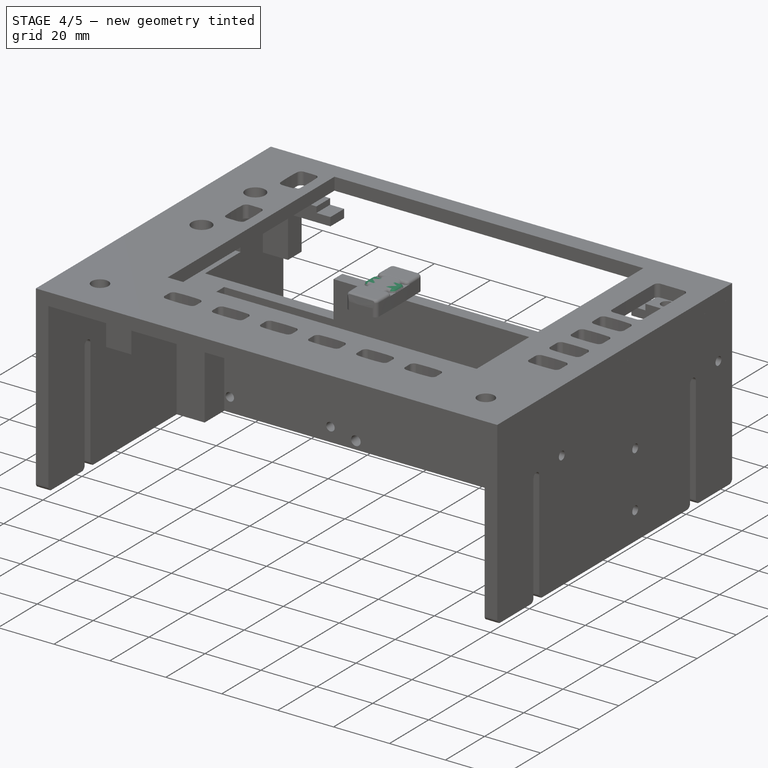
[diagram: stage 4 of 5 — iso view after this stage's code; geometry added in this stage tinted green]
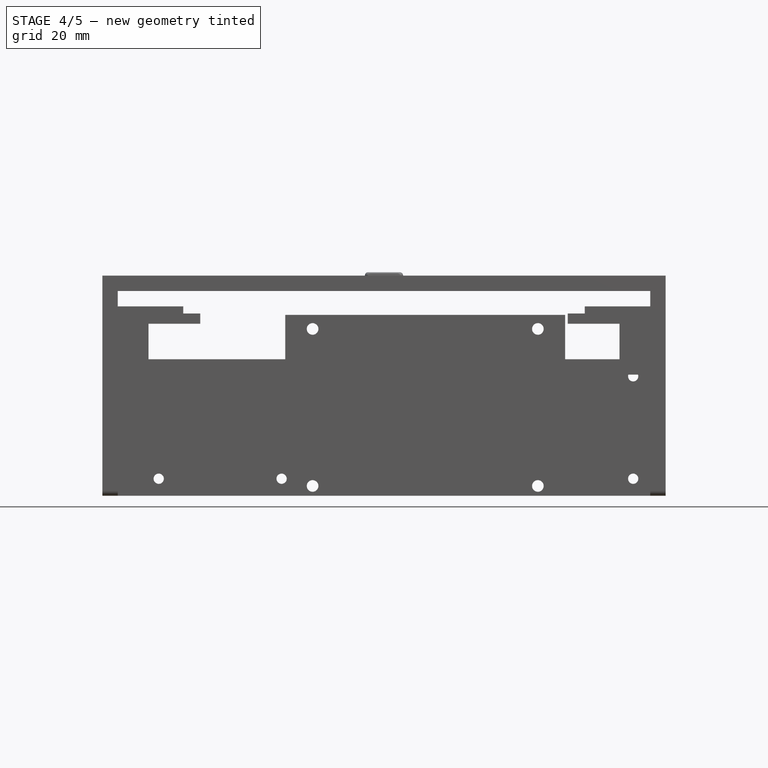
[diagram: stage 4 of 5 — front view after this stage's code; geometry added in this stage tinted green]
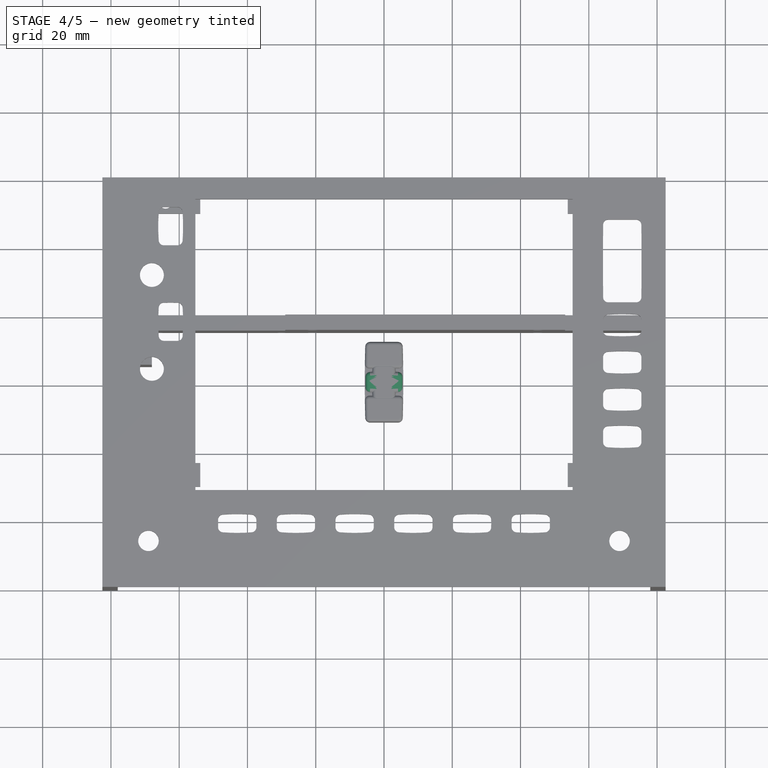
[diagram: stage 4 of 5 — top view after this stage's code; geometry added in this stage tinted green]
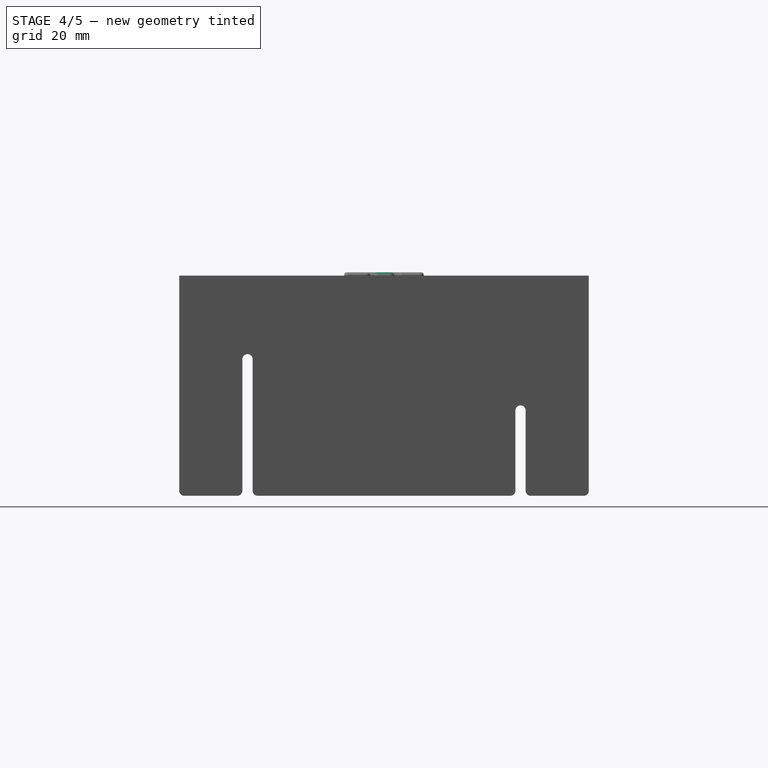
[diagram: stage 4 of 5 — right view after this stage's code; geometry added in this stage tinted green]
FEATURE [App::DocumentObjectGroup] Group002  label="Bezel"
  Group = -> [Common]
FEATURE [Sketcher::SketchObject] Sketch020  label="Sketch (button small)"
  sketch-geometry (21):
    g0: ArcOfCircle CenterX=0 CenterY=-48.4156 CenterZ=0 NormalX=0 NormalY=0 NormalZ=1 Radius=51.086 StartAngle=1.48909 EndAngle=1.6525
    g1: ArcOfCircle CenterX=0 CenterY=48.4156 CenterZ=0 NormalX=0 NormalY=0 NormalZ=1 Radius=51.086 StartAngle=4.63069 EndAngle=4.79409
    g2: ArcOfCircle CenterX=4.05103 CenterY=1.05584 CenterZ=0 NormalX=0 NormalY=0 NormalZ=1 Radius=1.44899 StartAngle=0.00556248 EndAngle=1.48909
    g3: ArcOfCircle CenterX=4.05103 CenterY=-1.05584 CenterZ=0 NormalX=0 NormalY=0 NormalZ=1 Radius=1.44899 StartAngle=4.79409 EndAngle=6.27762
    g4: ArcOfCircle CenterX=-185.76 CenterY=-1.97219e-05 CenterZ=0 NormalX=0 NormalY=0 NormalZ=1 Radius=191.263 StartAngle=6.27762 EndAngle=6.28875
    g5: ArcOfCircle CenterX=-4.05103 CenterY=1.05584 CenterZ=0 NormalX=0 NormalY=0 NormalZ=1 Radius=1.44899 StartAngle=1.6525 EndAngle=3.13603
    g6: ArcOfCircle CenterX=-4.05103 CenterY=-1.05584 CenterZ=0 NormalX=0 NormalY=0 NormalZ=1 Radius=1.44899 StartAngle=3.14716 EndAngle=4.63069
    g7: ArcOfCircle CenterX=185.76 CenterY=-1.97219e-05 CenterZ=0 NormalX=0 NormalY=0 NormalZ=1 Radius=191.263 StartAngle=3.13603 EndAngle=3.14716
    g8: LineSegment [constr] StartX=-4.16929 StartY=2.5 StartZ=0 EndX=-4.16929 EndY=-2.5 EndZ=0
    g9: LineSegment [constr] StartX=4.16929 StartY=2.5 StartZ=0 EndX=4.16929 EndY=-2.5 EndZ=0
    g10: LineSegment [constr] StartX=5.5 StartY=-1.0639 StartZ=0 EndX=-5.5 EndY=-1.0639 EndZ=0
    g11: LineSegment [constr] StartX=5.5 StartY=1.0639 StartZ=0 EndX=-5.5 EndY=1.0639 EndZ=0
    g12: LineSegment [constr] StartX=-5.5 StartY=1.0639 StartZ=0 EndX=5.5 EndY=-1.0639 EndZ=0
    g13: LineSegment [constr] StartX=-5.5 StartY=-1.0639 StartZ=0 EndX=5.5 EndY=1.0639 EndZ=0
    g14: LineSegment [constr] StartX=-4.16929 StartY=2.5 StartZ=0 EndX=4.16929 EndY=-2.5 EndZ=0
    g15: LineSegment [constr] StartX=4.16929 StartY=2.5 StartZ=0 EndX=-4.16929 EndY=-2.5 EndZ=0
    g16: GeomPoint [constr] X=0 Y=0 Z=0
    g17: LineSegment [constr] StartX=185.76 StartY=-1.97219e-05 StartZ=0 EndX=0 EndY=48.4156 EndZ=0
    g18: LineSegment [constr] StartX=0 StartY=0 StartZ=0 EndX=-4.05103 EndY=1.05584 EndZ=0
    g19: LineSegment [constr] StartX=-4.05103 StartY=1.05584 StartZ=0 EndX=-4.16929 EndY=2.5 EndZ=0
    g20: LineSegment [constr] StartX=-4.05103 StartY=1.05584 StartZ=0 EndX=-5.5 EndY=1.0639 EndZ=0
  constraints (57):
    c: Coincident(g2,g0)
    c: Coincident(g3,g1)
    c: Coincident(g4,g2)
    c: Coincident(g4,g3)
    c: Coincident(g5,g0)
    c: Coincident(g6,g1)
    c: Coincident(g7,g5)
    c: Coincident(g7,g6)
    c: Coincident(g8,g0)
    c: Coincident(g8,g1)
    c: Coincident(g9,g0)
    c: Coincident(g9,g1)
    c: Vertical(g9)
    c: Coincident(g10,g3)
    c: Coincident(g10,g6)
    c: Horizontal(g10)
    c: Coincident(g11,g2)
    c: Coincident(g11,g5)
    c: Horizontal(g11)
    c: Vertical(g8)
    c: Equal(g5,g2)
    c: Equal(g2,g3)
    c: Equal(g3,g6)
    c: Tangent(g5,g7)
    c: Tangent(g3,g4)
    c: Tangent(g2,g0)
    c: Equal(g8,g9)
    c: Coincident(g12,g5)
    c: Coincident(g12,g3)
    c: Coincident(g13,g6)
    c: Coincident(g13,g2)
    c: Coincident(g14,g0)
    c: Coincident(g14,g1)
    c: Coincident(g15,g0)
    c: PointOnObject(g16,g12)
    c: PointOnObject(g16,g14)
    c: PointOnObject(g16,g13)
    c: PointOnObject(g16,g15)
    c: Coincident(g15,g1)
    c: Equal(g14,g15)
    c: Equal(g13,g12)
    c: Equal(g4,g7)
    c: Equal(g0,g1)
    c: DistanceX(g6,g3) = 11
    c: DistanceY(g1,g0) = 5
    c: Angle(g14,g12) = 0.349066
    c: Coincident(g17,g7)
    c: Coincident(g17,g1)
    c: Coincident(g18,g16)
    c: Coincident(g18,g5)
    c: Parallel(g18,g17)
    c: Coincident(g19,g5)
    c: Coincident(g19,g0)
    c: Coincident(g20,g5)
    c: Coincident(g5,g20)
    c: Angle(g19,g20) = 1.48353
    c: Coincident(g16,g-1)
FEATURE [PartDesign::Pad] Pad016  label="Pad (button small)"
  Length = 5.5
  Length2 = 100
  Sketch = -> Sketch020
  Type = 0
FEATURE [Part::Fillet] Fillet001  label="Fillet (button small)"
  Base = -> Pad016
  Edges = 8 edges r=1.1: [Edge4,Edge7,Edge10,Edge13,Edge16,Edge19,Edge22,Edge24]
FEATURE [Part::Cut] Cut003  label="Cut (button small final)"
  Base = -> Fillet001
  Tool = -> Pad017
FEATURE [Sketcher::SketchObject] Sketch024  label="Sketch (button med)"
  sketch-geometry (21):
    g0: ArcOfCircle CenterX=0 CenterY=-51.4419 CenterZ=0 NormalX=0 NormalY=0 NormalZ=1 Radius=54.6 StartAngle=1.49468 EndAngle=1.64691
    g1: ArcOfCircle CenterX=0 CenterY=51.4419 CenterZ=0 NormalX=0 NormalY=0 NormalZ=1 Radius=54.6 StartAngle=4.63627 EndAngle=4.78851
    g2: ArcOfCircle CenterX=4.04108 CenterY=1.54522 CenterZ=0 NormalX=0 NormalY=0 NormalZ=1 Radius=1.45901 StartAngle=0.0111496 EndAngle=1.49468
    g3: ArcOfCircle CenterX=4.04108 CenterY=-1.54522 CenterZ=0 NormalX=0 NormalY=0 NormalZ=1 Radius=1.45901 StartAngle=4.7885 EndAngle=6.27204
    g4: ArcOfCircle CenterX=-134.532 CenterY=-9.44784e-05 CenterZ=0 NormalX=0 NormalY=0 NormalZ=1 Radius=140.041 StartAngle=6.27204 EndAngle=6.29434
    g5: ArcOfCircle CenterX=-4.04108 CenterY=1.54522 CenterZ=0 NormalX=0 NormalY=0 NormalZ=1 Radius=1.45901 StartAngle=1.64691 EndAngle=3.13044
    g6: ArcOfCircle CenterX=-4.04108 CenterY=-1.54522 CenterZ=0 NormalX=0 NormalY=0 NormalZ=1 Radius=1.45901 StartAngle=3.15274 EndAngle=4.63627
    g7: ArcOfCircle CenterX=134.532 CenterY=-9.44784e-05 CenterZ=0 NormalX=0 NormalY=0 NormalZ=1 Radius=140.041 StartAngle=3.13044 EndAngle=3.15274
    g8: LineSegment [constr] StartX=-4.15203 StartY=3 StartZ=0 EndX=-4.15203 EndY=-3 EndZ=0
    g9: LineSegment [constr] StartX=4.15203 StartY=3 StartZ=0 EndX=4.15203 EndY=-3 EndZ=0
    g10: LineSegment [constr] StartX=5.5 StartY=-1.56148 StartZ=0 EndX=-5.5 EndY=-1.56148 EndZ=0
    g11: LineSegment [constr] StartX=5.5 StartY=1.56148 StartZ=0 EndX=-5.5 EndY=1.56148 EndZ=0
    g12: LineSegment [constr] StartX=-5.5 StartY=1.56148 StartZ=0 EndX=5.5 EndY=-1.56148 EndZ=0
    g13: LineSegment [constr] StartX=-5.5 StartY=-1.56148 StartZ=0 EndX=5.5 EndY=1.56148 EndZ=0
    g14: LineSegment [constr] StartX=-4.15203 StartY=3 StartZ=0 EndX=4.15203 EndY=-3 EndZ=0
    g15: LineSegment [constr] StartX=4.15203 StartY=3 StartZ=0 EndX=-4.15203 EndY=-3 EndZ=0
    g16: GeomPoint [constr] X=0 Y=0 Z=0
    g17: LineSegment [constr] StartX=134.532 StartY=-9.44784e-05 StartZ=0 EndX=0 EndY=51.4419 EndZ=0
    g18: LineSegment [constr] StartX=0 StartY=0 StartZ=0 EndX=-4.04108 EndY=1.54522 EndZ=0
    g19: LineSegment [constr] StartX=-4.04108 StartY=1.54522 StartZ=0 EndX=-4.15203 EndY=3 EndZ=0
    g20: LineSegment [constr] StartX=-4.04108 StartY=1.54522 StartZ=0 EndX=-5.5 EndY=1.56148 EndZ=0
  constraints (57):
    c: Coincident(g2,g0)
    c: Coincident(g3,g1)
    c: Coincident(g4,g2)
    c: Coincident(g4,g3)
    c: Coincident(g5,g0)
    c: Coincident(g6,g1)
    c: Coincident(g7,g5)
    c: Coincident(g7,g6)
    c: Coincident(g8,g0)
    c: Coincident(g8,g1)
    c: Coincident(g9,g0)
    c: Coincident(g9,g1)
    c: Vertical(g9)
    c: Coincident(g10,g3)
    c: Coincident(g10,g6)
    c: Horizontal(g10)
    c: Coincident(g11,g2)
    c: Coincident(g11,g5)
    c: Horizontal(g11)
    c: Vertical(g8)
    c: Equal(g5,g2)
    c: Equal(g2,g3)
    c: Equal(g3,g6)
    c: Tangent(g5,g7)
    c: Tangent(g3,g4)
    c: Tangent(g2,g0)
    c: Equal(g8,g9)
    c: Coincident(g12,g5)
    c: Coincident(g12,g3)
    c: Coincident(g13,g6)
    c: Coincident(g13,g2)
    c: Coincident(g14,g0)
    c: Coincident(g14,g1)
    c: Coincident(g15,g0)
    c: PointOnObject(g16,g12)
    c: PointOnObject(g16,g14)
    c: PointOnObject(g16,g13)
    c: PointOnObject(g16,g15)
    c: Coincident(g15,g1)
    c: Equal(g14,g15)
    c: Equal(g13,g12)
    c: Equal(g4,g7)
    c: Equal(g0,g1)
    c: DistanceX(g6,g3) = 11
    c: DistanceY(g1,g0) = 6
    c: Angle(g14,g12) = 0.349066
    c: Coincident(g17,g7)
    c: Coincident(g17,g1)
    c: Coincident(g18,g16)
    c: Coincident(g18,g5)
    c: Parallel(g18,g17)
    c: Coincident(g19,g5)
    c: Coincident(g19,g0)
    c: Coincident(g20,g5)
    c: Coincident(g5,g20)
    c: Angle(g19,g20) = 1.48353
    c: Coincident(g16,g-1)
FEATURE [PartDesign::Pad] Pad018  label="Pad (button med)"
  Length = 5.5
  Length2 = 100
  Sketch = -> Sketch024
  Type = 0
FEATURE [Part::Fillet] Fillet002  label="Fillet (button med)"
  Base = -> Pad018
  Edges = 8 edges r=1.1: [Edge4,Edge7,Edge10,Edge13,Edge16,Edge19,Edge22,Edge24]
FEATURE [Part::FeaturePython] Clone002  label="Clone (button hole)"  # Draft clone (typed FeaturePython)
  Objects = -> [Pad017]
  Scale = (1,1,1)
FEATURE [Part::Cut] Cut005  label="Cut (button med final)"
  Base = -> Fillet002
  Tool = -> Clone002
FEATURE [Part::FeaturePython] Clone003  label="Clone (button hole v)"  # Draft clone (typed FeaturePython)
  Objects = -> [Pad017]
  Scale = (1,1,1)
FEATURE [Part::Cut] Cut008  label="Cut (button med v final)"
  Base = -> Fillet
  Tool = -> Clone003
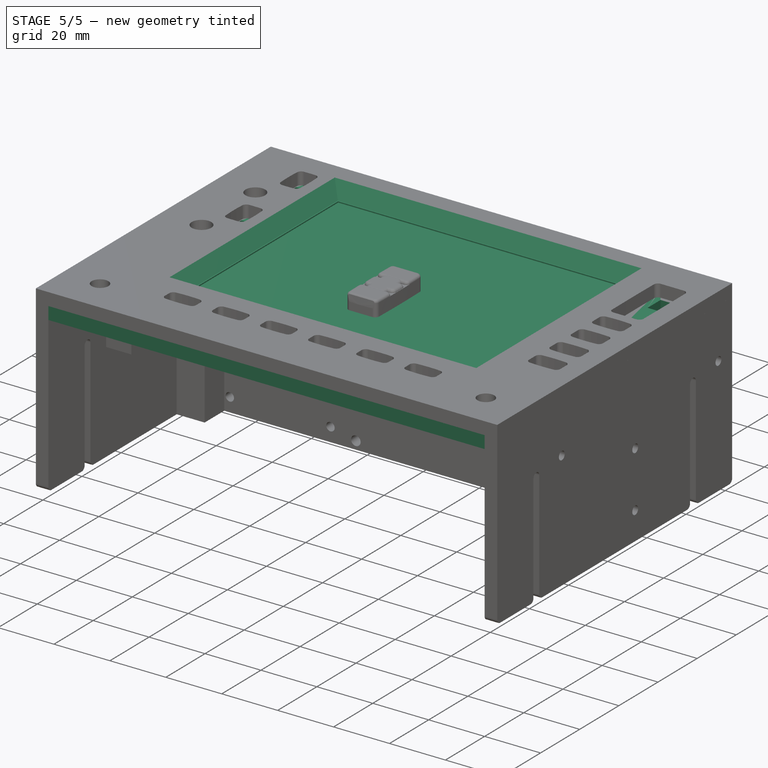
[diagram: stage 5 of 5 — iso view after this stage's code; geometry added in this stage tinted green]
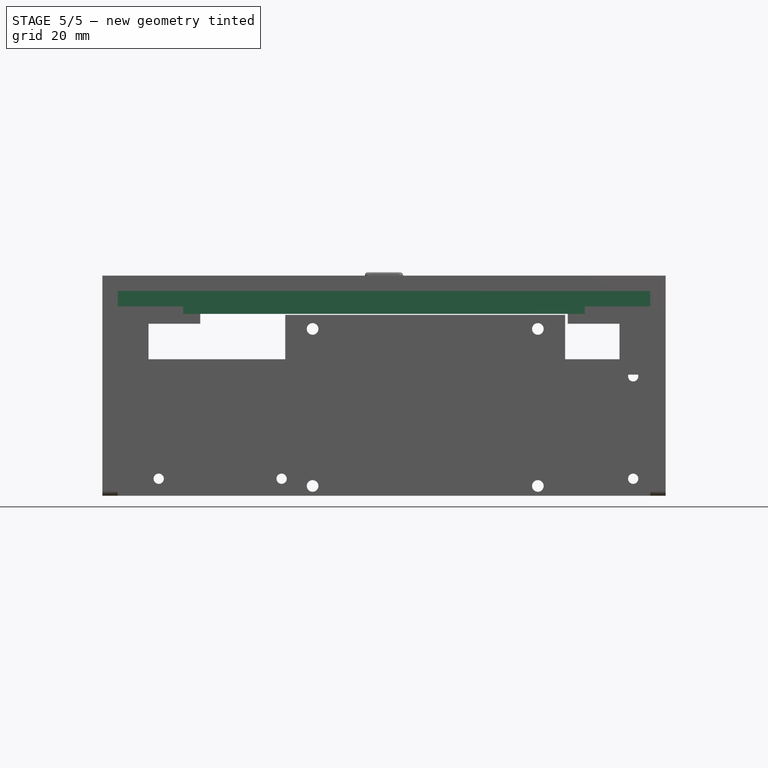
[diagram: stage 5 of 5 — front view after this stage's code; geometry added in this stage tinted green]
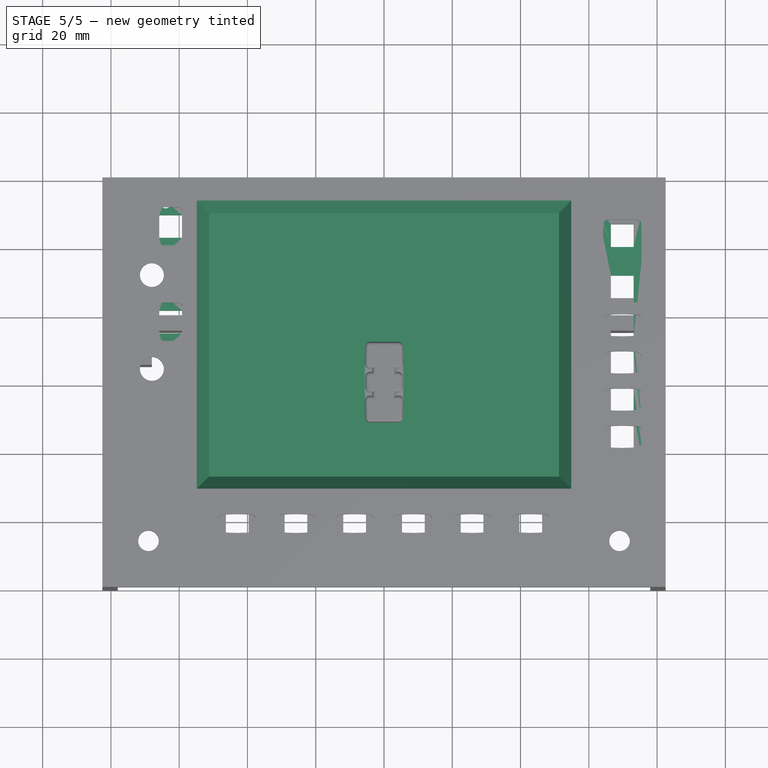
[diagram: stage 5 of 5 — top view after this stage's code; geometry added in this stage tinted green]
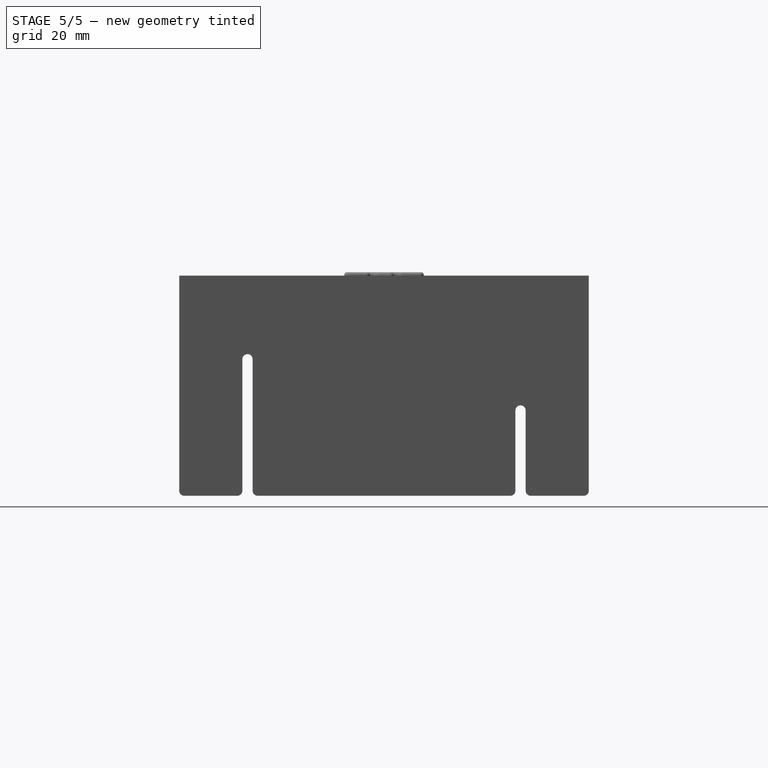
[diagram: stage 5 of 5 — right view after this stage's code; geometry added in this stage tinted green]
FEATURE [Image::ImagePlane] ImagePlane
  Placement = pos=(0,0,-4.5) rot=(0,0,1;0rad)
  XSize = 165
  YSize = 120
FEATURE [Sketcher::SketchObject] Sketch001  label="Sketch (display)"
  Placement = pos=(0,0,-1) rot=(0,0,1;0rad)
  sketch-geometry (15):
    g0: LineSegment StartX=-58.82 StartY=57.56 StartZ=0 EndX=58.83 EndY=57.56 EndZ=0
    g1: LineSegment StartX=58.83 StartY=57.56 StartZ=0 EndX=58.83 EndY=-30.87 EndZ=0
    g2: LineSegment StartX=58.83 StartY=-30.87 StartZ=0 EndX=-58.82 EndY=-30.87 EndZ=0
    g3: LineSegment StartX=-58.82 StartY=-30.87 StartZ=0 EndX=-58.82 EndY=57.56 EndZ=0
    g4: LineSegment [constr] StartX=-50.784 StartY=49.088 StartZ=0 EndX=50.784 EndY=49.088 EndZ=0
    g5: LineSegment [constr] StartX=50.784 StartY=49.088 StartZ=0 EndX=50.784 EndY=-27.088 EndZ=0
    g6: LineSegment [constr] StartX=50.784 StartY=-27.088 StartZ=0 EndX=-50.784 EndY=-27.088 EndZ=0
    g7: LineSegment [constr] StartX=-50.784 StartY=-27.088 StartZ=0 EndX=-50.784 EndY=49.088 EndZ=0
    g8: GeomPoint [constr] X=0 Y=11 Z=0
    g9: LineSegment [constr] StartX=-50.784 StartY=49.088 StartZ=0 EndX=0 EndY=11 EndZ=0
    g10: LineSegment [constr] StartX=0 StartY=11 StartZ=0 EndX=50.784 EndY=-27.088 EndZ=0
    g11: LineSegment [constr] StartX=-82.5 StartY=60 StartZ=0 EndX=82.5 EndY=60 EndZ=0
    g12: LineSegment [constr] StartX=82.5 StartY=60 StartZ=0 EndX=82.5 EndY=-60 EndZ=0
    g13: LineSegment [constr] StartX=82.5 StartY=-60 StartZ=0 EndX=-82.5 EndY=-60 EndZ=0
    g14: LineSegment [constr] StartX=-82.5 StartY=-60 StartZ=0 EndX=-82.5 EndY=60 EndZ=0
  constraints (41):
    c: Coincident(g0,g1)
    c: Coincident(g1,g2)
    c: Coincident(g2,g3)
    c: Coincident(g3,g0)
    c: Horizontal(g0)
    c: Horizontal(g2)
    c: Vertical(g1)
    c: Vertical(g3)
    c: DistanceX(g0,g0) = 117.65
    c: DistanceY(g1,g1) = 88.43
    c: Coincident(g4,g5)
    c: Coincident(g5,g6)
    c: Coincident(g6,g7)
    c: Coincident(g7,g4)
    c: Horizontal(g4)
    c: Horizontal(g6)
    c: Vertical(g5)
    c: Vertical(g7)
    c: DistanceX(g4,g4) = 101.568
    c: DistanceY(g7,g7) = 76.176
    c: Coincident(g9,g4)
    c: Coincident(g9,g8)
    c: Coincident(g10,g8)
    c: Coincident(g10,g5)
    c: Parallel(g10,g9)
    c: Equal(g10,g9)
    c: DistanceY(g8,g0) = 46.56
    c: DistanceX(g0,g8) = 58.82
    c: PointOnObject(g8,g-2)
    c: DistanceY(g-1,g8) = 11
    c: Coincident(g11,g12)
    c: Coincident(g12,g13)
    c: Coincident(g13,g14)
    c: Coincident(g14,g11)
    c: Horizontal(g11)
    c: Horizontal(g13)
    c: Vertical(g12)
    c: Vertical(g14)
    c: DistanceX(g13,g13) = 165
    c: DistanceY(g14,g14) = 120
    c: Symmetric(g11,g12,g-1)
FEATURE [Sketcher::SketchObject] Sketch013  label="Sketch (hardware)"
  Placement = pos=(0,0,-4.5) rot=(0,0,1;0rad)
  expr: Constraints[325] = 64 * 2
  expr: Constraints[293] = 117.65 - 0.2
  sketch-geometry (126):
    g0: LineSegment StartX=-78 StartY=60 StartZ=0 EndX=78 EndY=60 EndZ=0
    g1: LineSegment StartX=78 StartY=-60 StartZ=0 EndX=-78 EndY=-60 EndZ=0
    g2: LineSegment StartX=66.475 StartY=20.025 StartZ=0 EndX=73.125 EndY=20.025 EndZ=0
    g3: LineSegment StartX=73.125 StartY=20.025 StartZ=0 EndX=73.125 EndY=13.375 EndZ=0
    g4: LineSegment StartX=73.125 StartY=13.375 StartZ=0 EndX=66.475 EndY=13.375 EndZ=0
    g5: LineSegment StartX=66.475 StartY=13.375 StartZ=0 EndX=66.475 EndY=20.025 EndZ=0
    g6: GeomPoint [constr] X=69.8 Y=16.7 Z=0
    g7: LineSegment StartX=66.475 StartY=9.125 StartZ=0 EndX=73.125 EndY=9.125 EndZ=0
    g8: LineSegment StartX=73.125 StartY=9.125 StartZ=0 EndX=73.125 EndY=2.475 EndZ=0
    g9: LineSegment StartX=73.125 StartY=2.475 StartZ=0 EndX=66.475 EndY=2.475 EndZ=0
    g10: LineSegment StartX=66.475 StartY=2.475 StartZ=0 EndX=66.475 EndY=9.125 EndZ=0
    g11: GeomPoint [constr] X=69.8 Y=5.8 Z=0
    g12: LineSegment StartX=66.475 StartY=-1.775 StartZ=0 EndX=73.125 EndY=-1.775 EndZ=0
    g13: LineSegment StartX=73.125 StartY=-1.775 StartZ=0 EndX=73.125 EndY=-8.425 EndZ=0
    g14: LineSegment StartX=73.125 StartY=-8.425 StartZ=0 EndX=66.475 EndY=-8.425 EndZ=0
    g15: LineSegment StartX=66.475 StartY=-8.425 StartZ=0 EndX=66.475 EndY=-1.775 EndZ=0
    g16: GeomPoint [constr] X=69.8 Y=-5.1 Z=0
    g17: LineSegment StartX=66.475 StartY=-12.675 StartZ=0 EndX=73.125 EndY=-12.675 EndZ=0
    g18: LineSegment StartX=73.125 StartY=-12.675 StartZ=0 EndX=73.125 EndY=-19.325 EndZ=0
    g19: LineSegment StartX=73.125 StartY=-19.325 StartZ=0 EndX=66.475 EndY=-19.325 EndZ=0
    g20: LineSegment StartX=66.475 StartY=-19.325 StartZ=0 EndX=66.475 EndY=-12.675 EndZ=0
    g21: GeomPoint [constr] X=69.8 Y=-16 Z=0
    g22: LineSegment StartX=-46.325 StartY=-38.075 StartZ=0 EndX=-39.675 EndY=-38.075 EndZ=0
    g23: LineSegment StartX=-39.675 StartY=-38.075 StartZ=0 EndX=-39.675 EndY=-44.725 EndZ=0
    g24: LineSegment StartX=-39.675 StartY=-44.725 StartZ=0 EndX=-46.325 EndY=-44.725 EndZ=0
    g25: LineSegment StartX=-46.325 StartY=-44.725 StartZ=0 EndX=-46.325 EndY=-38.075 EndZ=0
    g26: GeomPoint [constr] X=-43 Y=-41.4 Z=0
    g27: LineSegment StartX=-29.125 StartY=-38.075 StartZ=0 EndX=-22.475 EndY=-38.075 EndZ=0
    g28: LineSegment StartX=-22.475 StartY=-38.075 StartZ=0 EndX=-22.475 EndY=-44.725 EndZ=0
    g29: LineSegment StartX=-22.475 StartY=-44.725 StartZ=0 EndX=-29.125 EndY=-44.725 EndZ=0
    g30: LineSegment StartX=-29.125 StartY=-44.725 StartZ=0 EndX=-29.125 EndY=-38.075 EndZ=0
    g31: GeomPoint [constr] X=-25.8 Y=-41.4 Z=0
    g32: LineSegment StartX=-11.925 StartY=-38.075 StartZ=0 EndX=-5.275 EndY=-38.075 EndZ=0
    g33: LineSegment StartX=-5.275 StartY=-38.075 StartZ=0 EndX=-5.275 EndY=-44.725 EndZ=0
    g34: LineSegment StartX=-5.275 StartY=-44.725 StartZ=0 EndX=-11.925 EndY=-44.725 EndZ=0
    g35: LineSegment StartX=-11.925 StartY=-44.725 StartZ=0 EndX=-11.925 EndY=-38.075 EndZ=0
    g36: GeomPoint [constr] X=-8.6 Y=-41.4 Z=0
    g37: LineSegment StartX=5.275 StartY=-38.075 StartZ=0 EndX=11.925 EndY=-38.075 EndZ=0
    g38: LineSegment StartX=11.925 StartY=-38.075 StartZ=0 EndX=11.925 EndY=-44.725 EndZ=0
    g39: LineSegment StartX=11.925 StartY=-44.725 StartZ=0 EndX=5.275 EndY=-44.725 EndZ=0
    g40: LineSegment StartX=5.275 StartY=-44.725 StartZ=0 EndX=5.275 EndY=-38.075 EndZ=0
    g41: GeomPoint [constr] X=8.6 Y=-41.4 Z=0
    g42: LineSegment StartX=22.475 StartY=-38.075 StartZ=0 EndX=29.125 EndY=-38.075 EndZ=0
    g43: LineSegment StartX=29.125 StartY=-38.075 StartZ=0 EndX=29.125 EndY=-44.725 EndZ=0
    g44: LineSegment StartX=29.125 StartY=-44.725 StartZ=0 EndX=22.475 EndY=-44.725 EndZ=0
    g45: LineSegment StartX=22.475 StartY=-44.725 StartZ=0 EndX=22.475 EndY=-38.075 EndZ=0
    g46: GeomPoint [constr] X=25.8 Y=-41.4 Z=0
    g47: LineSegment StartX=39.675 StartY=-38.075 StartZ=0 EndX=46.325 EndY=-38.075 EndZ=0
    g48: LineSegment StartX=46.325 StartY=-38.075 StartZ=0 EndX=46.325 EndY=-44.725 EndZ=0
    g49: LineSegment StartX=46.325 StartY=-44.725 StartZ=0 EndX=39.675 EndY=-44.725 EndZ=0
    g50: LineSegment StartX=39.675 StartY=-44.725 StartZ=0 EndX=39.675 EndY=-38.075 EndZ=0
    g51: GeomPoint [constr] X=43 Y=-41.4 Z=0
    g52: LineSegment StartX=-65.825 StartY=49.025 StartZ=0 EndX=-59.175 EndY=49.025 EndZ=0
    g53: LineSegment StartX=-59.175 StartY=49.025 StartZ=0 EndX=-59.175 EndY=42.375 EndZ=0
    g54: LineSegment StartX=-59.175 StartY=42.375 StartZ=0 EndX=-65.825 EndY=42.375 EndZ=0
    g55: LineSegment StartX=-65.825 StartY=42.375 StartZ=0 EndX=-65.825 EndY=49.025 EndZ=0
    g56: GeomPoint [constr] X=-62.5 Y=45.7 Z=0
    g57: LineSegment StartX=-65.825 StartY=21.025 StartZ=0 EndX=-59.175 EndY=21.025 EndZ=0
    g58: LineSegment StartX=-59.175 StartY=21.025 StartZ=0 EndX=-59.175 EndY=14.375 EndZ=0
    g59: LineSegment StartX=-59.175 StartY=14.375 StartZ=0 EndX=-65.825 EndY=14.375 EndZ=0
    g60: LineSegment StartX=-65.825 StartY=14.375 StartZ=0 EndX=-65.825 EndY=21.025 EndZ=0
    g61: GeomPoint [constr] X=-62.5 Y=17.7 Z=0
    g62: LineSegment StartX=66.475 StartY=46.325 StartZ=0 EndX=73.125 EndY=46.325 EndZ=0
    g63: LineSegment StartX=73.125 StartY=46.325 StartZ=0 EndX=73.125 EndY=39.675 EndZ=0
    g64: LineSegment StartX=73.125 StartY=39.675 StartZ=0 EndX=66.475 EndY=39.675 EndZ=0
    g65: LineSegment StartX=66.475 StartY=39.675 StartZ=0 EndX=66.475 EndY=46.325 EndZ=0
    g66: GeomPoint [constr] X=69.8 Y=43 Z=0
    g67: LineSegment StartX=66.475 StartY=31.325 StartZ=0 EndX=73.125 EndY=31.325 EndZ=0
    g68: LineSegment StartX=73.125 StartY=31.325 StartZ=0 EndX=73.125 EndY=24.675 EndZ=0
    g69: LineSegment StartX=73.125 StartY=24.675 StartZ=0 EndX=66.475 EndY=24.675 EndZ=0
    g70: LineSegment StartX=66.475 StartY=24.675 StartZ=0 EndX=66.475 EndY=31.325 EndZ=0
    g71: GeomPoint [constr] X=69.8 Y=28 Z=0
    g72: LineSegment [constr] StartX=69.8 StartY=16.7 StartZ=0 EndX=69.8 EndY=5.8 EndZ=0
    g73: LineSegment [constr] StartX=69.8 StartY=5.8 StartZ=0 EndX=69.8 EndY=-5.1 EndZ=0
    g74: LineSegment [constr] StartX=69.8 StartY=-5.1 StartZ=0 EndX=69.8 EndY=-16 EndZ=0
    g75: LineSegment [constr] StartX=-43 StartY=-41.4 StartZ=0 EndX=-25.8 EndY=-41.4 EndZ=0
    g76: LineSegment [constr] StartX=-25.8 StartY=-41.4 StartZ=0 EndX=-8.6 EndY=-41.4 EndZ=0
    g77: LineSegment [constr] StartX=-8.6 StartY=-41.4 StartZ=0 EndX=8.6 EndY=-41.4 EndZ=0
    g78: LineSegment [constr] StartX=8.6 StartY=-41.4 StartZ=0 EndX=25.8 EndY=-41.4 EndZ=0
    g79: LineSegment [constr] StartX=25.8 StartY=-41.4 StartZ=0 EndX=43 EndY=-41.4 EndZ=0
    g80: LineSegment [constr] StartX=-62.5 StartY=45.7 StartZ=0 EndX=-62.5 EndY=17.7 EndZ=0
    g81: LineSegment StartX=-58.81 StartY=57.55 StartZ=0 EndX=58.64 EndY=57.55 EndZ=0
    g82: LineSegment StartX=58.64 StartY=57.55 StartZ=0 EndX=58.64 EndY=-32.45 EndZ=0
    g83: LineSegment StartX=58.64 StartY=-32.45 StartZ=0 EndX=-58.81 EndY=-32.45 EndZ=0
    g84: LineSegment StartX=-58.81 StartY=-32.45 StartZ=0 EndX=-58.81 EndY=57.55 EndZ=0
    g85: Circle [constr] CenterX=-69 CenterY=-46.5 CenterZ=0 NormalX=0 NormalY=0 NormalZ=1 Radius=10
    g86: Circle [constr] CenterX=69 CenterY=-46.5 CenterZ=0 NormalX=0 NormalY=0 NormalZ=1 Radius=10
    g87: LineSegment [constr] StartX=69 StartY=-46.5 StartZ=0 EndX=-69 EndY=-46.5 EndZ=0
    g88: LineSegment StartX=-59 StartY=-56.5 StartZ=0 EndX=-78 EndY=-56.5 EndZ=0
    g89: LineSegment StartX=-78 StartY=-36.5 StartZ=0 EndX=-59 EndY=-36.5 EndZ=0
    g90: LineSegment StartX=-59 StartY=-36.5 StartZ=0 EndX=-59 EndY=-56.5 EndZ=0
    g91: LineSegment StartX=78 StartY=-56.5 StartZ=0 EndX=59 EndY=-56.5 EndZ=0
    g92: LineSegment StartX=59 StartY=-56.5 StartZ=0 EndX=59 EndY=-36.5 EndZ=0
    g93: LineSegment StartX=59 StartY=-36.5 StartZ=0 EndX=78 EndY=-36.5 EndZ=0
    g94: LineSegment StartX=-78 StartY=-56.5 StartZ=0 EndX=-78 EndY=-60 EndZ=0
    g95: LineSegment StartX=78 StartY=60 StartZ=0 EndX=78 EndY=-36.5 EndZ=0
    g96: LineSegment StartX=78 StartY=-56.5 StartZ=0 EndX=78 EndY=-60 EndZ=0
    g97: LineSegment [constr] StartX=78 StartY=-36.5 StartZ=0 EndX=78 EndY=-56.5 EndZ=0
    g98: LineSegment [constr] StartX=-78 StartY=-36.5 StartZ=0 EndX=-78 EndY=-56.5 EndZ=0
    g99: LineSegment [constr] StartX=69.8 StartY=43 StartZ=0 EndX=69.8 EndY=28 EndZ=0
    g100: ArcOfCircle CenterX=-68 CenterY=31.4 CenterZ=0 NormalX=0 NormalY=0 NormalZ=1 Radius=6.7 StartAngle=4.71239 EndAngle=7.85398
    g101: ArcOfCircle CenterX=-68 CenterY=3.9 CenterZ=0 NormalX=0 NormalY=0 NormalZ=1 Radius=6.7 StartAngle=4.71239 EndAngle=7.85398
    g102: LineSegment StartX=-68 StartY=38.1 StartZ=0 EndX=-78 EndY=38.1 EndZ=0
    g103: LineSegment StartX=-68 StartY=24.7 StartZ=0 EndX=-78 EndY=24.7 EndZ=0
    g104: LineSegment StartX=-68 StartY=10.6 StartZ=0 EndX=-78 EndY=10.6 EndZ=0
    g105: LineSegment StartX=-68 StartY=-2.8 StartZ=0 EndX=-78 EndY=-2.8 EndZ=0
    g106: LineSegment [constr] StartX=-68 StartY=38.1 StartZ=0 EndX=-68 EndY=-2.8 EndZ=0
    g107: LineSegment StartX=-78 StartY=60 StartZ=0 EndX=-78 EndY=38.1 EndZ=0
    g108: LineSegment [constr] StartX=-78 StartY=38.1 StartZ=0 EndX=-78 EndY=24.7 EndZ=0
    g109: LineSegment StartX=-78 StartY=24.7 StartZ=0 EndX=-78 EndY=10.6 EndZ=0
    g110: LineSegment [constr] StartX=-78 StartY=10.6 StartZ=0 EndX=-78 EndY=-2.8 EndZ=0
    g111: LineSegment StartX=-78 StartY=-2.8 StartZ=0 EndX=-78 EndY=-36.5 EndZ=0
    g112: GeomPoint [constr] X=69.8 Y=35.5 Z=0
    g113: LineSegment [constr] StartX=69.8 StartY=28 StartZ=0 EndX=69.8 EndY=16.7 EndZ=0
    g114: GeomPoint [constr] X=0 Y=11 Z=0
    g115: LineSegment [constr] StartX=-50.784 StartY=49.088 StartZ=0 EndX=50.784 EndY=49.088 EndZ=0
    g116: LineSegment [constr] StartX=50.784 StartY=49.088 StartZ=0 EndX=50.784 EndY=-27.088 EndZ=0
    g117: LineSegment [constr] StartX=50.784 StartY=-27.088 StartZ=0 EndX=-50.784 EndY=-27.088 EndZ=0
    g118: LineSegment [constr] StartX=-50.784 StartY=-27.088 StartZ=0 EndX=-50.784 EndY=49.088 EndZ=0
    g119: Circle CenterX=-64 CenterY=53 CenterZ=0 NormalX=0 NormalY=0 NormalZ=1 Radius=2
    g120: Circle CenterX=64 CenterY=53 CenterZ=0 NormalX=0 NormalY=0 NormalZ=1 Radius=2
    g121: Circle CenterX=64 CenterY=-27 CenterZ=0 NormalX=0 NormalY=0 NormalZ=1 Radius=2
    g122: Circle CenterX=-64 CenterY=-27 CenterZ=0 NormalX=0 NormalY=0 NormalZ=1 Radius=2
    g123: LineSegment [constr] StartX=-64 StartY=53 StartZ=0 EndX=64 EndY=53 EndZ=0
    g124: LineSegment [constr] StartX=64 StartY=-27 StartZ=0 EndX=-64 EndY=-27 EndZ=0
    g125: LineSegment [constr] StartX=-64 StartY=53 StartZ=0 EndX=-64 EndY=-27 EndZ=0
  constraints (328):
    c: Horizontal(g0)
    c: Horizontal(g1)
    c: DistanceX(g1,g1) = 156
    c: DistanceY(g1,g0) = 120
    c: Symmetric(g0,g1,g-1)
    c: Coincident(g2,g3)
    c: Coincident(g3,g4)
    c: Coincident(g4,g5)
    c: Coincident(g5,g2)
    c: Horizontal(g2)
    c: Horizontal(g4)
    c: Vertical(g3)
    c: Vertical(g5)
    c: Equal(g2,g5)
    c: Symmetric(g2,g3,g6)
    c: DistanceX(g2,g2) = 6.65
    c: Coincident(g7,g8)
    c: Coincident(g8,g9)
    c: Coincident(g9,g10)
    c: Coincident(g10,g7)
    c: Horizontal(g7)
    c: Horizontal(g9)
    c: Vertical(g8)
    c: Vertical(g10)
    c: Equal(g7,g10)
    c: Symmetric(g7,g8,g11)
    c: Equal(g2,g7) = 6.65
    c: Coincident(g12,g13)
    c: Coincident(g13,g14)
    c: Coincident(g14,g15)
    c: Coincident(g15,g12)
    c: Horizontal(g12)
    c: Horizontal(g14)
    c: Vertical(g13)
    c: Vertical(g15)
    c: Equal(g12,g15)
    c: Symmetric(g12,g13,g16)
    c: Equal(g2,g12) = 6.65
    c: Coincident(g17,g18)
    c: Coincident(g18,g19)
    c: Coincident(g19,g20)
    c: Coincident(g20,g17)
    c: Horizontal(g17)
    c: Horizontal(g19)
    c: Vertical(g18)
    c: Vertical(g20)
    c: Equal(g17,g20)
    c: Symmetric(g17,g18,g21)
    c: Equal(g2,g17) = 6.65
    c: Coincident(g22,g23)
    c: Coincident(g23,g24)
    c: Coincident(g24,g25)
    c: Coincident(g25,g22)
    c: Horizontal(g22)
    c: Horizontal(g24)
    c: Vertical(g23)
    c: Vertical(g25)
    c: Equal(g22,g25)
    c: Symmetric(g22,g23,g26)
    c: Equal(g2,g22) = 6.65
    c: Coincident(g27,g28)
    c: Coincident(g28,g29)
    c: Coincident(g29,g30)
    c: Coincident(g30,g27)
    c: Horizontal(g27)
    c: Horizontal(g29)
    c: Vertical(g28)
    c: Vertical(g30)
    c: Equal(g27,g30)
    c: Symmetric(g27,g28,g31)
    c: Equal(g2,g27) = 6.65
    c: Coincident(g32,g33)
    c: Coincident(g33,g34)
    c: Coincident(g34,g35)
    c: Coincident(g35,g32)
    c: Horizontal(g32)
    c: Horizontal(g34)
    c: Vertical(g33)
    c: Vertical(g35)
    c: Equal(g32,g35)
    c: Symmetric(g32,g33,g36)
    c: Equal(g2,g32) = 6.65
    c: Coincident(g37,g38)
    c: Coincident(g38,g39)
    c: Coincident(g39,g40)
    c: Coincident(g40,g37)
    c: Horizontal(g37)
    c: Horizontal(g39)
    c: Vertical(g38)
    c: Vertical(g40)
    c: Equal(g37,g40)
    c: Symmetric(g37,g38,g41)
    c: Equal(g2,g37) = 6.65
    c: Coincident(g42,g43)
    c: Coincident(g43,g44)
    c: Coincident(g44,g45)
    c: Coincident(g45,g42)
    c: Horizontal(g42)
    c: Horizontal(g44)
    c: Vertical(g43)
    c: Vertical(g45)
    c: Equal(g42,g45)
    c: Symmetric(g42,g43,g46)
    c: Equal(g2,g42) = 6.65
    c: Coincident(g47,g48)
    c: Coincident(g48,g49)
    c: Coincident(g49,g50)
    c: Coincident(g50,g47)
    c: Horizontal(g47)
    c: Horizontal(g49)
    c: Vertical(g48)
    c: Vertical(g50)
    c: Equal(g47,g50)
    c: Symmetric(g47,g48,g51)
    c: Equal(g2,g47) = 6.65
    c: Coincident(g52,g53)
    c: Coincident(g53,g54)
    c: Coincident(g54,g55)
    c: Coincident(g55,g52)
    c: Horizontal(g52)
    c: Horizontal(g54)
    c: Vertical(g53)
    c: Vertical(g55)
    c: Equal(g52,g55)
    c: Symmetric(g52,g53,g56)
    c: Equal(g2,g52) = 6.65
    c: Coincident(g57,g58)
    c: Coincident(g58,g59)
    c: Coincident(g59,g60)
    c: Coincident(g60,g57)
    c: Horizontal(g57)
    c: Horizontal(g59)
    c: Vertical(g58)
    c: Vertical(g60)
    c: Equal(g57,g60)
    c: Symmetric(g57,g58,g61)
    c: Equal(g2,g57) = 6.65
    c: Coincident(g62,g63)
    c: Coincident(g63,g64)
    c: Coincident(g64,g65)
    c: Coincident(g65,g62)
    c: Horizontal(g62)
    c: Horizontal(g64)
    c: Vertical(g63)
    c: Vertical(g65)
    c: Equal(g62,g65)
    c: Symmetric(g62,g63,g66)
    c: Equal(g2,g62) = 6.65
    c: Coincident(g67,g68)
    c: Coincident(g68,g69)
    c: Coincident(g69,g70)
    c: Coincident(g70,g67)
    c: Horizontal(g67)
    c: Horizontal(g69)
    c: Vertical(g68)
    c: Vertical(g70)
    c: Equal(g67,g70)
    c: Symmetric(g67,g68,g71)
    c: Equal(g2,g67) = 6.65
    c: Coincident(g72,g6)
    c: Coincident(g72,g11)
    c: Vertical(g72)
    c: Coincident(g73,g11)
    c: Coincident(g73,g16)
    c: Vertical(g73)
    c: Coincident(g74,g16)
    c: Coincident(g74,g21)
    c: Vertical(g74)
    c: Equal(g72,g73)
    c: Equal(g73,g74)
    c: DistanceY(g72,g72) = 10.9
    c: Coincident(g75,g26)
    c: Coincident(g75,g31)
    c: Horizontal(g75)
    c: Coincident(g76,g31)
    c: Coincident(g76,g36)
    c: Horizontal(g76)
    c: Coincident(g77,g36)
    c: Coincident(g77,g41)
    c: Horizontal(g77)
    c: Coincident(g78,g41)
    c: Coincident(g78,g46)
    c: Horizontal(g78)
    c: Coincident(g79,g46)
    c: Coincident(g79,g51)
    c: Horizontal(g79)
    c: Equal(g75,g76)
    c: Equal(g76,g77)
    c: Equal(g77,g78)
    c: Equal(g78,g79)
    c: DistanceX(g75,g75) = 17.2
    c: Symmetric(g36,g41,g-2)
    c: Coincident(g80,g56)
    c: Coincident(g80,g61)
    c: Vertical(g80)
    c: DistanceX(g61,g-1) = 62.5
    c: DistanceY(g36,g-1) = 41.4
    c: Coincident(g81,g82)
    c: Coincident(g82,g83)
    c: Coincident(g83,g84)
    c: Coincident(g84,g81)
    c: Horizontal(g81)
    c: Horizontal(g83)
    c: Vertical(g82)
    c: Vertical(g84)
    c: Equal(g85,g86)
    c: Radius(g86) = 10
    c: DistanceY(g1,g86) = 13.5
    c: Coincident(g87,g86)
    c: Coincident(g87,g85)
    c: Horizontal(g87)
    c: DistanceX(g87,g87) = 138
    c: Symmetric(g86,g85,g-2)
    c: Horizontal(g88)
    c: Tangent(g88,g85)
    c: Horizontal(g89)
    c: Tangent(g89,g85)
    c: Coincident(g90,g89)
    c: Vertical(g90)
    c: Tangent(g90,g85)
    c: Horizontal(g91)
    c: Tangent(g91,g86)
    c: Coincident(g92,g91)
    c: Tangent(g92,g86)
    c: Vertical(g92)
    c: Coincident(g93,g92)
    c: Horizontal(g93)
    c: Tangent(g93,g86)
    c: Coincident(g94,g88)
    c: Coincident(g94,g1)
    c: Vertical(g94)
    c: Coincident(g95,g0)
    c: Coincident(g95,g93)
    c: Vertical(g95)
    c: Coincident(g96,g91)
    c: Coincident(g96,g1)
    c: Vertical(g96)
    c: Coincident(g97,g93)
    c: Coincident(g97,g91)
    c: Vertical(g97)
    c: Coincident(g98,g89)
    c: Coincident(g98,g88)
    c: Vertical(g98)
    c: Coincident(g99,g66)
    c: Coincident(g99,g71)
    c: Vertical(g99)
    c: DistanceX(g-1,g21) = 69.8
    c: Coincident(g88,g90)
    c: Coincident(g102,g100)
    c: Horizontal(g102)
    c: Coincident(g103,g100)
    c: Horizontal(g103)
    c: Coincident(g104,g101)
    c: Horizontal(g104)
    c: Coincident(g105,g101)
    c: Horizontal(g105)
    c: Coincident(g106,g100)
    c: Coincident(g106,g101)
    c: Vertical(g106)
    c: PointOnObject(g101,g106)
    c: PointOnObject(g101,g106)
    c: PointOnObject(g100,g106)
    c: PointOnObject(g100,g106)
    c: Radius(g101) = 6.7
    c: Coincident(g107,g0)
    c: Coincident(g107,g102)
    c: Vertical(g107)
    c: Coincident(g108,g102)
    c: Coincident(g108,g103)
    c: Vertical(g108)
    c: Coincident(g109,g103)
    c: Coincident(g109,g104)
    c: Vertical(g109)
    c: Coincident(g110,g104)
    c: Coincident(g110,g105)
    c: Vertical(g110)
    c: Coincident(g111,g105)
    c: Coincident(g111,g89)
    c: Vertical(g111)
    c: DistanceY(g101,g100) = 27.5
    c: DistanceY(g-1,g101) = 3.9
    c: Equal(g101,g100)
    c: DistanceY(g-1,g61) = 17.7
    c: DistanceY(g80,g80) = 28
    c: DistanceX(g100,g-1) = 68
    c: DistanceY(g21,g-1) = 16
    c: DistanceY(g99,g99) = 15
    c: PointOnObject(g112,g99)
    c: Symmetric(g66,g71,g112)
    c: DistanceY(g-1,g112) = 35.5
    c: Coincident(g113,g71)
    c: Coincident(g113,g6)
    c: Vertical(g113)
    c: DistanceX(g81,g81) = 117.45
    c: DistanceY(g82,g82) = 90
    c: PointOnObject(g114,g-2)
    c: Coincident(g115,g116)
    c: Coincident(g116,g117)
    c: Coincident(g117,g118)
    c: Coincident(g118,g115)
    c: Horizontal(g115)
    c: Horizontal(g117)
    c: Vertical(g116)
    c: Vertical(g118)
    c: DistanceX(g115,g115) = 101.568
    c: DistanceY(g116,g116) = 76.176
    c: Symmetric(g115,g116,g114)
    c: DistanceX(g81,g114) = 58.81
    c: DistanceY(g114,g81) = 46.55
    c: DistanceY(g-1,g114) = 11
    c: Equal(g122,g119)
    c: Equal(g119,g120)
    c: Equal(g120,g121)
    c: Radius(g120) = 2
    c: Coincident(g123,g119)
    c: Coincident(g123,g120)
    c: Horizontal(g123)
    c: Coincident(g124,g121)
    c: Coincident(g124,g122)
    c: Horizontal(g124)
    c: Coincident(g125,g119)
    c: Coincident(g125,g122)
    c: Vertical(g125)
    c: Symmetric(g119,g120,g-2)
    c: Equal(g123,g124)
    c: DistanceX(g123,g123) = 128
    c: DistanceY(g-1,g119) = 53
    c: DistanceY(g122,g-1) = 27
FEATURE [PartDesign::Pad] Pad  label="Pad (hardware mount)"
  Length = 4.5
  Length2 = 100
  Placement = pos=(0,0,-4.5) rot=(0,0,1;0rad)
  Sketch = -> Sketch013
  Type = 0
FEATURE [Sketcher::SketchObject] Sketch005  label="Sketch (bezel sides)"
  Placement = pos=(0,0,0) rot=(1,0,0;1.5708rad)
  sketch-geometry (16):
    g0: LineSegment StartX=-55.85 StartY=-1 StartZ=0 EndX=-50.85 EndY=-1 EndZ=0
    g1: LineSegment StartX=-55.35 StartY=4.5 StartZ=0 EndX=-54.85 EndY=4.5 EndZ=0
    g2: LineSegment StartX=-54.85 StartY=4.5 StartZ=0 EndX=-51.25 EndY=-0.6 EndZ=0
    g3: LineSegment StartX=-51.25 StartY=-0.6 StartZ=0 EndX=-50.85 EndY=-0.6 EndZ=0
    g4: LineSegment StartX=-50.85 StartY=-0.6 StartZ=0 EndX=-50.85 EndY=-1 EndZ=0
    g5: LineSegment StartX=50.85 StartY=-1 StartZ=0 EndX=55.85 EndY=-1 EndZ=0
    g6: LineSegment StartX=55.35 StartY=4.5 StartZ=0 EndX=54.85 EndY=4.5 EndZ=0
    g7: LineSegment StartX=54.85 StartY=4.5 StartZ=0 EndX=51.25 EndY=-0.6 EndZ=0
    g8: LineSegment StartX=51.25 StartY=-0.6 StartZ=0 EndX=50.85 EndY=-0.6 EndZ=0
    g9: LineSegment StartX=50.85 StartY=-0.6 StartZ=0 EndX=50.85 EndY=-1 EndZ=0
    g10: LineSegment StartX=-55.85 StartY=-1 StartZ=0 EndX=-55.85 EndY=0 EndZ=0
    g11: LineSegment StartX=-55.85 StartY=0 StartZ=0 EndX=-55.35 EndY=0 EndZ=0
    g12: LineSegment StartX=-55.35 StartY=4.5 StartZ=0 EndX=-55.35 EndY=0 EndZ=0
    g13: LineSegment StartX=55.85 StartY=-1 StartZ=0 EndX=55.85 EndY=0 EndZ=0
    g14: LineSegment StartX=55.35 StartY=4.5 StartZ=0 EndX=55.35 EndY=0 EndZ=0
    g15: LineSegment StartX=55.35 StartY=0 StartZ=0 EndX=55.85 EndY=0 EndZ=0
  constraints (49):
    c: DistanceY(g0,g2) = 0.4
    c: DistanceY(g0,g1) = 5.5
    c: Horizontal(g1)
    c: Coincident(g2,g1)
    c: DistanceX(g1,g1) = 0.5
    c: Horizontal(g0)
    c: Coincident(g3,g2)
    c: Horizontal(g3)
    c: Coincident(g4,g3)
    c: Coincident(g0,g4)
    c: Vertical(g4)
    c: DistanceX(g3,g3) = 0.4
    c: Horizontal(g5)
    c: Horizontal(g6)
    c: Coincident(g7,g6)
    c: Coincident(g8,g7)
    c: Horizontal(g8)
    c: Coincident(g9,g8)
    c: Coincident(g9,g5)
    c: Vertical(g9)
    c: Equal(g4,g9)
    c: Equal(g3,g8)
    c: Equal(g0,g5)
    c: Equal(g1,g6)
    c: DistanceX(g2,g7) = 102.5
    c: DistanceY(g0,g-1) = 1
    c: DistanceY(g5,g-1) = 1
    c: Vertical(g10)
    c: Coincident(g11,g10)
    c: Horizontal(g11)
    c: DistanceY(g10,g10) = 1
    c: DistanceX(g11,g11) = 0.5
    c: Coincident(g12,g1)
    c: Vertical(g12)
    c: PointOnObject(g13,g-1)
    c: Vertical(g13)
    c: Coincident(g14,g6)
    c: Vertical(g14)
    c: DistanceY(g13,g6) = 5.5
    c: Coincident(g5,g13)
    c: DistanceX(g10,g0) = 5
    c: Coincident(g0,g10)
    c: Equal(g0,g5)
    c: Coincident(g15,g14)
    c: Coincident(g15,g13)
    c: Horizontal(g15)
    c: Equal(g15,g11)
    c: Coincident(g11,g12)
    c: Symmetric(g2,g7,g-2)
FEATURE [PartDesign::Pad] Pad004  label="Pad (bezel sides)"
  Length = 43.2
  Length2 = 43.2
  Placement = pos=(0,0,0) rot=(1,0,0;1.5708rad)
  Sketch = -> Sketch005
  Type = 4
  expr: Length2 = 86.40000000000001 / 2
  expr: Length = 86.40000000000001 / 2
FEATURE [Sketcher::SketchObject] Sketch006  label="Sketch (bezel top/bottom)"
  Placement = pos=(0,0,0) rot=(0.57735,0.57735,0.57735;2.0944rad)
  sketch-geometry (16):
    g0: LineSegment StartX=43.2 StartY=-1 StartZ=0 EndX=38.2 EndY=-1 EndZ=0
    g1: LineSegment StartX=42.7 StartY=4.5 StartZ=0 EndX=42.2 EndY=4.5 EndZ=0
    g2: LineSegment StartX=42.2 StartY=4.5 StartZ=0 EndX=38.6 EndY=-0.6 EndZ=0
    g3: LineSegment StartX=38.6 StartY=-0.6 StartZ=0 EndX=38.2 EndY=-0.6 EndZ=0
    g4: LineSegment StartX=38.2 StartY=-0.6 StartZ=0 EndX=38.2 EndY=-1 EndZ=0
    g5: LineSegment StartX=-38.6 StartY=-0.6 StartZ=0 EndX=-42.2 EndY=4.5 EndZ=0
    g6: LineSegment StartX=-38.2 StartY=-0.6 StartZ=0 EndX=-38.2 EndY=-1 EndZ=0
    g7: LineSegment StartX=-42.7 StartY=4.5 StartZ=0 EndX=-42.2 EndY=4.5 EndZ=0
    g8: LineSegment StartX=-38.2 StartY=-1 StartZ=0 EndX=-43.2 EndY=-1 EndZ=0
    g9: LineSegment StartX=-43.2 StartY=-1 StartZ=0 EndX=-43.2 EndY=0 EndZ=0
    g10: LineSegment StartX=-43.2 StartY=0 StartZ=0 EndX=-42.7 EndY=0 EndZ=0
    g11: LineSegment StartX=-42.7 StartY=0 StartZ=0 EndX=-42.7 EndY=4.5 EndZ=0
    g12: LineSegment StartX=43.2 StartY=-1 StartZ=0 EndX=43.2 EndY=0 EndZ=0
    g13: LineSegment StartX=43.2 StartY=0 StartZ=0 EndX=42.7 EndY=0 EndZ=0
    g14: LineSegment StartX=42.7 StartY=4.5 StartZ=0 EndX=42.7 EndY=0 EndZ=0
    g15: LineSegment StartX=-38.2 StartY=-0.6 StartZ=0 EndX=-38.6 EndY=-0.6 EndZ=0
  constraints (47):
    c: Horizontal(g1)
    c: Coincident(g2,g1)
    c: Coincident(g3,g2)
    c: Horizontal(g3)
    c: Coincident(g4,g3)
    c: Coincident(g4,g0)
    c: Vertical(g4)
    c: DistanceX(g1,g1) = 0.5
    c: DistanceX(g3,g3) = 0.4
    c: DistanceX(g0,g0) = 5
    c: DistanceY(g4,g4) = 0.4
    c: DistanceX(g5,g2) = 77.2
    c: Vertical(g6)
    c: Coincident(g7,g5)
    c: Horizontal(g7)
    c: Equal(g7,g1)
    c: Equal(g6,g4)
    c: Horizontal(g0)
    c: DistanceY(g0,g-1) = 1
    c: Horizontal(g8)
    c: Coincident(g9,g8)
    c: PointOnObject(g9,g-1)
    c: Vertical(g9)
    c: Coincident(g10,g9)
    c: Horizontal(g10)
    c: Coincident(g6,g8)
    c: Coincident(g11,g10)
    c: Coincident(g11,g7)
    c: Vertical(g11)
    c: DistanceY(g9,g9) = 1
    c: PointOnObject(g12,g-1)
    c: Vertical(g12)
    c: Coincident(g13,g12)
    c: Horizontal(g13)
    c: DistanceY(g12,g1) = 5.5
    c: Coincident(g0,g12)
    c: Coincident(g14,g1)
    c: Coincident(g14,g13)
    c: Vertical(g14)
    c: Equal(g10,g13)
    c: DistanceX(g13,g13) = 0.5
    c: Symmetric(g2,g5,g-2)
    c: DistanceY(g8,g7) = 5.5
    c: Coincident(g15,g6)
    c: Coincident(g15,g5)
    c: Equal(g15,g3)
    c: Equal(g8,g0)
FEATURE [PartDesign::Pad] Pad005  label="Pad (bezel top/bottom)"
  Length = 55.85
  Length2 = 55.85
  Placement = pos=(0,0,0) rot=(0.57735,0.57735,0.57735;2.0944rad)
  Sketch = -> Sketch006
  Type = 4
  expr: Length2 = 111.7 / 2
  expr: Length = 111.7 / 2
FEATURE [Part::MultiFuse] Fusion
  Shapes = -> [Pad004,Pad005]
FEATURE [PartDesign::Pad] Pad006  label="Pad (display)"
  Length = 5.7
  Length2 = 100
  Placement = pos=(0,0,-1) rot=(0,0,1;0rad)
  Reversed = true
  Sketch = -> Sketch001
  Type = 0
FEATURE [Sketcher::SketchObject] Sketch015  label="Sketch (bezel lip)"
  sketch-geometry (5):
    g0: LineSegment StartX=-55.85 StartY=43.2 StartZ=0 EndX=55.85 EndY=43.2 EndZ=0
    g1: LineSegment StartX=55.85 StartY=43.2 StartZ=0 EndX=55.85 EndY=-43.2 EndZ=0
    g2: LineSegment StartX=55.85 StartY=-43.2 StartZ=0 EndX=-55.85 EndY=-43.2 EndZ=0
    g3: LineSegment StartX=-55.85 StartY=-43.2 StartZ=0 EndX=-55.85 EndY=43.2 EndZ=0
    g4: GeomPoint [constr] X=0 Y=0 Z=0
  constraints (13):
    c: Coincident(g0,g1)
    c: Coincident(g1,g2)
    c: Coincident(g2,g3)
    c: Coincident(g3,g0)
    c: Horizontal(g0)
    c: Horizontal(g2)
    c: Vertical(g1)
    c: Vertical(g3)
    c: DistanceY(g1,g1) = 86.4
    c: DistanceX(g0,g0) = 111.7
    c: Symmetric(g0,g1,g4)
    c: PointOnObject(g4,g-2)
    c: Coincident(g4,g-1)
FEATURE [Sketcher::SketchObject] Sketch016  label="Sketch (bezel main)"
  sketch-geometry (5):
    g0: LineSegment StartX=-55.35 StartY=42.7 StartZ=0 EndX=55.35 EndY=42.7 EndZ=0
    g1: LineSegment StartX=55.35 StartY=42.7 StartZ=0 EndX=55.35 EndY=-42.7 EndZ=0
    g2: LineSegment StartX=55.35 StartY=-42.7 StartZ=0 EndX=-55.35 EndY=-42.7 EndZ=0
    g3: LineSegment StartX=-55.35 StartY=-42.7 StartZ=0 EndX=-55.35 EndY=42.7 EndZ=0
    g4: GeomPoint [constr] X=0 Y=0 Z=0
  constraints (13):
    c: Coincident(g0,g1)
    c: Coincident(g1,g2)
    c: Coincident(g2,g3)
    c: Coincident(g3,g0)
    c: Horizontal(g0)
    c: Horizontal(g2)
    c: Vertical(g1)
    c: Vertical(g3)
    c: DistanceY(g1,g1) = 85.4
    c: DistanceX(g0,g0) = 110.7
    c: Symmetric(g0,g1,g4)
    c: PointOnObject(g4,g-2)
    c: Coincident(g4,g-1)
FEATURE [PartDesign::Pad] Pad007  label="Pad (bezel lip)"
  Length = 1
  Length2 = 100
  Reversed = true
  Sketch = -> Sketch015
  Type = 0
FEATURE [PartDesign::Pad] Pad008  label="Pad (bezel main)"
  Length = 5.5
  Length2 = 100
  Sketch = -> Sketch016
  Type = 0
FEATURE [Part::MultiFuse] Fusion002  label="Fusion (bezel overlap)"
  Shapes = -> [Pad008,Pad007]
FEATURE [Part::MultiCommon] Common
  Placement = pos=(0,11,0) rot=(0,0,1;0rad)
  Shapes = -> [Fusion,Fusion002]
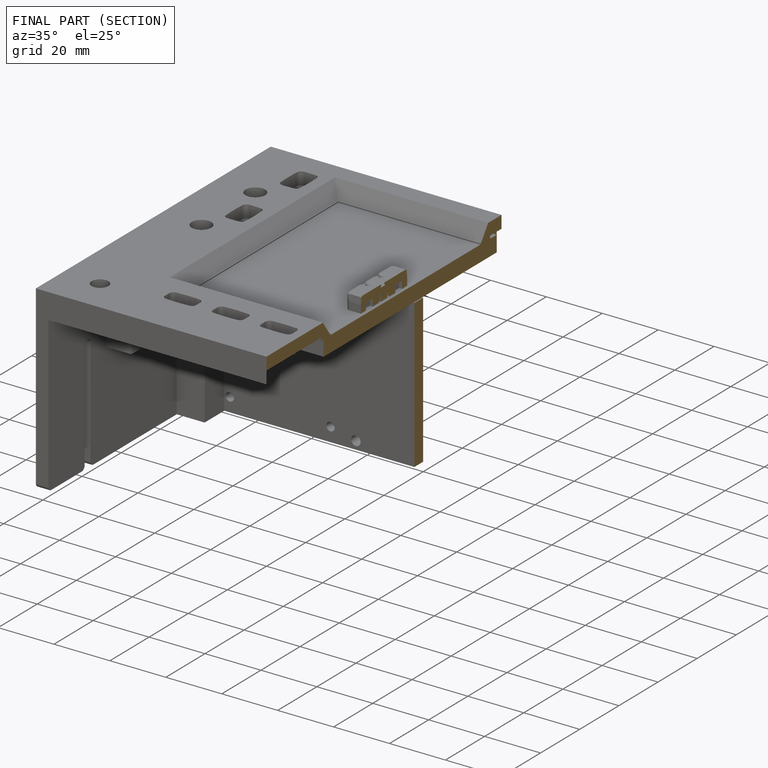
[diagram: finished part — half-section view (interior)]
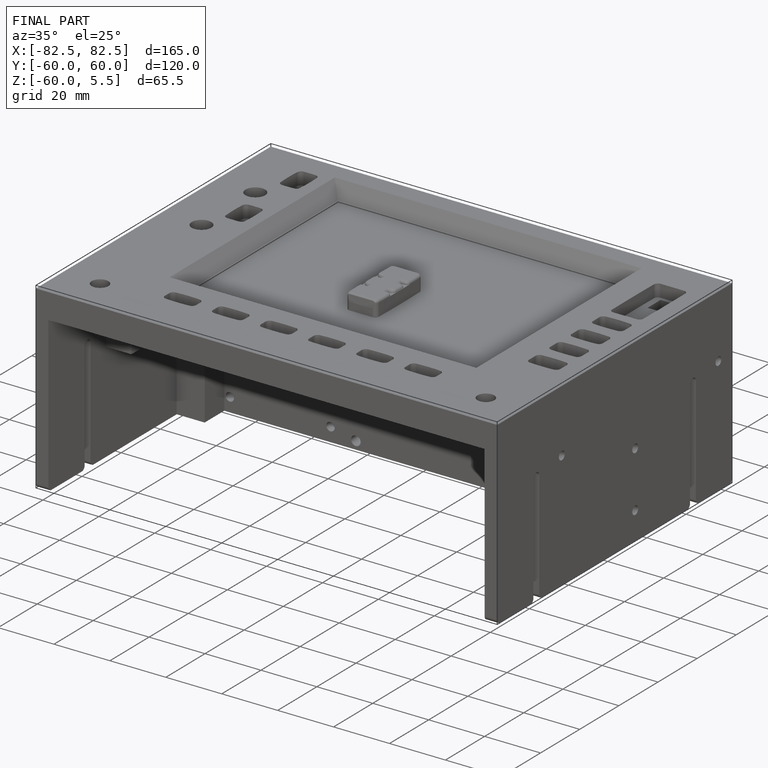
[diagram: finished part — iso view with bounding-box wireframe]
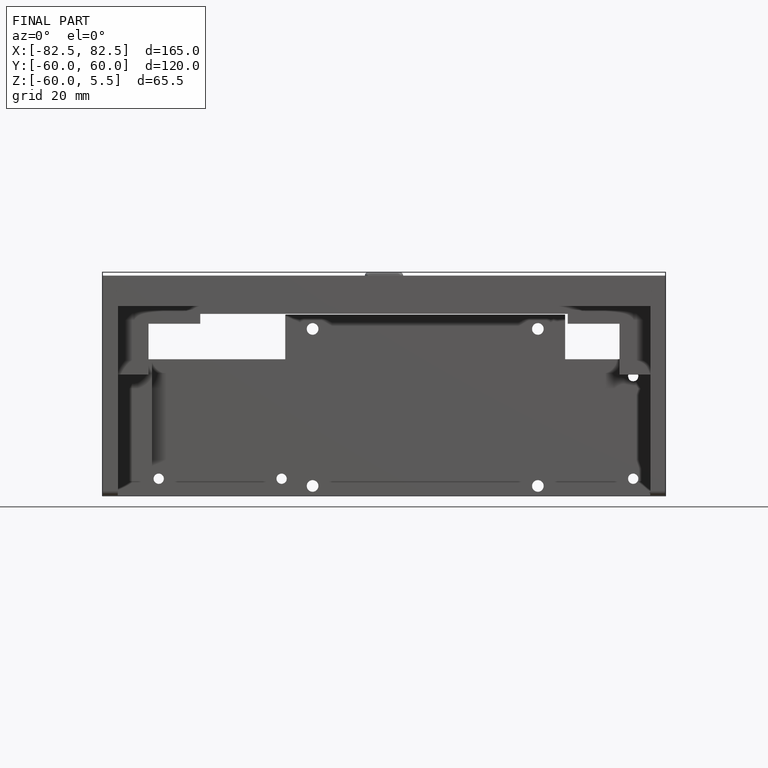
[diagram: finished part — front view with bounding-box wireframe]
